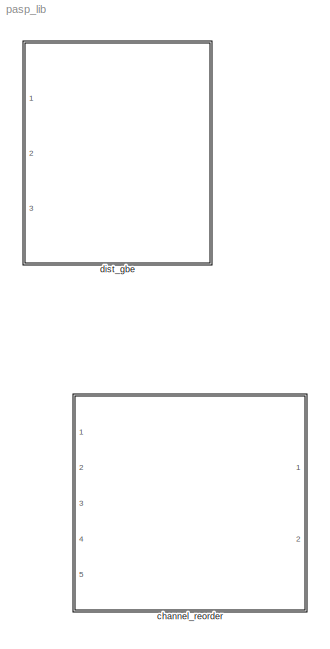
MODEL pasp_lib
KIND library
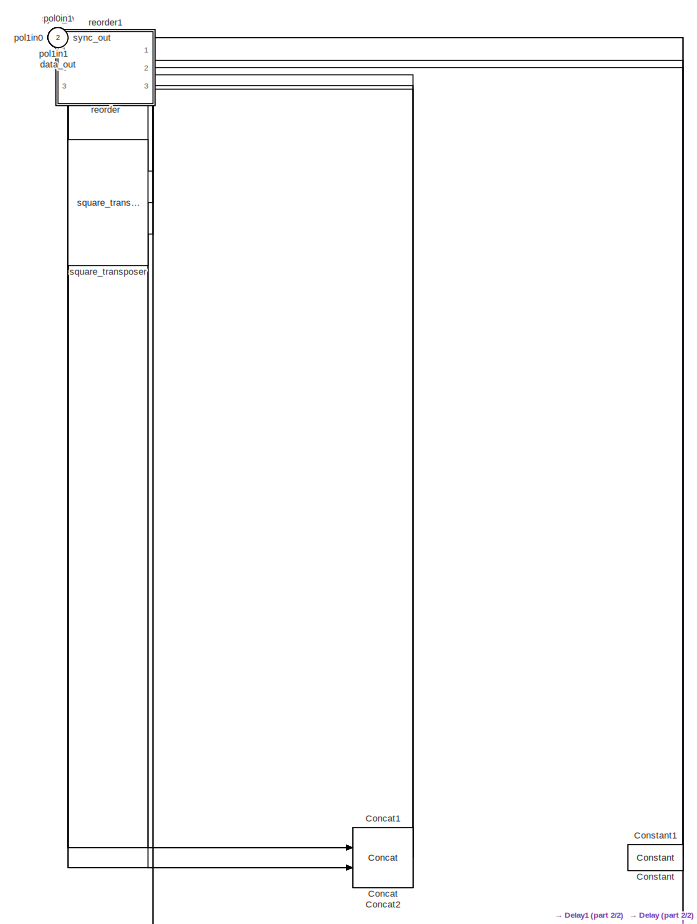
[diagram: channel_reorder - part 1/2, full width, top band]
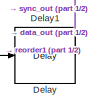
[diagram: channel_reorder - part 2/2, bottom right region]
BLOCK [SubSystem] channel_reorder
  FunctionWithSeparateData = off
  MaskCallbackString = |||
  MaskEnableString = on,on,on,on
  MaskHideContents = off
  MaskIconFrame = on
  MaskIconOpaque = on
  MaskIconRotate = none
  MaskIconUnits = autoscale
  MaskInitialization = cfg.source = str2func('channel_reorder_xblock_init');\ncfg.toplevel = gcb;\ncfg.depend = {'channel_reorder_xblock_init'};\nargs = {numcomputers,numchannels,numsamplesperpacket,qdr_reorder};\nxBlock(cfg, args);
  MaskPortRotate = default
  MaskPromptString = Num IPs (Must be power of 2)|Number of Channels|Samples per packet (Number of samples to put in a packet)|Reorder in QDR
  MaskStyleString = edit,edit,edit,checkbox
  MaskToolTipString = on,on,on,on
  MaskTunableValueString = on,on,on,off
  MaskValueString = 4|16|1024|off
  MaskVariables = numcomputers=@1;numchannels=@2;samplesperpacket=@3;qdr_reorder=&4;
  MaskVisibilityString = on,on,on,on
  MinAlgLoopOccurrences = off
  Opaque = off
  Ports = [5, 2]
  PropExecContextOutsideSubsystem = off
  RTWSystemCode = Auto
  RequestExecContextInheritance = off
  SID = 805
BLOCK [Reference] channel_reorder/Concat  REF=xbsIndex_r4/Concat
  Ports = [2, 1]
  SID = 811
  SourceBlock = xbsIndex_r4/Concat
  SourceType = Xilinx Bus Concatenator Block
  block_type = concat
  block_version = 11.4
  dbl_ovrd = off
  has_advanced_control = 0
  infoedit = Concatenates two or more inputs.  Output will be cast to an unsigned value with the binary point at zero.
  num_inputs = 2
  sg_icon_stat = 60,60,2,1,white,blue,0,97b7e8d2,right,
  sg_mask_display = fprintf('','COMMENT: begin icon graphics');\npatch([0 1 1 0 ],[0 0 1 1 ],[0.77 0.82 0.91]);\npatch([0.233333 0.0666667 0.3 0.0666667 0.233333 0.5 0.566667 0.633333 0.916667 0.7 0.483333 0.333333 0.583333 0.333333 0.483333 0.7 0.916667 0.633333 0.566667 0.5 0.233333 ],[0.1 0.266667 0.5 0.733333 0.9 0.9 0.833333 0.9 0.9 0.683333 0.9 0.75 0.5 0.25 0.1 0.316667 0.1 0.1 0.166667 0.1 0.1 ],[0.98 0.96 0....<+252ch>  <repeated x3 — deduplicated; at blocks: Concat, Concat1, Concat2>
  sggui_pos = -1,-1,-1,-1
BLOCK [Reference] channel_reorder/Concat1  REF=xbsIndex_r4/Concat
  Ports = [2, 1]
  SID = 812
  SourceBlock = xbsIndex_r4/Concat
  SourceType = Xilinx Bus Concatenator Block
  block_type = concat
  block_version = 11.4
  dbl_ovrd = off
  has_advanced_control = 0
  infoedit = Concatenates two or more inputs.  Output will be cast to an unsigned value with the binary point at zero.
  num_inputs = 2
  sg_icon_stat = 60,60,2,1,white,blue,0,97b7e8d2,right,
  sggui_pos = -1,-1,-1,-1
BLOCK [Reference] channel_reorder/Concat2  REF=xbsIndex_r4/Concat
  Ports = [2, 1]
  SID = 813
  SourceBlock = xbsIndex_r4/Concat
  SourceType = Xilinx Bus Concatenator Block
  block_type = concat
  block_version = 11.4
  dbl_ovrd = off
  has_advanced_control = 0
  infoedit = Concatenates two or more inputs.  Output will be cast to an unsigned value with the binary point at zero.
  num_inputs = 2
  sg_icon_stat = 60,60,2,1,white,blue,0,97b7e8d2,right,
  sggui_pos = -1,-1,-1,-1
BLOCK [Reference] channel_reorder/Constant  REF=xbsIndex_r4/Constant
  Ports = [0, 1]
  SID = 814
  SourceBlock = xbsIndex_r4/Constant
  SourceType = Xilinx Constant Block Block
  arith_type = Boolean
  bin_pt = 14
  block_type = constant
  block_version = 11.4
  carry = CIN
  const = 1
  dbl_ovrd = off
  dsp48_infoedit = The use of this block for DSP48 instructions is deprecated.  Please use the Opmode block.
  equ = P=C
  explicit_period = off
  has_advanced_control = 0
  inp1 = P
  inp2 = PCIN>>17
  n_bits = 16
  opr = +
  opselect = C
  period = 1
  sg_icon_stat = 55,26,0,1,white,blue,0,1c72b5be,right,
  sg_mask_display = fprintf('','COMMENT: begin icon graphics');\npatch([0 1 1 0 ],[0 0 1 1 ],[0.77 0.82 0.91]);\npatch([0.363636 0.290909 0.4 0.290909 0.363636 0.490909 0.527273 0.563636 0.690909 0.581818 0.472727 0.4 0.509091 0.4 0.472727 0.581818 0.690909 0.563636 0.527273 0.490909 0.363636 ],[0.115385 0.269231 0.5 0.730769 0.884615 0.884615 0.807692 0.884615 0.884615 0.653846 0.884615 0.730769 0.5 0.269231 0.11538...<+279ch>  <repeated x17 — deduplicated; at blocks: Constant, Constant1, Constant33, Constant36, Constant37, Constant38, Constant39, Constant40, Constant41, Constant42, Constant43, Constant44, Constant45, Constant46, Constant47, Constant48>
  sggui_pos = -1,-1,-1,-1
BLOCK [Reference] channel_reorder/Constant1  REF=xbsIndex_r4/Constant
  Ports = [0, 1]
  SID = 815
  SourceBlock = xbsIndex_r4/Constant
  SourceType = Xilinx Constant Block Block
  arith_type = Boolean
  bin_pt = 14
  block_type = constant
  block_version = 11.4
  carry = CIN
  const = 1
  dbl_ovrd = off
  dsp48_infoedit = The use of this block for DSP48 instructions is deprecated.  Please use the Opmode block.
  equ = P=C
  explicit_period = off
  has_advanced_control = 0
  inp1 = P
  inp2 = PCIN>>17
  n_bits = 16
  opr = +
  opselect = C
  period = 1
  sg_icon_stat = 55,26,0,1,white,blue,0,1c72b5be,right,
  sggui_pos = -1,-1,-1,-1
BLOCK [Reference] channel_reorder/Delay  REF=xbsIndex_r4/Delay
  Ports = [1, 1]
  SID = 816
  SourceBlock = xbsIndex_r4/Delay
  SourceType = Xilinx Delay Block
  block_type = delay
  block_version = 11.4
  dbl_ovrd = off
  en = off
  has_advanced_control = 0
  infoedit = Hardware notes: A delay line is a chain, each link of which is an SRL16 followed by a flip-flop.
  latency = 2
  reg_retiming = on
  sg_icon_stat = 60,56,1,1,white,blue,0,85ce9542,right,
  sg_mask_display = fprintf('','COMMENT: begin icon graphics');\npatch([0 1 1 0 ],[0 0 1 1 ],[0.77 0.82 0.91]);\npatch([0.25 0.1 0.316667 0.1 0.25 0.5 0.566667 0.633333 0.9 0.683333 0.483333 0.333333 0.533333 0.333333 0.483333 0.683333 0.9 0.633333 0.566667 0.5 0.25 ],[0.107143 0.267857 0.5 0.732143 0.892857 0.892857 0.821429 0.892857 0.892857 0.660714 0.875 0.714286 0.5 0.285714 0.125 0.339286 0.107143 0.107143 0.17...<+249ch>  <repeated x16 — deduplicated; at blocks: Delay, Delay1, Delay10, Delay11, Delay12, Delay13, Delay2, Delay3, Delay4, Delay5, Delay6, Delay7, Delay8, Delay9>
  sggui_pos = -1,-1,-1,-1
  xl_area = [0,0,0,0,0,0,0]
  xl_use_area = off
BLOCK [Reference] channel_reorder/Delay1  REF=xbsIndex_r4/Delay
  Ports = [1, 1]
  SID = 817
  SourceBlock = xbsIndex_r4/Delay
  SourceType = Xilinx Delay Block
  block_type = delay
  block_version = 11.4
  dbl_ovrd = off
  en = off
  has_advanced_control = 0
  infoedit = Hardware notes: A delay line is a chain, each link of which is an SRL16 followed by a flip-flop.
  latency = 2
  reg_retiming = on
  sg_icon_stat = 60,56,1,1,white,blue,0,85ce9542,right,
  sggui_pos = -1,-1,-1,-1
  xl_area = [0,0,0,0,0,0,0]
  xl_use_area = off
BLOCK [Outport] channel_reorder/data_out
  IconDisplay = Port number
  Port = 2
  SID = 822
BLOCK [Inport] channel_reorder/pol0in0
  IconDisplay = Port number
  Port = 2
  SID = 807
BLOCK [Inport] channel_reorder/pol0in1
  IconDisplay = Port number
  Port = 3
  SID = 808
BLOCK [Inport] channel_reorder/pol1in0
  IconDisplay = Port number
  Port = 4
  SID = 809
BLOCK [Inport] channel_reorder/pol1in1
  IconDisplay = Port number
  Port = 5
  SID = 810
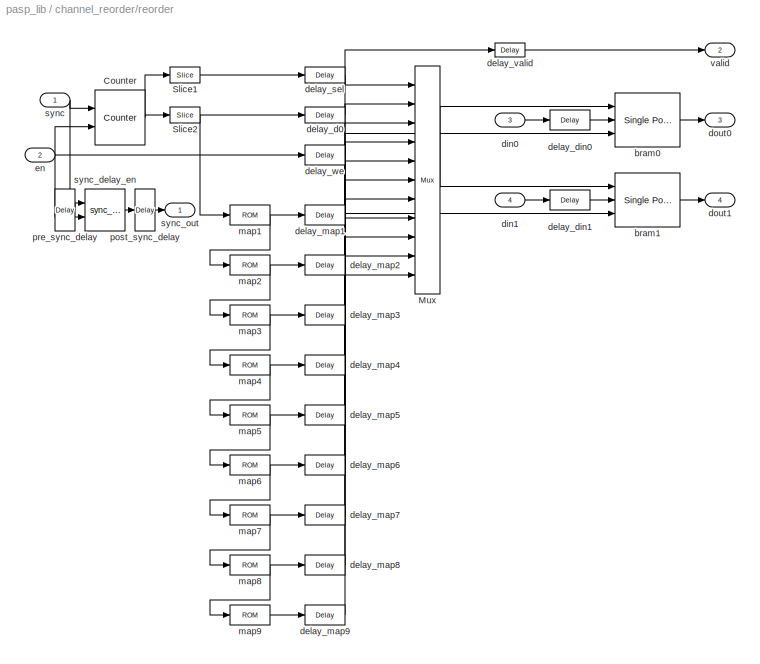
BLOCK [SubSystem] channel_reorder/reorder
  AncestorBlock = casper_library_reorder/reorder
  AttributesFormatString = order=10
  FunctionWithSeparateData = off
  MaskCallbackString = |||||
  MaskEnableString = on,on,on,on,on,on
  MaskHelp = eval('xlWeb(''http://casper.berkeley.edu/wiki/Reorder'')')
  MaskHideContents = off
  MaskIconFrame = on
  MaskIconOpaque = on
  MaskIconRotate = none
  MaskIconUnits = autoscale
  MaskInitialization = reorder_init(gcb, ...\n    'map', map, ...\n    'n_inputs', n_inputs, ...\n    'bram_latency', bram_latency, ...\n    'map_latency', map_latency, ...\n    'double_buffer', double_buffer, ...\n    'bram_map', bram_map);
  MaskPortRotate = default
  MaskPromptString = Output Order:|Number of inputs|BRAM Latency|Map Latency|Double Buffer|Use BlockRAM for Map
  MaskSelfModifiable = on
  MaskStyleString = edit,edit,edit,edit,edit,checkbox
  MaskToolTipString = on,on,on,on,on,on
  MaskTunableValueString = off,off,off,off,off,off
  MaskType = reorder
  MaskValueString = getfield( getfield( get_param( gcb,'UserData' ), 'parameters'),'map')|2|2|3|0|off
  MaskVariables = map=@1;n_inputs=@2;bram_latency=@3;map_latency=@4;double_buffer=@5;bram_map=&6;
  MaskVisibilityString = on,on,on,on,on,on
  MinAlgLoopOccurrences = off
  Opaque = off
  Ports = [4, 4]
  PropExecContextOutsideSubsystem = off
  RTWSystemCode = Auto
  RequestExecContextInheritance = off
  SID = 818
  UserData = DataTag0
  UserDataPersistent = on
BLOCK [Reference] channel_reorder/reorder/Counter  REF=xbsIndex_r4/Counter
  Ports = [2, 1]
  SID = 18
  SourceBlock = xbsIndex_r4/Counter
  SourceType = Xilinx Counter Block
  arith_type = Unsigned
  bin_pt = 0
  block_type = counter
  block_version = 11.4
  cnt_by_val = 1
  cnt_to = 10239
  cnt_type = Count Limited
  dbl_ovrd = off
  en = on
  explicit_period = on
  has_advanced_control = 0
  implementation = Fabric
  infoedit = Hardware notes: Free running counters are the least expensive in hardware.  A count limited counter is implemented by combining a counter with a comparator.
  load_pin = off
  n_bits = 14
  operation = Up
  period = 1
  rst = on
  sg_icon_stat = 50,55,2,1,white,blue,0,d605779c,right,
  sg_mask_display = fprintf('','COMMENT: begin icon graphics');\npatch([0 1 1 0 ],[0 0 1 1 ],[0.77 0.82 0.91]);\npatch([0.22 0.06 0.3 0.06 0.22 0.48 0.56 0.64 0.92 0.7 0.48 0.32 0.56 0.32 0.48 0.7 0.92 0.64 0.56 0.48 0.22 ],[0.145455 0.290909 0.509091 0.727273 0.872727 0.872727 0.8 0.872727 0.872727 0.672727 0.872727 0.727273 0.509091 0.290909 0.145455 0.345455 0.145455 0.145455 0.218182 0.145455 0.145455 ],[0.98 0.9...<+303ch>
  sggui_pos = -1,-1,-1,-1
  start_count = 0
  use_behavioral_HDL = off
  xl_area = [0,0,0,0,0,0,0]
  xl_use_area = off
BLOCK [Reference] channel_reorder/reorder/Mux  REF=xbsIndex_r4/Mux
  Ports = [11, 1]
  SID = 21
  SourceBlock = xbsIndex_r4/Mux
  SourceType = Xilinx Bus Multiplexer Block
  arith_type = Unsigned
  bin_pt = 14
  block_type = mux
  block_version = 11.4
  dbl_ovrd = off
  en = off
  has_advanced_control = 0
  inputs = 10
  latency = 1
  n_bits = 16
  overflow = Wrap
  precision = Full
  quantization = Truncate
  sg_icon_stat = 25,228,11,1,white,blue,3,c1aff825,right,
  sg_mask_display = fprintf('','COMMENT: begin icon graphics');\npatch([0 1 1 0 ],[0 0.142857 0.857143 1 ],[0.77 0.82 0.91]);\npatch([0.24 0.08 0.32 0.08 0.24 0.52 0.6 0.68 0.96 0.72 0.52 0.36 0.56 0.36 0.52 0.72 0.96 0.68 0.6 0.52 0.24 ],[0.45614 0.473684 0.5 0.526316 0.54386 0.54386 0.535088 0.54386 0.54386 0.517544 0.539474 0.52193 0.5 0.47807 0.460526 0.482456 0.45614 0.45614 0.464912 0.45614 0.45614 ],[0.98 0.96...<+723ch>
  sggui_pos = -1,-1,-1,-1
  xl_area = [0,0,0,0,0,0,0]
  xl_use_area = off
BLOCK [Reference] channel_reorder/reorder/Slice1  REF=xbsIndex_r4/Slice
  Ports = [1, 1]
  SID = 19
  SourceBlock = xbsIndex_r4/Slice
  SourceType = Xilinx Bit Slice Extractor Block
  base0 = LSB of Input
  base1 = MSB of Input
  bit0 = 0
  bit1 = 0
  block_type = slice
  block_version = 11.4
  boolean_output = off
  dbl_ovrd = off
  has_advanced_control = 0
  infoedit = Extracts a given range of bits from each input sample and presents it at the output.  The output type is ordinarily unsigned with binary point at zero, but can be Boolean when the slice is one bit wide.<br><br>Hardware notes: In hardware this block costs nothing.  <repeated x4 — deduplicated; at blocks: Slice1, Slice2, Slice>
  mode = Upper Bit Location + Width
  nbits = 4
  sg_icon_stat = 30,16,1,1,white,blue,0,1fd851a7,right,
  sg_mask_display = fprintf('','COMMENT: begin icon graphics');\npatch([0 1 1 0 ],[0 0 1 1 ],[0.77 0.82 0.91]);\npatch([0.366667 0.266667 0.4 0.266667 0.366667 0.5 0.533333 0.566667 0.733333 0.6 0.5 0.433333 0.566667 0.433333 0.5 0.6 0.733333 0.566667 0.533333 0.5 0.366667 ],[0.125 0.3125 0.5625 0.8125 1 1 0.9375 1 1 0.75 0.9375 0.8125 0.5625 0.3125 0.1875 0.375 0.125 0.125 0.1875 0.125 0.125 ],[0.98 0.96 0.92]);\npl...<+203ch>
  sggui_pos = -1,-1,-1,-1
BLOCK [Reference] channel_reorder/reorder/Slice2  REF=xbsIndex_r4/Slice
  Ports = [1, 1]
  SID = 20
  SourceBlock = xbsIndex_r4/Slice
  SourceType = Xilinx Bit Slice Extractor Block
  base0 = LSB of Input
  base1 = MSB of Input
  bit0 = 0
  bit1 = 0
  block_type = slice
  block_version = 11.4
  boolean_output = off
  dbl_ovrd = off
  has_advanced_control = 0
  mode = Lower Bit Location + Width
  nbits = 10
  sg_icon_stat = 30,16,1,1,white,blue,0,1fd851a7,right,
  sg_mask_display = fprintf('','COMMENT: begin icon graphics');\npatch([0 1 1 0 ],[0 0 1 1 ],[0.77 0.82 0.91]);\npatch([0.366667 0.266667 0.4 0.266667 0.366667 0.5 0.533333 0.566667 0.733333 0.6 0.5 0.433333 0.566667 0.433333 0.5 0.6 0.733333 0.566667 0.533333 0.5 0.366667 ],[0.125 0.3125 0.5625 0.8125 1 1 0.9375 1 1 0.75 0.9375 0.8125 0.5625 0.3125 0.1875 0.375 0.125 0.125 0.1875 0.125 0.125 ],[0.98 0.96 0.92]);\npl...<+203ch>
  sggui_pos = -1,-1,-1,-1
BLOCK [Reference] channel_reorder/reorder/bram0  REF=xbsIndex_r4/Single Port RAM
  Ports = [3, 1]
  SID = 24
  SourceBlock = xbsIndex_r4/Single Port RAM
  SourceType = Xilinx Single Port Random Access Memory Block
  block_type = spram
  block_version = 11.4
  dbl_ovrd = off
  depth = 1024
  distributed_mem = Block RAM
  en = off
  has_advanced_control = 0
  initVector = sin(pi*(0:15)/16)
  init_reg = 0
  latency = 2
  optimize = Area
  rst = off
  sg_icon_stat = 65,54,3,1,white,blue,0,f2d5aa4c,right,
  sg_mask_display = fprintf('','COMMENT: begin icon graphics');\npatch([0 1 1 0 ],[0 0 1 1 ],[0.77 0.82 0.91]);\npatch([0.276923 0.138462 0.338462 0.138462 0.276923 0.492308 0.553846 0.615385 0.846154 0.661538 0.476923 0.353846 0.569231 0.353846 0.476923 0.661538 0.846154 0.615385 0.553846 0.492308 0.276923 ],[0.111111 0.277778 0.518519 0.759259 0.925926 0.925926 0.851852 0.925926 0.925926 0.703704 0.925926 0.777778 ...<+443ch>
  sggui_pos = -1,-1,-1,-1
  use_rpm = on
  write_mode = Read Before Write
  xl_area = [0,0,0,0,0,0,0]
  xl_use_area = off
BLOCK [Reference] channel_reorder/reorder/bram1  REF=xbsIndex_r4/Single Port RAM
  Ports = [3, 1]
  SID = 25
  SourceBlock = xbsIndex_r4/Single Port RAM
  SourceType = Xilinx Single Port Random Access Memory Block
  block_type = spram
  block_version = 11.4
  dbl_ovrd = off
  depth = 1024
  distributed_mem = Block RAM
  en = off
  has_advanced_control = 0
  initVector = sin(pi*(0:15)/16)
  init_reg = 0
  latency = 2
  optimize = Area
  rst = off
  sg_icon_stat = 65,54,3,1,white,blue,0,f2d5aa4c,right,
  sg_mask_display = fprintf('','COMMENT: begin icon graphics');\npatch([0 1 1 0 ],[0 0 1 1 ],[0.77 0.82 0.91]);\npatch([0.276923 0.138462 0.338462 0.138462 0.276923 0.492308 0.553846 0.615385 0.846154 0.661538 0.476923 0.353846 0.569231 0.353846 0.476923 0.661538 0.846154 0.615385 0.553846 0.492308 0.276923 ],[0.111111 0.277778 0.518519 0.759259 0.925926 0.925926 0.851852 0.925926 0.925926 0.703704 0.925926 0.777778 ...<+443ch>
  sggui_pos = -1,-1,-1,-1
  use_rpm = on
  write_mode = Read Before Write
  xl_area = [0,0,0,0,0,0,0]
  xl_use_area = off
BLOCK [Reference] channel_reorder/reorder/delay_d0  REF=xbsIndex_r4/Delay
  Ports = [1, 1]
  SID = 23
  SourceBlock = xbsIndex_r4/Delay
  SourceType = Xilinx Delay Block
  block_type = delay
  block_version = 11.4
  dbl_ovrd = off
  en = off
  has_advanced_control = 0
  infoedit = Hardware notes: A delay line is a chain, each link of which is an SRL16 followed by a flip-flop.
  latency = 27
  reg_retiming = off
  sg_icon_stat = 40,16,1,1,white,blue,0,0309fabc,right,
  sg_mask_display = fprintf('','COMMENT: begin icon graphics');\npatch([0 1 1 0 ],[0 0 1 1 ],[0.77 0.82 0.91]);\npatch([0.4 0.325 0.425 0.325 0.4 0.5 0.525 0.55 0.675 0.575 0.5 0.45 0.55 0.45 0.5 0.575 0.675 0.55 0.525 0.5 0.4 ],[0.125 0.3125 0.5625 0.8125 1 1 0.9375 1 1 0.75 0.9375 0.8125 0.5625 0.3125 0.1875 0.375 0.125 0.125 0.1875 0.125 0.125 ],[0.98 0.96 0.92]);\nplot([0 1 1 0 0 ],[0 0 1 1 0 ]);\nfprintf('','COM...<+156ch>
  sggui_pos = -1,-1,-1,-1
  xl_area = [0,0,0,0,0,0,0]
  xl_use_area = off
BLOCK [Reference] channel_reorder/reorder/delay_din0  REF=xbsIndex_r4/Delay
  Ports = [1, 1]
  SID = 5
  SourceBlock = xbsIndex_r4/Delay
  SourceType = Xilinx Delay Block
  block_type = delay
  block_version = 9.1.01
  dbl_ovrd = off
  en = off
  has_advanced_control = 0
  infoedit = Hardware notes: A delay line is a chain, each link of which is an SRL16 followed by a flip-flop.
  latency = 28
  reg_retiming = off
  sg_icon_stat = 40,20,1,1,white,blue,0,34950886,right,
  sg_mask_display = fprintf('','COMMENT: begin icon graphics');\npatch([0 1 1 0 ],[0 0 1 1 ],[0.77 0.82 0.91]);\npatch([0.35 0.275 0.4 0.275 0.35 0.475 0.5 0.525 0.675 0.575 0.475 0.4 0.525 0.4 0.475 0.575 0.675 0.525 0.5 0.475 0.35 ],[0.1 0.25 0.5 0.75 0.9 0.9 0.85 0.9 0.9 0.7 0.9 0.75 0.5 0.25 0.1 0.3 0.1 0.1 0.15 0.1 0.1 ],[0.98 0.96 0.92]);\nplot([0 1 1 0 0 ],[0 0 1 1 0 ]);\nfprintf('','COMMENT: end icon graphics...<+133ch>  <repeated x8 — deduplicated; at blocks: delay_din0, delay_din1, delay_map1, delay_map2, delay_map3, delay_map4, delay_map5, delay_we>
  sggui_pos = -1,-1,-1,-1
  xl_area = [0, 0, 0, 0, 0, 0, 0]
  xl_use_area = off
BLOCK [Reference] channel_reorder/reorder/delay_din1  REF=xbsIndex_r4/Delay
  Ports = [1, 1]
  SID = 6
  SourceBlock = xbsIndex_r4/Delay
  SourceType = Xilinx Delay Block
  block_type = delay
  block_version = 9.1.01
  dbl_ovrd = off
  en = off
  has_advanced_control = 0
  infoedit = Hardware notes: A delay line is a chain, each link of which is an SRL16 followed by a flip-flop.
  latency = 28
  reg_retiming = off
  sg_icon_stat = 40,20,1,1,white,blue,0,34950886,right,
  sggui_pos = -1,-1,-1,-1
  xl_area = [0, 0, 0, 0, 0, 0, 0]
  xl_use_area = off
BLOCK [Reference] channel_reorder/reorder/delay_map1  REF=xbsIndex_r4/Delay
  Ports = [1, 1]
  SID = 27
  SourceBlock = xbsIndex_r4/Delay
  SourceType = Xilinx Delay Block
  block_type = delay
  block_version = 11.4
  dbl_ovrd = off
  en = off
  has_advanced_control = 0
  infoedit = Hardware notes: A delay line is a chain, each link of which is an SRL16 followed by a flip-flop.
  latency = 8*map_latency
  reg_retiming = off
  sg_icon_stat = 40,20,1,1,white,blue,0,18aac261,right,
  sggui_pos = -1,-1,-1,-1
  xl_area = [0,0,0,0,0,0,0]
  xl_use_area = off
BLOCK [Reference] channel_reorder/reorder/delay_map2  REF=xbsIndex_r4/Delay
  Ports = [1, 1]
  SID = 29
  SourceBlock = xbsIndex_r4/Delay
  SourceType = Xilinx Delay Block
  block_type = delay
  block_version = 11.4
  dbl_ovrd = off
  en = off
  has_advanced_control = 0
  infoedit = Hardware notes: A delay line is a chain, each link of which is an SRL16 followed by a flip-flop.
  latency = 7*map_latency
  reg_retiming = off
  sg_icon_stat = 40,20,1,1,white,blue,0,721bfb8f,right,
  sggui_pos = -1,-1,-1,-1
  xl_area = [0,0,0,0,0,0,0]
  xl_use_area = off
BLOCK [Reference] channel_reorder/reorder/delay_map3  REF=xbsIndex_r4/Delay
  Ports = [1, 1]
  SID = 31
  SourceBlock = xbsIndex_r4/Delay
  SourceType = Xilinx Delay Block
  block_type = delay
  block_version = 11.4
  dbl_ovrd = off
  en = off
  has_advanced_control = 0
  infoedit = Hardware notes: A delay line is a chain, each link of which is an SRL16 followed by a flip-flop.
  latency = 6*map_latency
  reg_retiming = off
  sg_icon_stat = 40,20,1,1,white,blue,0,1fb32ecb,right,
  sggui_pos = -1,-1,-1,-1
  xl_area = [0,0,0,0,0,0,0]
  xl_use_area = off
BLOCK [Reference] channel_reorder/reorder/delay_map4  REF=xbsIndex_r4/Delay
  Ports = [1, 1]
  SID = 33
  SourceBlock = xbsIndex_r4/Delay
  SourceType = Xilinx Delay Block
  block_type = delay
  block_version = 11.4
  dbl_ovrd = off
  en = off
  has_advanced_control = 0
  infoedit = Hardware notes: A delay line is a chain, each link of which is an SRL16 followed by a flip-flop.
  latency = 5*map_latency
  reg_retiming = off
  sg_icon_stat = 40,20,1,1,white,blue,0,c21c4c41,right,
  sggui_pos = -1,-1,-1,-1
  xl_area = [0,0,0,0,0,0,0]
  xl_use_area = off
BLOCK [Reference] channel_reorder/reorder/delay_map5  REF=xbsIndex_r4/Delay
  Ports = [1, 1]
  SID = 35
  SourceBlock = xbsIndex_r4/Delay
  SourceType = Xilinx Delay Block
  block_type = delay
  block_version = 11.4
  dbl_ovrd = off
  en = off
  has_advanced_control = 0
  infoedit = Hardware notes: A delay line is a chain, each link of which is an SRL16 followed by a flip-flop.
  latency = 4*map_latency
  reg_retiming = off
  sg_icon_stat = 40,20,1,1,white,blue,0,aa753640,right,
  sggui_pos = -1,-1,-1,-1
  xl_area = [0,0,0,0,0,0,0]
  xl_use_area = off
BLOCK [Reference] channel_reorder/reorder/delay_map6  REF=xbsIndex_r4/Delay
  Ports = [1, 1]
  SID = 37
  SourceBlock = xbsIndex_r4/Delay
  SourceType = Xilinx Delay Block
  block_type = delay
  block_version = 11.4
  dbl_ovrd = off
  en = off
  has_advanced_control = 0
  infoedit = Hardware notes: A delay line is a chain, each link of which is an SRL16 followed by a flip-flop.
  latency = 3*map_latency
  reg_retiming = off
  sg_icon_stat = 40,20,1,1,white,blue,0,c2fef566,right,
  sg_mask_display = fprintf('','COMMENT: begin icon graphics');\npatch([0 1 1 0 ],[0 0 1 1 ],[0.77 0.82 0.91]);\npatch([0.35 0.275 0.4 0.275 0.35 0.475 0.5 0.525 0.675 0.575 0.475 0.4 0.525 0.4 0.475 0.575 0.675 0.525 0.5 0.475 0.35 ],[0.1 0.25 0.5 0.75 0.9 0.9 0.85 0.9 0.9 0.7 0.9 0.75 0.5 0.25 0.1 0.3 0.1 0.1 0.15 0.1 0.1 ],[0.98 0.96 0.92]);\nplot([0 1 1 0 0 ],[0 0 1 1 0 ]);\nfprintf('','COMMENT: end icon graphics...<+132ch>  <repeated x6 — deduplicated; at blocks: delay_map6, delay_map7, delay_map8, delay_map9, delay_din0, delay_we>
  sggui_pos = -1,-1,-1,-1
  xl_area = [0,0,0,0,0,0,0]
  xl_use_area = off
BLOCK [Reference] channel_reorder/reorder/delay_map7  REF=xbsIndex_r4/Delay
  Ports = [1, 1]
  SID = 39
  SourceBlock = xbsIndex_r4/Delay
  SourceType = Xilinx Delay Block
  block_type = delay
  block_version = 11.4
  dbl_ovrd = off
  en = off
  has_advanced_control = 0
  infoedit = Hardware notes: A delay line is a chain, each link of which is an SRL16 followed by a flip-flop.
  latency = 2*map_latency
  reg_retiming = off
  sg_icon_stat = 40,20,1,1,white,blue,0,aa5bc30d,right,
  sggui_pos = -1,-1,-1,-1
  xl_area = [0,0,0,0,0,0,0]
  xl_use_area = off
BLOCK [Reference] channel_reorder/reorder/delay_map8  REF=xbsIndex_r4/Delay
  Ports = [1, 1]
  SID = 41
  SourceBlock = xbsIndex_r4/Delay
  SourceType = Xilinx Delay Block
  block_type = delay
  block_version = 11.4
  dbl_ovrd = off
  en = off
  has_advanced_control = 0
  infoedit = Hardware notes: A delay line is a chain, each link of which is an SRL16 followed by a flip-flop.
  latency = 1*map_latency
  reg_retiming = off
  sg_icon_stat = 40,20,1,1,white,blue,0,83e6bb61,right,
  sggui_pos = -1,-1,-1,-1
  xl_area = [0,0,0,0,0,0,0]
  xl_use_area = off
BLOCK [Reference] channel_reorder/reorder/delay_map9  REF=xbsIndex_r4/Delay
  Ports = [1, 1]
  SID = 43
  SourceBlock = xbsIndex_r4/Delay
  SourceType = Xilinx Delay Block
  block_type = delay
  block_version = 11.4
  dbl_ovrd = off
  en = off
  has_advanced_control = 0
  infoedit = Hardware notes: A delay line is a chain, each link of which is an SRL16 followed by a flip-flop.
  latency = 0*map_latency
  reg_retiming = off
  sg_icon_stat = 40,20,1,1,white,blue,0,24450e6f,right,
  sggui_pos = -1,-1,-1,-1
  xl_area = [0,0,0,0,0,0,0]
  xl_use_area = off
BLOCK [Reference] channel_reorder/reorder/delay_sel  REF=xbsIndex_r4/Delay
  Ports = [1, 1]
  SID = 22
  SourceBlock = xbsIndex_r4/Delay
  SourceType = Xilinx Delay Block
  block_type = delay
  block_version = 11.4
  dbl_ovrd = off
  en = off
  has_advanced_control = 0
  infoedit = Hardware notes: A delay line is a chain, each link of which is an SRL16 followed by a flip-flop.
  latency = 27
  reg_retiming = off
  sg_icon_stat = 40,16,1,1,white,blue,0,0309fabc,right,
  sg_mask_display = fprintf('','COMMENT: begin icon graphics');\npatch([0 1 1 0 ],[0 0 1 1 ],[0.77 0.82 0.91]);\npatch([0.4 0.325 0.425 0.325 0.4 0.5 0.525 0.55 0.675 0.575 0.5 0.45 0.55 0.45 0.5 0.575 0.675 0.55 0.525 0.5 0.4 ],[0.125 0.3125 0.5625 0.8125 1 1 0.9375 1 1 0.75 0.9375 0.8125 0.5625 0.3125 0.1875 0.375 0.125 0.125 0.1875 0.125 0.125 ],[0.98 0.96 0.92]);\nplot([0 1 1 0 0 ],[0 0 1 1 0 ]);\nfprintf('','COM...<+156ch>
  sggui_pos = -1,-1,-1,-1
  xl_area = [0,0,0,0,0,0,0]
  xl_use_area = off
BLOCK [Reference] channel_reorder/reorder/delay_valid  REF=xbsIndex_r4/Delay
  Ports = [1, 1]
  SID = 9
  SourceBlock = xbsIndex_r4/Delay
  SourceType = Xilinx Delay Block
  block_type = delay
  block_version = 9.1.01
  dbl_ovrd = off
  en = off
  has_advanced_control = 0
  infoedit = Hardware notes: A delay line is a chain, each link of which is an SRL16 followed by a flip-flop.
  latency = 3
  reg_retiming = off
  sg_icon_stat = 30,14,1,1,white,blue,0,83e6bb61,right,
  sg_mask_display = fprintf('','COMMENT: begin icon graphics');\npatch([0 1 1 0 ],[0 0 1 1 ],[0.77 0.82 0.91]);\npatch([0.366667 0.3 0.4 0.3 0.366667 0.5 0.533333 0.566667 0.7 0.6 0.5 0.433333 0.533333 0.433333 0.5 0.6 0.7 0.566667 0.533333 0.5 0.366667 ],[0.142857 0.285714 0.5 0.714286 0.857143 0.857143 0.785714 0.857143 0.857143 0.642857 0.857143 0.714286 0.5 0.285714 0.142857 0.357143 0.142857 0.142857 0.214286 0....<+242ch>
  sggui_pos = -1,-1,-1,-1
  xl_area = [0, 0, 0, 0, 0, 0, 0]
  xl_use_area = off
BLOCK [Reference] channel_reorder/reorder/delay_we  REF=xbsIndex_r4/Delay
  Ports = [1, 1]
  SID = 10
  SourceBlock = xbsIndex_r4/Delay
  SourceType = Xilinx Delay Block
  block_type = delay
  block_version = 9.1.01
  dbl_ovrd = off
  en = off
  has_advanced_control = 0
  infoedit = Hardware notes: A delay line is a chain, each link of which is an SRL16 followed by a flip-flop.
  latency = 27
  reg_retiming = off
  sg_icon_stat = 40,20,1,1,white,blue,0,0309fabc,right,
  sggui_pos = -1,-1,-1,-1
  xl_area = [0, 0, 0, 0, 0, 0, 0]
  xl_use_area = off
BLOCK [Inport] channel_reorder/reorder/din0
  IconDisplay = Port number
  OutDataType = sfix(16)
  OutScaling = 2^0
  Port = 3
  SID = 3
BLOCK [Inport] channel_reorder/reorder/din1
  IconDisplay = Port number
  OutDataType = sfix(16)
  OutScaling = 2^0
  Port = 4
  SID = 4
BLOCK [Outport] channel_reorder/reorder/dout0
  IconDisplay = Port number
  OutDataType = sfix(16)
  OutScaling = 2^0
  Port = 3
  SID = 16
BLOCK [Outport] channel_reorder/reorder/dout1
  IconDisplay = Port number
  OutDataType = sfix(16)
  OutScaling = 2^0
  Port = 4
  SID = 17
BLOCK [Inport] channel_reorder/reorder/en
  IconDisplay = Port number
  OutDataType = sfix(16)
  OutScaling = 2^0
  Port = 2
  SID = 2
BLOCK [Reference] channel_reorder/reorder/map1  REF=xbsIndex_r4/ROM
  Ports = [1, 1]
  SID = 26
  SourceBlock = xbsIndex_r4/ROM
  SourceType = Xilinx Single Port Read-Only Memory Block
  arith_type = Unsigned
  bin_pt = 0
  block_type = sprom
  block_version = 11.4
  dbl_ovrd = off
  depth = 1024
  distributed_mem = Distributed memory
  en = off
  has_advanced_control = 0
  initVector = map
  init_reg = 0
  latency = 3
  n_bits = 10
  optimize = Area
  rst = off
  sg_icon_stat = 40,20,1,1,white,blue,0,af4d5ca7,right,
  sg_mask_display = fprintf('','COMMENT: begin icon graphics');\npatch([0 1 1 0 ],[0 0 1 1 ],[0.77 0.82 0.91]);\npatch([0.35 0.275 0.4 0.275 0.35 0.475 0.5 0.525 0.675 0.575 0.475 0.4 0.525 0.4 0.475 0.575 0.675 0.525 0.5 0.475 0.35 ],[0.1 0.25 0.5 0.75 0.9 0.9 0.85 0.9 0.9 0.7 0.9 0.75 0.5 0.25 0.1 0.3 0.1 0.1 0.15 0.1 0.1 ],[0.98 0.96 0.92]);\nplot([0 1 1 0 0 ],[0 0 1 1 0 ]);\nfprintf('','COMMENT: end icon graphics...<+178ch>  <repeated x9 — deduplicated; at blocks: map1, map2, map3, map4, map5, map6, map7, map8, map9>
  sggui_pos = -1,-1,-1,-1
  use_rpm = on
  xl_area = [0,0,0,0,0,0,0]
  xl_use_area = off
BLOCK [Reference] channel_reorder/reorder/map2  REF=xbsIndex_r4/ROM
  Ports = [1, 1]
  SID = 28
  SourceBlock = xbsIndex_r4/ROM
  SourceType = Xilinx Single Port Read-Only Memory Block
  arith_type = Unsigned
  bin_pt = 0
  block_type = sprom
  block_version = 11.4
  dbl_ovrd = off
  depth = 1024
  distributed_mem = Distributed memory
  en = off
  has_advanced_control = 0
  initVector = map
  init_reg = 0
  latency = 3
  n_bits = 10
  optimize = Area
  rst = off
  sg_icon_stat = 40,20,1,1,white,blue,0,af4d5ca7,right,
  sggui_pos = -1,-1,-1,-1
  use_rpm = on
  xl_area = [0,0,0,0,0,0,0]
  xl_use_area = off
BLOCK [Reference] channel_reorder/reorder/map3  REF=xbsIndex_r4/ROM
  Ports = [1, 1]
  SID = 30
  SourceBlock = xbsIndex_r4/ROM
  SourceType = Xilinx Single Port Read-Only Memory Block
  arith_type = Unsigned
  bin_pt = 0
  block_type = sprom
  block_version = 11.4
  dbl_ovrd = off
  depth = 1024
  distributed_mem = Distributed memory
  en = off
  has_advanced_control = 0
  initVector = map
  init_reg = 0
  latency = 3
  n_bits = 10
  optimize = Area
  rst = off
  sg_icon_stat = 40,20,1,1,white,blue,0,af4d5ca7,right,
  sggui_pos = -1,-1,-1,-1
  use_rpm = on
  xl_area = [0,0,0,0,0,0,0]
  xl_use_area = off
BLOCK [Reference] channel_reorder/reorder/map4  REF=xbsIndex_r4/ROM
  Ports = [1, 1]
  SID = 32
  SourceBlock = xbsIndex_r4/ROM
  SourceType = Xilinx Single Port Read-Only Memory Block
  arith_type = Unsigned
  bin_pt = 0
  block_type = sprom
  block_version = 11.4
  dbl_ovrd = off
  depth = 1024
  distributed_mem = Distributed memory
  en = off
  has_advanced_control = 0
  initVector = map
  init_reg = 0
  latency = 3
  n_bits = 10
  optimize = Area
  rst = off
  sg_icon_stat = 40,20,1,1,white,blue,0,af4d5ca7,right,
  sggui_pos = -1,-1,-1,-1
  use_rpm = on
  xl_area = [0,0,0,0,0,0,0]
  xl_use_area = off
BLOCK [Reference] channel_reorder/reorder/map5  REF=xbsIndex_r4/ROM
  Ports = [1, 1]
  SID = 34
  SourceBlock = xbsIndex_r4/ROM
  SourceType = Xilinx Single Port Read-Only Memory Block
  arith_type = Unsigned
  bin_pt = 0
  block_type = sprom
  block_version = 11.4
  dbl_ovrd = off
  depth = 1024
  distributed_mem = Distributed memory
  en = off
  has_advanced_control = 0
  initVector = map
  init_reg = 0
  latency = 3
  n_bits = 10
  optimize = Area
  rst = off
  sg_icon_stat = 40,20,1,1,white,blue,0,af4d5ca7,right,
  sggui_pos = -1,-1,-1,-1
  use_rpm = on
  xl_area = [0,0,0,0,0,0,0]
  xl_use_area = off
BLOCK [Reference] channel_reorder/reorder/map6  REF=xbsIndex_r4/ROM
  Ports = [1, 1]
  SID = 36
  SourceBlock = xbsIndex_r4/ROM
  SourceType = Xilinx Single Port Read-Only Memory Block
  arith_type = Unsigned
  bin_pt = 0
  block_type = sprom
  block_version = 11.4
  dbl_ovrd = off
  depth = 1024
  distributed_mem = Distributed memory
  en = off
  has_advanced_control = 0
  initVector = map
  init_reg = 0
  latency = 3
  n_bits = 10
  optimize = Area
  rst = off
  sg_icon_stat = 40,20,1,1,white,blue,0,af4d5ca7,right,
  sggui_pos = -1,-1,-1,-1
  use_rpm = on
  xl_area = [0,0,0,0,0,0,0]
  xl_use_area = off
BLOCK [Reference] channel_reorder/reorder/map7  REF=xbsIndex_r4/ROM
  Ports = [1, 1]
  SID = 38
  SourceBlock = xbsIndex_r4/ROM
  SourceType = Xilinx Single Port Read-Only Memory Block
  arith_type = Unsigned
  bin_pt = 0
  block_type = sprom
  block_version = 11.4
  dbl_ovrd = off
  depth = 1024
  distributed_mem = Distributed memory
  en = off
  has_advanced_control = 0
  initVector = map
  init_reg = 0
  latency = 3
  n_bits = 10
  optimize = Area
  rst = off
  sg_icon_stat = 40,20,1,1,white,blue,0,af4d5ca7,right,
  sggui_pos = -1,-1,-1,-1
  use_rpm = on
  xl_area = [0,0,0,0,0,0,0]
  xl_use_area = off
BLOCK [Reference] channel_reorder/reorder/map8  REF=xbsIndex_r4/ROM
  Ports = [1, 1]
  SID = 40
  SourceBlock = xbsIndex_r4/ROM
  SourceType = Xilinx Single Port Read-Only Memory Block
  arith_type = Unsigned
  bin_pt = 0
  block_type = sprom
  block_version = 11.4
  dbl_ovrd = off
  depth = 1024
  distributed_mem = Distributed memory
  en = off
  has_advanced_control = 0
  initVector = map
  init_reg = 0
  latency = 3
  n_bits = 10
  optimize = Area
  rst = off
  sg_icon_stat = 40,20,1,1,white,blue,0,af4d5ca7,right,
  sggui_pos = -1,-1,-1,-1
  use_rpm = on
  xl_area = [0,0,0,0,0,0,0]
  xl_use_area = off
BLOCK [Reference] channel_reorder/reorder/map9  REF=xbsIndex_r4/ROM
  Ports = [1, 1]
  SID = 42
  SourceBlock = xbsIndex_r4/ROM
  SourceType = Xilinx Single Port Read-Only Memory Block
  arith_type = Unsigned
  bin_pt = 0
  block_type = sprom
  block_version = 11.4
  dbl_ovrd = off
  depth = 1024
  distributed_mem = Distributed memory
  en = off
  has_advanced_control = 0
  initVector = map
  init_reg = 0
  latency = 3
  n_bits = 10
  optimize = Area
  rst = off
  sg_icon_stat = 40,20,1,1,white,blue,0,af4d5ca7,right,
  sggui_pos = -1,-1,-1,-1
  use_rpm = on
  xl_area = [0,0,0,0,0,0,0]
  xl_use_area = off
BLOCK [Reference] channel_reorder/reorder/post_sync_delay  REF=xbsIndex_r4/Delay
  Ports = [1, 1]
  SID = 11
  SourceBlock = xbsIndex_r4/Delay
  SourceType = Xilinx Delay Block
  block_type = delay
  block_version = 9.1.01
  dbl_ovrd = off
  en = off
  has_advanced_control = 0
  infoedit = Hardware notes: A delay line is a chain, each link of which is an SRL16 followed by a flip-flop.
  latency = 3
  reg_retiming = off
  sg_icon_stat = 20,42,1,1,white,blue,0,83e6bb61,right,
  sg_mask_display = fprintf('','COMMENT: begin icon graphics');\npatch([0 1 1 0 ],[0 0 1 1 ],[0.77 0.82 0.91]);\npatch([0.2 0.05 0.3 0.05 0.2 0.45 0.5 0.55 0.85 0.65 0.45 0.3 0.55 0.3 0.45 0.65 0.85 0.55 0.5 0.45 0.2 ],[0.309524 0.380952 0.5 0.619048 0.690476 0.690476 0.666667 0.690476 0.690476 0.595238 0.690476 0.619048 0.5 0.380952 0.309524 0.404762 0.309524 0.309524 0.333333 0.309524 0.309524 ],[0.98 0.96 0.92]);\...<+205ch>  <repeated x3 — deduplicated; at blocks: post_sync_delay, pre_sync_delay>
  sggui_pos = -1,-1,-1,-1
  xl_area = [0, 0, 0, 0, 0, 0, 0]
  xl_use_area = off
BLOCK [Reference] channel_reorder/reorder/pre_sync_delay  REF=xbsIndex_r4/Delay
  Ports = [1, 1]
  SID = 12
  SourceBlock = xbsIndex_r4/Delay
  SourceType = Xilinx Delay Block
  block_type = delay
  block_version = 9.1.01
  dbl_ovrd = off
  en = off
  has_advanced_control = 0
  infoedit = Hardware notes: A delay line is a chain, each link of which is an SRL16 followed by a flip-flop.
  latency = 27
  reg_retiming = off
  sg_icon_stat = 20,42,1,1,white,blue,0,0309fabc,right,
  sg_mask_display = fprintf('','COMMENT: begin icon graphics');\npatch([0 1 1 0 ],[0 0 1 1 ],[0.77 0.82 0.91]);\npatch([0.2 0.05 0.3 0.05 0.2 0.45 0.5 0.55 0.85 0.65 0.45 0.3 0.55 0.3 0.45 0.65 0.85 0.55 0.5 0.45 0.2 ],[0.309524 0.380952 0.5 0.619048 0.690476 0.690476 0.666667 0.690476 0.690476 0.595238 0.690476 0.619048 0.5 0.380952 0.309524 0.404762 0.309524 0.309524 0.333333 0.309524 0.309524 ],[0.98 0.96 0.92]);\...<+206ch>
  sggui_pos = -1,-1,-1,-1
  xl_area = [0, 0, 0, 0, 0, 0, 0]
  xl_use_area = off
BLOCK [Inport] channel_reorder/reorder/sync
  IconDisplay = Port number
  OutDataType = sfix(16)
  OutScaling = 2^0
  SID = 1
BLOCK [Reference] channel_reorder/reorder/sync_delay_en  REF=casper_library_delays/sync_delay_en  (lib defined in mdl_259a08a3fac5, mdl_65009615caaa, +5 more)
  DelayLen = 1024
  FunctionWithSeparateData = off
  Ports = [2, 1]
  RTWMemSecDataConstants = Inherit from model
  RTWMemSecDataInternal = Inherit from model
  RTWMemSecDataParameters = Inherit from model
  RTWMemSecFuncExecute = Inherit from model
  RTWMemSecFuncInitTerm = Inherit from model
  SID = 13
  ShowPortLabels = FromPortIcon
  SourceBlock = casper_library_delays/sync_delay_en
  SourceType = sync_delay_en
  SystemSampleTime = -1
BLOCK [Outport] channel_reorder/reorder/sync_out
  IconDisplay = Port number
  OutDataType = sfix(16)
  OutScaling = 2^0
  SID = 14
BLOCK [Outport] channel_reorder/reorder/valid
  IconDisplay = Port number
  OutDataType = sfix(16)
  OutScaling = 2^0
  Port = 2
  SID = 15
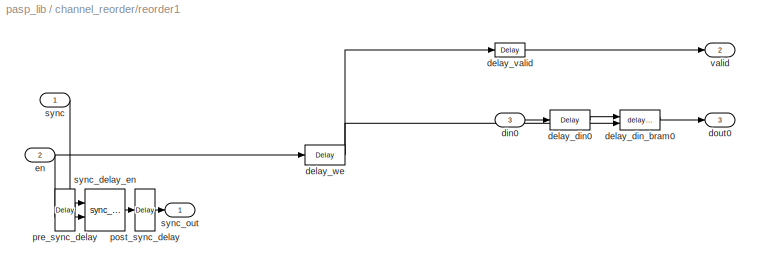
BLOCK [SubSystem] channel_reorder/reorder1
  AncestorBlock = casper_library_reorder/reorder
  AttributesFormatString = order=1
  FunctionWithSeparateData = off
  MaskCallbackString = |||||
  MaskEnableString = on,on,on,on,on,on
  MaskHelp = eval('xlWeb(''http://casper.berkeley.edu/wiki/Reorder'')')
  MaskHideContents = off
  MaskIconFrame = on
  MaskIconOpaque = on
  MaskIconRotate = none
  MaskIconUnits = autoscale
  MaskInitialization = reorder_init(gcb, ...\n    'map', map, ...\n    'n_inputs', n_inputs, ...\n    'bram_latency', bram_latency, ...\n    'map_latency', map_latency, ...\n    'double_buffer', double_buffer, ...\n    'bram_map', bram_map);
  MaskPortRotate = default
  MaskPromptString = Output Order:|Number of inputs|BRAM Latency|Map Latency|Double Buffer|Use BlockRAM for Map
  MaskSelfModifiable = on
  MaskStyleString = edit,edit,edit,edit,edit,checkbox
  MaskToolTipString = on,on,on,on,on,on
  MaskTunableValueString = off,off,off,off,off,off
  MaskType = reorder
  MaskValueString = |1|2|3|0|off
  MaskVariables = map=@1;n_inputs=@2;bram_latency=@3;map_latency=@4;double_buffer=@5;bram_map=&6;
  MaskVisibilityString = on,on,on,on,on,on
  MinAlgLoopOccurrences = off
  Opaque = off
  Ports = [3, 3]
  PropExecContextOutsideSubsystem = off
  RTWSystemCode = Auto
  RequestExecContextInheritance = off
  SID = 819
  UserData = DataTag1
  UserDataPersistent = on
BLOCK [Reference] channel_reorder/reorder1/delay_din0  REF=xbsIndex_r4/Delay
  Ports = [1, 1]
  SID = 5
  SourceBlock = xbsIndex_r4/Delay
  SourceType = Xilinx Delay Block
  block_type = delay
  block_version = 9.1.01
  dbl_ovrd = off
  en = off
  has_advanced_control = 0
  infoedit = Hardware notes: A delay line is a chain, each link of which is an SRL16 followed by a flip-flop.
  latency = 1
  reg_retiming = off
  sg_icon_stat = 40,20,1,1,white,blue,0,07b98262,right,
  sggui_pos = -1,-1,-1,-1
  xl_area = [0, 0, 0, 0, 0, 0, 0]
  xl_use_area = off
BLOCK [Reference] channel_reorder/reorder1/delay_din_bram0  REF=casper_library_delays/delay_bram_en_plus  (lib defined in mdl_259a08a3fac5, mdl_65009615caaa, +5 more)
  DelayLen = length(map)
  FunctionWithSeparateData = off
  Ports = [2, 2]
  RTWMemSecDataConstants = Inherit from model
  RTWMemSecDataInternal = Inherit from model
  RTWMemSecDataParameters = Inherit from model
  RTWMemSecFuncExecute = Inherit from model
  RTWMemSecFuncInitTerm = Inherit from model
  SID = 7
  ShowPortLabels = FromPortIcon
  SourceBlock = casper_library_delays/delay_bram_en_plus
  SourceType = delay_bram_en_plus
  SystemSampleTime = -1
  bram_latency = bram_latency
BLOCK [Reference] channel_reorder/reorder1/delay_valid  REF=xbsIndex_r4/Delay
  Ports = [1, 1]
  SID = 9
  SourceBlock = xbsIndex_r4/Delay
  SourceType = Xilinx Delay Block
  block_type = delay
  block_version = 9.1.01
  dbl_ovrd = off
  en = off
  has_advanced_control = 0
  infoedit = Hardware notes: A delay line is a chain, each link of which is an SRL16 followed by a flip-flop.
  latency = 3
  reg_retiming = off
  sg_icon_stat = 30,14,1,1,white,blue,0,83e6bb61,right,
  sg_mask_display = fprintf('','COMMENT: begin icon graphics');\npatch([0 1 1 0 ],[0 0 1 1 ],[0.77 0.82 0.91]);\npatch([0.366667 0.3 0.4 0.3 0.366667 0.5 0.533333 0.566667 0.7 0.6 0.5 0.433333 0.533333 0.433333 0.5 0.6 0.7 0.566667 0.533333 0.5 0.366667 ],[0.142857 0.285714 0.5 0.714286 0.857143 0.857143 0.785714 0.857143 0.857143 0.642857 0.857143 0.714286 0.5 0.285714 0.142857 0.357143 0.142857 0.142857 0.214286 0....<+242ch>
  sggui_pos = -1,-1,-1,-1
  xl_area = [0, 0, 0, 0, 0, 0, 0]
  xl_use_area = off
BLOCK [Reference] channel_reorder/reorder1/delay_we  REF=xbsIndex_r4/Delay
  Ports = [1, 1]
  SID = 10
  SourceBlock = xbsIndex_r4/Delay
  SourceType = Xilinx Delay Block
  block_type = delay
  block_version = 9.1.01
  dbl_ovrd = off
  en = off
  has_advanced_control = 0
  infoedit = Hardware notes: A delay line is a chain, each link of which is an SRL16 followed by a flip-flop.
  latency = 0
  reg_retiming = off
  sg_icon_stat = 40,20,1,1,white,blue,0,24450e6f,right,
  sggui_pos = -1,-1,-1,-1
  xl_area = [0, 0, 0, 0, 0, 0, 0]
  xl_use_area = off
BLOCK [Inport] channel_reorder/reorder1/din0
  IconDisplay = Port number
  OutDataType = sfix(16)
  OutScaling = 2^0
  Port = 3
  SID = 3
BLOCK [Outport] channel_reorder/reorder1/dout0
  IconDisplay = Port number
  OutDataType = sfix(16)
  OutScaling = 2^0
  Port = 3
  SID = 16
BLOCK [Inport] channel_reorder/reorder1/en
  IconDisplay = Port number
  OutDataType = sfix(16)
  OutScaling = 2^0
  Port = 2
  SID = 2
BLOCK [Reference] channel_reorder/reorder1/post_sync_delay  REF=xbsIndex_r4/Delay
  Ports = [1, 1]
  SID = 11
  SourceBlock = xbsIndex_r4/Delay
  SourceType = Xilinx Delay Block
  block_type = delay
  block_version = 9.1.01
  dbl_ovrd = off
  en = off
  has_advanced_control = 0
  infoedit = Hardware notes: A delay line is a chain, each link of which is an SRL16 followed by a flip-flop.
  latency = 3
  reg_retiming = off
  sg_icon_stat = 20,42,1,1,white,blue,0,83e6bb61,right,
  sggui_pos = -1,-1,-1,-1
  xl_area = [0, 0, 0, 0, 0, 0, 0]
  xl_use_area = off
BLOCK [Reference] channel_reorder/reorder1/pre_sync_delay  REF=xbsIndex_r4/Delay
  Ports = [1, 1]
  SID = 12
  SourceBlock = xbsIndex_r4/Delay
  SourceType = Xilinx Delay Block
  block_type = delay
  block_version = 9.1.01
  dbl_ovrd = off
  en = off
  has_advanced_control = 0
  infoedit = Hardware notes: A delay line is a chain, each link of which is an SRL16 followed by a flip-flop.
  latency = 0
  reg_retiming = off
  sg_icon_stat = 20,42,1,1,white,blue,0,24450e6f,right,
  sggui_pos = -1,-1,-1,-1
  xl_area = [0, 0, 0, 0, 0, 0, 0]
  xl_use_area = off
BLOCK [Inport] channel_reorder/reorder1/sync
  IconDisplay = Port number
  OutDataType = sfix(16)
  OutScaling = 2^0
  SID = 1
BLOCK [Reference] channel_reorder/reorder1/sync_delay_en  REF=casper_library_delays/sync_delay_en  (lib defined in mdl_259a08a3fac5, mdl_65009615caaa, +5 more)
  DelayLen = 0
  FunctionWithSeparateData = off
  Ports = [2, 1]
  RTWMemSecDataConstants = Inherit from model
  RTWMemSecDataInternal = Inherit from model
  RTWMemSecDataParameters = Inherit from model
  RTWMemSecFuncExecute = Inherit from model
  RTWMemSecFuncInitTerm = Inherit from model
  SID = 13
  ShowPortLabels = FromPortIcon
  SourceBlock = casper_library_delays/sync_delay_en
  SourceType = sync_delay_en
  SystemSampleTime = -1
BLOCK [Outport] channel_reorder/reorder1/sync_out
  IconDisplay = Port number
  OutDataType = sfix(16)
  OutScaling = 2^0
  SID = 14
BLOCK [Outport] channel_reorder/reorder1/valid
  IconDisplay = Port number
  OutDataType = sfix(16)
  OutScaling = 2^0
  Port = 2
  SID = 15
BLOCK [Reference] channel_reorder/square_transposer  REF=casper_library_reorder/square_transposer  (lib defined in mdl_5689982e332f, mdl_a083f2517144, +1 more)
  AttributesFormatString = n_inputs=1
  FunctionWithSeparateData = off
  Ports = [3, 3]
  RTWMemSecDataConstants = Inherit from model
  RTWMemSecDataInternal = Inherit from model
  RTWMemSecDataParameters = Inherit from model
  RTWMemSecFuncExecute = Inherit from model
  RTWMemSecFuncInitTerm = Inherit from model
  SID = 820
  ShowPortLabels = FromPortIcon
  SourceBlock = casper_library_reorder/square_transposer
  SourceType = square_transposer
  SystemSampleTime = -1
  UserData = DataTag2
  UserDataPersistent = on
  n_inputs = 1
BLOCK [Inport] channel_reorder/sync_in
  IconDisplay = Port number
  SID = 806
BLOCK [Outport] channel_reorder/sync_out
  IconDisplay = Port number
  SID = 821
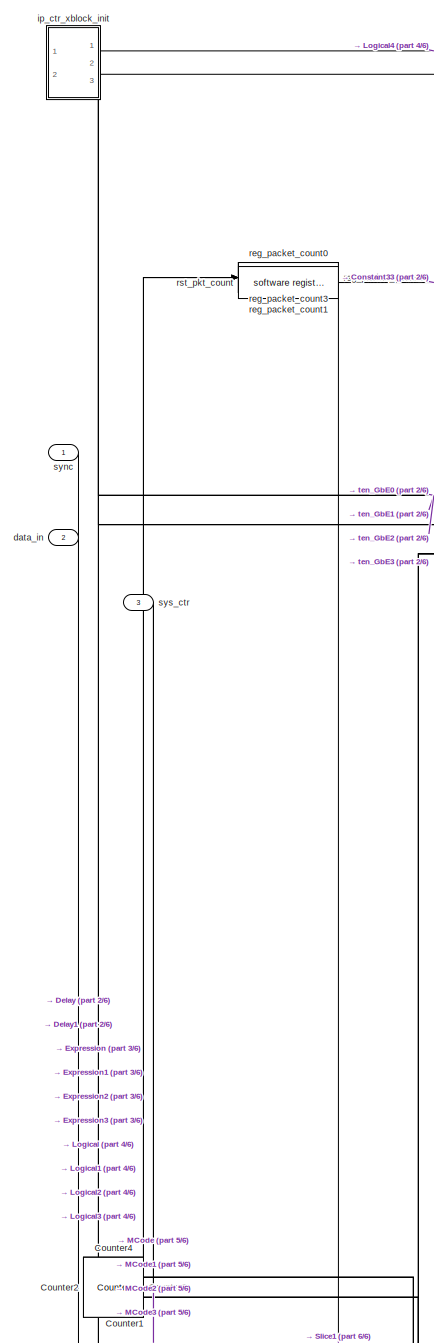
[diagram: dist_gbe - part 1/6, top left region]
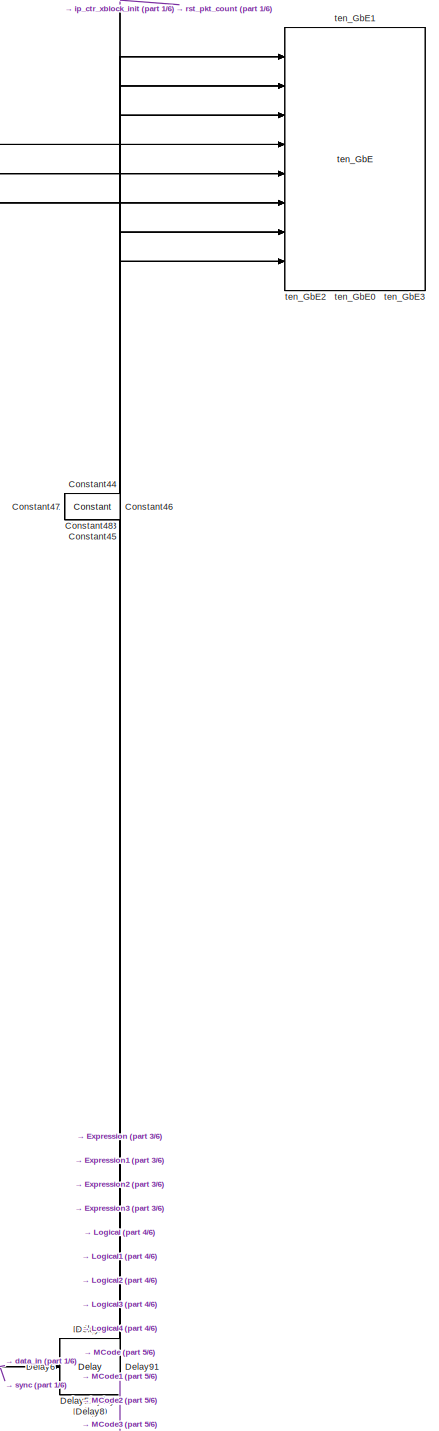
[diagram: dist_gbe - part 2/6, top right region]
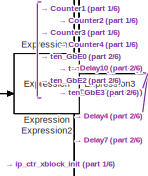
[diagram: dist_gbe - part 3/6, central region]
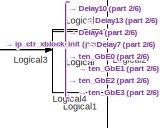
[diagram: dist_gbe - part 4/6, central region]
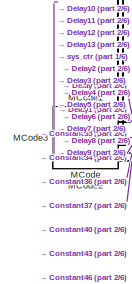
[diagram: dist_gbe - part 5/6, bottom left region]
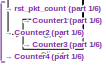
[diagram: dist_gbe - part 6/6, bottom center region]
BLOCK [SubSystem] dist_gbe
  FunctionWithSeparateData = off
  MaskCallbackString = ||
  MaskEnableString = on,on,on
  MaskHideContents = off
  MaskIconFrame = on
  MaskIconOpaque = on
  MaskIconRotate = none
  MaskIconUnits = autoscale
  MaskInitialization = cfg.source = str2func('dist_gbe_xblock_init');\ncfg.toplevel = gcb;\ncfg.depend = {'dist_gbe_xblock_init'};\nargs = {numcomputers,samplesperpacket,numtengbe};\nxBlock(cfg, args);
  MaskPortRotate = default
  MaskPromptString = Num IPs (Must be power of 2)|Samples per packet (Number of samples to put in a packet)|Number of tengbe ports
  MaskSelfModifiable = on
  MaskStyleString = edit,edit,edit
  MaskToolTipString = on,on,on
  MaskTunableValueString = on,on,on
  MaskType = dist_gbe
  MaskValueString = 16|1024|4
  MaskVariables = numcomputers=@1;samplesperpacket=@2;numtengbe=@3;
  MaskVisibilityString = on,on,on
  MinAlgLoopOccurrences = off
  Opaque = off
  Ports = [3]
  PropExecContextOutsideSubsystem = off
  RTWSystemCode = Auto
  RequestExecContextInheritance = off
  SID = 1
  UserData = DataTag3
  UserDataPersistent = on
BLOCK [Reference] dist_gbe/Constant33  REF=xbsIndex_r4/Constant
  Ports = [0, 1]
  SID = 992
  SourceBlock = xbsIndex_r4/Constant
  SourceType = Xilinx Constant Block Block
  arith_type = Signed (2's comp)
  bin_pt = 14
  block_type = constant
  block_version = 11.4
  carry = CIN
  const = 0
  dbl_ovrd = off
  dsp48_infoedit = The use of this block for DSP48 instructions is deprecated.  Please use the Opmode block.
  equ = P=C
  explicit_period = on
  has_advanced_control = 0
  inp1 = P
  inp2 = PCIN>>17
  n_bits = 16
  opr = +
  opselect = C
  period = 1
  sg_icon_stat = 55,26,0,1,white,blue,0,bf4ddd8b,right,
  sggui_pos = -1,-1,-1,-1
BLOCK [Reference] dist_gbe/Constant34  REF=xbsIndex_r4/Constant
  Ports = [0, 1]
  SID = 995
  SourceBlock = xbsIndex_r4/Constant
  SourceType = Xilinx Constant Block Block
  arith_type = Signed (2's comp)
  bin_pt = 0
  block_type = constant
  block_version = 11.4
  carry = CIN
  const = 16
  dbl_ovrd = off
  dsp48_infoedit = The use of this block for DSP48 instructions is deprecated.  Please use the Opmode block.
  equ = P=C
  explicit_period = on
  has_advanced_control = 0
  inp1 = P
  inp2 = PCIN>>17
  n_bits = 32
  opr = +
  opselect = C
  period = 1
  sg_icon_stat = 55,26,0,1,white,blue,0,eafdfd08,right,
  sg_mask_display = fprintf('','COMMENT: begin icon graphics');\npatch([0 1 1 0 ],[0 0 1 1 ],[0.77 0.82 0.91]);\npatch([0.363636 0.290909 0.4 0.290909 0.363636 0.490909 0.527273 0.563636 0.690909 0.581818 0.472727 0.4 0.509091 0.4 0.472727 0.581818 0.690909 0.563636 0.527273 0.490909 0.363636 ],[0.115385 0.269231 0.5 0.730769 0.884615 0.884615 0.807692 0.884615 0.884615 0.653846 0.884615 0.730769 0.5 0.269231 0.11538...<+280ch>
  sggui_pos = -1,-1,-1,-1
BLOCK [Reference] dist_gbe/Constant35  REF=xbsIndex_r4/Constant
  Ports = [0, 1]
  SID = 996
  SourceBlock = xbsIndex_r4/Constant
  SourceType = Xilinx Constant Block Block
  arith_type = Signed (2's comp)
  bin_pt = 0
  block_type = constant
  block_version = 11.4
  carry = CIN
  const = 1024
  dbl_ovrd = off
  dsp48_infoedit = The use of this block for DSP48 instructions is deprecated.  Please use the Opmode block.
  equ = P=C
  explicit_period = on
  has_advanced_control = 0
  inp1 = P
  inp2 = PCIN>>17
  n_bits = 32
  opr = +
  opselect = C
  period = 1
  sg_icon_stat = 55,26,0,1,white,blue,0,7448ee09,right,
  sg_mask_display = fprintf('','COMMENT: begin icon graphics');\npatch([0 1 1 0 ],[0 0 1 1 ],[0.77 0.82 0.91]);\npatch([0.363636 0.290909 0.4 0.290909 0.363636 0.490909 0.527273 0.563636 0.690909 0.581818 0.472727 0.4 0.509091 0.4 0.472727 0.581818 0.690909 0.563636 0.527273 0.490909 0.363636 ],[0.115385 0.269231 0.5 0.730769 0.884615 0.884615 0.807692 0.884615 0.884615 0.653846 0.884615 0.730769 0.5 0.269231 0.11538...<+282ch>  <repeated x33 — deduplicated; at blocks: Constant35, Constant1, Constant10, Constant11, Constant12, Constant13, Constant14, Constant15, Constant16, Constant17, Constant18, Constant19, Constant2, Constant20, Constant21, Constant22, +17 more>
  sggui_pos = -1,-1,-1,-1
BLOCK [Reference] dist_gbe/Constant36  REF=xbsIndex_r4/Constant
  Ports = [0, 1]
  SID = 997
  SourceBlock = xbsIndex_r4/Constant
  SourceType = Xilinx Constant Block Block
  arith_type = Signed (2's comp)
  bin_pt = 0
  block_type = constant
  block_version = 11.4
  carry = CIN
  const = 4
  dbl_ovrd = off
  dsp48_infoedit = The use of this block for DSP48 instructions is deprecated.  Please use the Opmode block.
  equ = P=C
  explicit_period = on
  has_advanced_control = 0
  inp1 = P
  inp2 = PCIN>>17
  n_bits = 32
  opr = +
  opselect = C
  period = 1
  sg_icon_stat = 55,26,0,1,white,blue,0,85f36853,right,
  sggui_pos = -1,-1,-1,-1
BLOCK [Reference] dist_gbe/Constant37  REF=xbsIndex_r4/Constant
  Ports = [0, 1]
  SID = 998
  SourceBlock = xbsIndex_r4/Constant
  SourceType = Xilinx Constant Block Block
  arith_type = Signed (2's comp)
  bin_pt = 0
  block_type = constant
  block_version = 11.4
  carry = CIN
  const = 0
  dbl_ovrd = off
  dsp48_infoedit = The use of this block for DSP48 instructions is deprecated.  Please use the Opmode block.
  equ = P=C
  explicit_period = on
  has_advanced_control = 0
  inp1 = P
  inp2 = PCIN>>17
  n_bits = 32
  opr = +
  opselect = C
  period = 1
  sg_icon_stat = 55,26,0,1,white,blue,0,bf4ddd8b,right,
  sggui_pos = -1,-1,-1,-1
BLOCK [Reference] dist_gbe/Constant38  REF=xbsIndex_r4/Constant
  Ports = [0, 1]
  SID = 1003
  SourceBlock = xbsIndex_r4/Constant
  SourceType = Xilinx Constant Block Block
  arith_type = Boolean
  bin_pt = 14
  block_type = constant
  block_version = 11.4
  carry = CIN
  const = 0
  dbl_ovrd = off
  dsp48_infoedit = The use of this block for DSP48 instructions is deprecated.  Please use the Opmode block.
  equ = P=C
  explicit_period = on
  has_advanced_control = 0
  inp1 = P
  inp2 = PCIN>>17
  n_bits = 16
  opr = +
  opselect = C
  period = 1
  sg_icon_stat = 55,26,0,1,white,blue,0,bf4ddd8b,right,
  sggui_pos = -1,-1,-1,-1
BLOCK [Reference] dist_gbe/Constant39  REF=xbsIndex_r4/Constant
  Ports = [0, 1]
  SID = 1006
  SourceBlock = xbsIndex_r4/Constant
  SourceType = Xilinx Constant Block Block
  arith_type = Boolean
  bin_pt = 14
  block_type = constant
  block_version = 11.4
  carry = CIN
  const = 0
  dbl_ovrd = off
  dsp48_infoedit = The use of this block for DSP48 instructions is deprecated.  Please use the Opmode block.
  equ = P=C
  explicit_period = on
  has_advanced_control = 0
  inp1 = P
  inp2 = PCIN>>17
  n_bits = 16
  opr = +
  opselect = C
  period = 1
  sg_icon_stat = 55,26,0,1,white,blue,0,bf4ddd8b,right,
  sggui_pos = -1,-1,-1,-1
BLOCK [Reference] dist_gbe/Constant40  REF=xbsIndex_r4/Constant
  Ports = [0, 1]
  SID = 1010
  SourceBlock = xbsIndex_r4/Constant
  SourceType = Xilinx Constant Block Block
  arith_type = Signed (2's comp)
  bin_pt = 0
  block_type = constant
  block_version = 11.4
  carry = CIN
  const = 1
  dbl_ovrd = off
  dsp48_infoedit = The use of this block for DSP48 instructions is deprecated.  Please use the Opmode block.
  equ = P=C
  explicit_period = on
  has_advanced_control = 0
  inp1 = P
  inp2 = PCIN>>17
  n_bits = 32
  opr = +
  opselect = C
  period = 1
  sg_icon_stat = 55,26,0,1,white,blue,0,1c72b5be,right,
  sggui_pos = -1,-1,-1,-1
BLOCK [Reference] dist_gbe/Constant41  REF=xbsIndex_r4/Constant
  Ports = [0, 1]
  SID = 1015
  SourceBlock = xbsIndex_r4/Constant
  SourceType = Xilinx Constant Block Block
  arith_type = Boolean
  bin_pt = 14
  block_type = constant
  block_version = 11.4
  carry = CIN
  const = 0
  dbl_ovrd = off
  dsp48_infoedit = The use of this block for DSP48 instructions is deprecated.  Please use the Opmode block.
  equ = P=C
  explicit_period = on
  has_advanced_control = 0
  inp1 = P
  inp2 = PCIN>>17
  n_bits = 16
  opr = +
  opselect = C
  period = 1
  sg_icon_stat = 55,26,0,1,white,blue,0,bf4ddd8b,right,
  sggui_pos = -1,-1,-1,-1
BLOCK [Reference] dist_gbe/Constant42  REF=xbsIndex_r4/Constant
  Ports = [0, 1]
  SID = 1018
  SourceBlock = xbsIndex_r4/Constant
  SourceType = Xilinx Constant Block Block
  arith_type = Boolean
  bin_pt = 14
  block_type = constant
  block_version = 11.4
  carry = CIN
  const = 0
  dbl_ovrd = off
  dsp48_infoedit = The use of this block for DSP48 instructions is deprecated.  Please use the Opmode block.
  equ = P=C
  explicit_period = on
  has_advanced_control = 0
  inp1 = P
  inp2 = PCIN>>17
  n_bits = 16
  opr = +
  opselect = C
  period = 1
  sg_icon_stat = 55,26,0,1,white,blue,0,bf4ddd8b,right,
  sggui_pos = -1,-1,-1,-1
BLOCK [Reference] dist_gbe/Constant43  REF=xbsIndex_r4/Constant
  Ports = [0, 1]
  SID = 1022
  SourceBlock = xbsIndex_r4/Constant
  SourceType = Xilinx Constant Block Block
  arith_type = Signed (2's comp)
  bin_pt = 0
  block_type = constant
  block_version = 11.4
  carry = CIN
  const = 2
  dbl_ovrd = off
  dsp48_infoedit = The use of this block for DSP48 instructions is deprecated.  Please use the Opmode block.
  equ = P=C
  explicit_period = on
  has_advanced_control = 0
  inp1 = P
  inp2 = PCIN>>17
  n_bits = 32
  opr = +
  opselect = C
  period = 1
  sg_icon_stat = 55,26,0,1,white,blue,0,fca86624,right,
  sggui_pos = -1,-1,-1,-1
BLOCK [Reference] dist_gbe/Constant44  REF=xbsIndex_r4/Constant
  Ports = [0, 1]
  SID = 1027
  SourceBlock = xbsIndex_r4/Constant
  SourceType = Xilinx Constant Block Block
  arith_type = Boolean
  bin_pt = 14
  block_type = constant
  block_version = 11.4
  carry = CIN
  const = 0
  dbl_ovrd = off
  dsp48_infoedit = The use of this block for DSP48 instructions is deprecated.  Please use the Opmode block.
  equ = P=C
  explicit_period = on
  has_advanced_control = 0
  inp1 = P
  inp2 = PCIN>>17
  n_bits = 16
  opr = +
  opselect = C
  period = 1
  sg_icon_stat = 55,26,0,1,white,blue,0,bf4ddd8b,right,
  sggui_pos = -1,-1,-1,-1
BLOCK [Reference] dist_gbe/Constant45  REF=xbsIndex_r4/Constant
  Ports = [0, 1]
  SID = 1030
  SourceBlock = xbsIndex_r4/Constant
  SourceType = Xilinx Constant Block Block
  arith_type = Boolean
  bin_pt = 14
  block_type = constant
  block_version = 11.4
  carry = CIN
  const = 0
  dbl_ovrd = off
  dsp48_infoedit = The use of this block for DSP48 instructions is deprecated.  Please use the Opmode block.
  equ = P=C
  explicit_period = on
  has_advanced_control = 0
  inp1 = P
  inp2 = PCIN>>17
  n_bits = 16
  opr = +
  opselect = C
  period = 1
  sg_icon_stat = 55,26,0,1,white,blue,0,bf4ddd8b,right,
  sggui_pos = -1,-1,-1,-1
BLOCK [Reference] dist_gbe/Constant46  REF=xbsIndex_r4/Constant
  Ports = [0, 1]
  SID = 1034
  SourceBlock = xbsIndex_r4/Constant
  SourceType = Xilinx Constant Block Block
  arith_type = Signed (2's comp)
  bin_pt = 0
  block_type = constant
  block_version = 11.4
  carry = CIN
  const = 3
  dbl_ovrd = off
  dsp48_infoedit = The use of this block for DSP48 instructions is deprecated.  Please use the Opmode block.
  equ = P=C
  explicit_period = on
  has_advanced_control = 0
  inp1 = P
  inp2 = PCIN>>17
  n_bits = 32
  opr = +
  opselect = C
  period = 1
  sg_icon_stat = 55,26,0,1,white,blue,0,279a71c8,right,
  sggui_pos = -1,-1,-1,-1
BLOCK [Reference] dist_gbe/Constant47  REF=xbsIndex_r4/Constant
  Ports = [0, 1]
  SID = 1039
  SourceBlock = xbsIndex_r4/Constant
  SourceType = Xilinx Constant Block Block
  arith_type = Boolean
  bin_pt = 14
  block_type = constant
  block_version = 11.4
  carry = CIN
  const = 0
  dbl_ovrd = off
  dsp48_infoedit = The use of this block for DSP48 instructions is deprecated.  Please use the Opmode block.
  equ = P=C
  explicit_period = on
  has_advanced_control = 0
  inp1 = P
  inp2 = PCIN>>17
  n_bits = 16
  opr = +
  opselect = C
  period = 1
  sg_icon_stat = 55,26,0,1,white,blue,0,bf4ddd8b,right,
  sggui_pos = -1,-1,-1,-1
BLOCK [Reference] dist_gbe/Constant48  REF=xbsIndex_r4/Constant
  Ports = [0, 1]
  SID = 1042
  SourceBlock = xbsIndex_r4/Constant
  SourceType = Xilinx Constant Block Block
  arith_type = Boolean
  bin_pt = 14
  block_type = constant
  block_version = 11.4
  carry = CIN
  const = 0
  dbl_ovrd = off
  dsp48_infoedit = The use of this block for DSP48 instructions is deprecated.  Please use the Opmode block.
  equ = P=C
  explicit_period = on
  has_advanced_control = 0
  inp1 = P
  inp2 = PCIN>>17
  n_bits = 16
  opr = +
  opselect = C
  period = 1
  sg_icon_stat = 55,26,0,1,white,blue,0,bf4ddd8b,right,
  sggui_pos = -1,-1,-1,-1
BLOCK [Reference] dist_gbe/Counter1  REF=xbsIndex_r4/Counter
  Ports = [2, 1]
  SID = 1008
  SourceBlock = xbsIndex_r4/Counter
  SourceType = Xilinx Counter Block
  arith_type = Unsigned
  bin_pt = 0
  block_type = counter
  block_version = 11.4
  cnt_by_val = 1
  cnt_to = Inf
  cnt_type = Free Running
  dbl_ovrd = off
  en = on
  explicit_period = on
  has_advanced_control = 0
  implementation = Fabric
  infoedit = Hardware notes: Free running counters are the least expensive in hardware.  A count limited counter is implemented by combining a counter with a comparator.
  load_pin = off
  n_bits = 32
  operation = Up
  period = 1
  rst = on
  sg_icon_stat = 60,60,2,1,white,blue,0,d605779c,right,
  sg_mask_display = fprintf('','COMMENT: begin icon graphics');\npatch([0 1 1 0 ],[0 0 1 1 ],[0.77 0.82 0.91]);\npatch([0.233333 0.0666667 0.3 0.0666667 0.233333 0.5 0.566667 0.633333 0.916667 0.7 0.483333 0.333333 0.583333 0.333333 0.483333 0.7 0.916667 0.633333 0.566667 0.5 0.233333 ],[0.1 0.266667 0.5 0.733333 0.9 0.9 0.833333 0.9 0.9 0.683333 0.9 0.75 0.5 0.25 0.1 0.316667 0.1 0.1 0.166667 0.1 0.1 ],[0.98 0.96 0....<+299ch>  <repeated x5 — deduplicated; at blocks: Counter1, Counter2, Counter3, Counter4, Counter>
  sggui_pos = -1,-1,-1,-1
  start_count = 0
  use_behavioral_HDL = off
  xl_area = [0,0,0,0,0,0,0]
  xl_use_area = off
BLOCK [Reference] dist_gbe/Counter2  REF=xbsIndex_r4/Counter
  Ports = [2, 1]
  SID = 1020
  SourceBlock = xbsIndex_r4/Counter
  SourceType = Xilinx Counter Block
  arith_type = Unsigned
  bin_pt = 0
  block_type = counter
  block_version = 11.4
  cnt_by_val = 1
  cnt_to = Inf
  cnt_type = Free Running
  dbl_ovrd = off
  en = on
  explicit_period = on
  has_advanced_control = 0
  implementation = Fabric
  infoedit = Hardware notes: Free running counters are the least expensive in hardware.  A count limited counter is implemented by combining a counter with a comparator.
  load_pin = off
  n_bits = 32
  operation = Up
  period = 1
  rst = on
  sg_icon_stat = 60,60,2,1,white,blue,0,d605779c,right,
  sggui_pos = -1,-1,-1,-1
  start_count = 0
  use_behavioral_HDL = off
  xl_area = [0,0,0,0,0,0,0]
  xl_use_area = off
BLOCK [Reference] dist_gbe/Counter3  REF=xbsIndex_r4/Counter
  Ports = [2, 1]
  SID = 1032
  SourceBlock = xbsIndex_r4/Counter
  SourceType = Xilinx Counter Block
  arith_type = Unsigned
  bin_pt = 0
  block_type = counter
  block_version = 11.4
  cnt_by_val = 1
  cnt_to = Inf
  cnt_type = Free Running
  dbl_ovrd = off
  en = on
  explicit_period = on
  has_advanced_control = 0
  implementation = Fabric
  infoedit = Hardware notes: Free running counters are the least expensive in hardware.  A count limited counter is implemented by combining a counter with a comparator.
  load_pin = off
  n_bits = 32
  operation = Up
  period = 1
  rst = on
  sg_icon_stat = 60,60,2,1,white,blue,0,d605779c,right,
  sggui_pos = -1,-1,-1,-1
  start_count = 0
  use_behavioral_HDL = off
  xl_area = [0,0,0,0,0,0,0]
  xl_use_area = off
BLOCK [Reference] dist_gbe/Counter4  REF=xbsIndex_r4/Counter
  Ports = [2, 1]
  SID = 1044
  SourceBlock = xbsIndex_r4/Counter
  SourceType = Xilinx Counter Block
  arith_type = Unsigned
  bin_pt = 0
  block_type = counter
  block_version = 11.4
  cnt_by_val = 1
  cnt_to = Inf
  cnt_type = Free Running
  dbl_ovrd = off
  en = on
  explicit_period = on
  has_advanced_control = 0
  implementation = Fabric
  infoedit = Hardware notes: Free running counters are the least expensive in hardware.  A count limited counter is implemented by combining a counter with a comparator.
  load_pin = off
  n_bits = 32
  operation = Up
  period = 1
  rst = on
  sg_icon_stat = 60,60,2,1,white,blue,0,d605779c,right,
  sggui_pos = -1,-1,-1,-1
  start_count = 0
  use_behavioral_HDL = off
  xl_area = [0,0,0,0,0,0,0]
  xl_use_area = off
BLOCK [Reference] dist_gbe/Delay  REF=xbsIndex_r4/Delay
  Ports = [1, 1]
  SID = 914
  SourceBlock = xbsIndex_r4/Delay
  SourceType = Xilinx Delay Block
  block_type = delay
  block_version = 11.4
  dbl_ovrd = off
  en = off
  has_advanced_control = 0
  infoedit = Hardware notes: A delay line is a chain, each link of which is an SRL16 followed by a flip-flop.
  latency = 2
  reg_retiming = on
  sg_icon_stat = 60,56,1,1,white,blue,0,85ce9542,right,
  sggui_pos = -1,-1,-1,-1
  xl_area = [0,0,0,0,0,0,0]
  xl_use_area = off
BLOCK [Reference] dist_gbe/Delay1  REF=xbsIndex_r4/Delay
  Ports = [1, 1]
  SID = 915
  SourceBlock = xbsIndex_r4/Delay
  SourceType = Xilinx Delay Block
  block_type = delay
  block_version = 11.4
  dbl_ovrd = off
  en = off
  has_advanced_control = 0
  infoedit = Hardware notes: A delay line is a chain, each link of which is an SRL16 followed by a flip-flop.
  latency = 2
  reg_retiming = on
  sg_icon_stat = 60,56,1,1,white,blue,0,85ce9542,right,
  sggui_pos = -1,-1,-1,-1
  xl_area = [0,0,0,0,0,0,0]
  xl_use_area = off
BLOCK [Reference] dist_gbe/Delay10  REF=xbsIndex_r4/Delay
  Ports = [1, 1]
  SID = 1026
  SourceBlock = xbsIndex_r4/Delay
  SourceType = Xilinx Delay Block
  block_type = delay
  block_version = 11.4
  dbl_ovrd = off
  en = off
  has_advanced_control = 0
  infoedit = Hardware notes: A delay line is a chain, each link of which is an SRL16 followed by a flip-flop.
  latency = 2
  reg_retiming = on
  sg_icon_stat = 60,56,1,1,white,blue,0,85ce9542,right,
  sggui_pos = -1,-1,-1,-1
  xl_area = [0,0,0,0,0,0,0]
  xl_use_area = off
BLOCK [Reference] dist_gbe/Delay11  REF=xbsIndex_r4/Delay
  Ports = [1, 1]
  SID = 1036
  SourceBlock = xbsIndex_r4/Delay
  SourceType = Xilinx Delay Block
  block_type = delay
  block_version = 11.4
  dbl_ovrd = off
  en = off
  has_advanced_control = 0
  infoedit = Hardware notes: A delay line is a chain, each link of which is an SRL16 followed by a flip-flop.
  latency = 2
  reg_retiming = on
  sg_icon_stat = 60,56,1,1,white,blue,0,85ce9542,right,
  sggui_pos = -1,-1,-1,-1
  xl_area = [0,0,0,0,0,0,0]
  xl_use_area = off
BLOCK [Reference] dist_gbe/Delay12  REF=xbsIndex_r4/Delay
  Ports = [1, 1]
  SID = 1037
  SourceBlock = xbsIndex_r4/Delay
  SourceType = Xilinx Delay Block
  block_type = delay
  block_version = 11.4
  dbl_ovrd = off
  en = off
  has_advanced_control = 0
  infoedit = Hardware notes: A delay line is a chain, each link of which is an SRL16 followed by a flip-flop.
  latency = 2
  reg_retiming = on
  sg_icon_stat = 60,56,1,1,white,blue,0,85ce9542,right,
  sggui_pos = -1,-1,-1,-1
  xl_area = [0,0,0,0,0,0,0]
  xl_use_area = off
BLOCK [Reference] dist_gbe/Delay13  REF=xbsIndex_r4/Delay
  Ports = [1, 1]
  SID = 1038
  SourceBlock = xbsIndex_r4/Delay
  SourceType = Xilinx Delay Block
  block_type = delay
  block_version = 11.4
  dbl_ovrd = off
  en = off
  has_advanced_control = 0
  infoedit = Hardware notes: A delay line is a chain, each link of which is an SRL16 followed by a flip-flop.
  latency = 2
  reg_retiming = on
  sg_icon_stat = 60,56,1,1,white,blue,0,85ce9542,right,
  sggui_pos = -1,-1,-1,-1
  xl_area = [0,0,0,0,0,0,0]
  xl_use_area = off
BLOCK [Reference] dist_gbe/Delay2  REF=xbsIndex_r4/Delay
  Ports = [1, 1]
  SID = 1000
  SourceBlock = xbsIndex_r4/Delay
  SourceType = Xilinx Delay Block
  block_type = delay
  block_version = 11.4
  dbl_ovrd = off
  en = off
  has_advanced_control = 0
  infoedit = Hardware notes: A delay line is a chain, each link of which is an SRL16 followed by a flip-flop.
  latency = 2
  reg_retiming = on
  sg_icon_stat = 60,56,1,1,white,blue,0,85ce9542,right,
  sggui_pos = -1,-1,-1,-1
  xl_area = [0,0,0,0,0,0,0]
  xl_use_area = off
BLOCK [Reference] dist_gbe/Delay3  REF=xbsIndex_r4/Delay
  Ports = [1, 1]
  SID = 1001
  SourceBlock = xbsIndex_r4/Delay
  SourceType = Xilinx Delay Block
  block_type = delay
  block_version = 11.4
  dbl_ovrd = off
  en = off
  has_advanced_control = 0
  infoedit = Hardware notes: A delay line is a chain, each link of which is an SRL16 followed by a flip-flop.
  latency = 2
  reg_retiming = on
  sg_icon_stat = 60,56,1,1,white,blue,0,85ce9542,right,
  sggui_pos = -1,-1,-1,-1
  xl_area = [0,0,0,0,0,0,0]
  xl_use_area = off
BLOCK [Reference] dist_gbe/Delay4  REF=xbsIndex_r4/Delay
  Ports = [1, 1]
  SID = 1002
  SourceBlock = xbsIndex_r4/Delay
  SourceType = Xilinx Delay Block
  block_type = delay
  block_version = 11.4
  dbl_ovrd = off
  en = off
  has_advanced_control = 0
  infoedit = Hardware notes: A delay line is a chain, each link of which is an SRL16 followed by a flip-flop.
  latency = 2
  reg_retiming = on
  sg_icon_stat = 60,56,1,1,white,blue,0,85ce9542,right,
  sggui_pos = -1,-1,-1,-1
  xl_area = [0,0,0,0,0,0,0]
  xl_use_area = off
BLOCK [Reference] dist_gbe/Delay5  REF=xbsIndex_r4/Delay
  Ports = [1, 1]
  SID = 1012
  SourceBlock = xbsIndex_r4/Delay
  SourceType = Xilinx Delay Block
  block_type = delay
  block_version = 11.4
  dbl_ovrd = off
  en = off
  has_advanced_control = 0
  infoedit = Hardware notes: A delay line is a chain, each link of which is an SRL16 followed by a flip-flop.
  latency = 2
  reg_retiming = on
  sg_icon_stat = 60,56,1,1,white,blue,0,85ce9542,right,
  sggui_pos = -1,-1,-1,-1
  xl_area = [0,0,0,0,0,0,0]
  xl_use_area = off
BLOCK [Reference] dist_gbe/Delay6  REF=xbsIndex_r4/Delay
  Ports = [1, 1]
  SID = 1013
  SourceBlock = xbsIndex_r4/Delay
  SourceType = Xilinx Delay Block
  block_type = delay
  block_version = 11.4
  dbl_ovrd = off
  en = off
  has_advanced_control = 0
  infoedit = Hardware notes: A delay line is a chain, each link of which is an SRL16 followed by a flip-flop.
  latency = 2
  reg_retiming = on
  sg_icon_stat = 60,56,1,1,white,blue,0,85ce9542,right,
  sggui_pos = -1,-1,-1,-1
  xl_area = [0,0,0,0,0,0,0]
  xl_use_area = off
BLOCK [Reference] dist_gbe/Delay7  REF=xbsIndex_r4/Delay
  Ports = [1, 1]
  SID = 1014
  SourceBlock = xbsIndex_r4/Delay
  SourceType = Xilinx Delay Block
  block_type = delay
  block_version = 11.4
  dbl_ovrd = off
  en = off
  has_advanced_control = 0
  infoedit = Hardware notes: A delay line is a chain, each link of which is an SRL16 followed by a flip-flop.
  latency = 2
  reg_retiming = on
  sg_icon_stat = 60,56,1,1,white,blue,0,85ce9542,right,
  sggui_pos = -1,-1,-1,-1
  xl_area = [0,0,0,0,0,0,0]
  xl_use_area = off
BLOCK [Reference] dist_gbe/Delay8  REF=xbsIndex_r4/Delay
  Ports = [1, 1]
  SID = 1024
  SourceBlock = xbsIndex_r4/Delay
  SourceType = Xilinx Delay Block
  block_type = delay
  block_version = 11.4
  dbl_ovrd = off
  en = off
  has_advanced_control = 0
  infoedit = Hardware notes: A delay line is a chain, each link of which is an SRL16 followed by a flip-flop.
  latency = 2
  reg_retiming = on
  sg_icon_stat = 60,56,1,1,white,blue,0,85ce9542,right,
  sggui_pos = -1,-1,-1,-1
  xl_area = [0,0,0,0,0,0,0]
  xl_use_area = off
BLOCK [Reference] dist_gbe/Delay9  REF=xbsIndex_r4/Delay
  Ports = [1, 1]
  SID = 1025
  SourceBlock = xbsIndex_r4/Delay
  SourceType = Xilinx Delay Block
  block_type = delay
  block_version = 11.4
  dbl_ovrd = off
  en = off
  has_advanced_control = 0
  infoedit = Hardware notes: A delay line is a chain, each link of which is an SRL16 followed by a flip-flop.
  latency = 2
  reg_retiming = on
  sg_icon_stat = 60,56,1,1,white,blue,0,85ce9542,right,
  sggui_pos = -1,-1,-1,-1
  xl_area = [0,0,0,0,0,0,0]
  xl_use_area = off
BLOCK [Reference] dist_gbe/Expression  REF=xbsIndex_r4/Expression
  Ports = [2, 1]
  SID = 1004
  SourceBlock = xbsIndex_r4/Expression
  SourceType = Xilinx Bitwise Expression Evaluator Block
  align_bp = on
  arith_type = Unsigned
  bin_pt = 0
  block_type = expr
  block_version = 11.4
  dbl_ovrd = off
  en = off
  expression = a&~b
  has_advanced_control = 0
  latency = 0
  n_bits = 16
  precision = Full
  sg_icon_stat = 65,60,2,1,white,blue,0,0326c4ec,right,
  sg_mask_display = fprintf('','COMMENT: begin icon graphics');\npatch([0 1 1 0 ],[0 0 1 1 ],[0.77 0.82 0.91]);\npatch([0.261538 0.107692 0.323077 0.107692 0.261538 0.507692 0.569231 0.630769 0.892308 0.692308 0.492308 0.353846 0.584615 0.353846 0.492308 0.692308 0.892308 0.630769 0.569231 0.507692 0.261538 ],[0.1 0.266667 0.5 0.733333 0.9 0.9 0.833333 0.9 0.9 0.683333 0.9 0.75 0.5 0.25 0.1 0.316667 0.1 0.1 0.166667 ...<+303ch>  <repeated x4 — deduplicated; at blocks: Expression, Expression1, Expression2, Expression3>
  sggui_pos = -1,-1,-1,-1
  xl_area = [0,0,0,0,0,0,0]
  xl_use_area = off
BLOCK [Reference] dist_gbe/Expression1  REF=xbsIndex_r4/Expression
  Ports = [2, 1]
  SID = 1016
  SourceBlock = xbsIndex_r4/Expression
  SourceType = Xilinx Bitwise Expression Evaluator Block
  align_bp = on
  arith_type = Unsigned
  bin_pt = 0
  block_type = expr
  block_version = 11.4
  dbl_ovrd = off
  en = off
  expression = a&~b
  has_advanced_control = 0
  latency = 0
  n_bits = 16
  precision = Full
  sg_icon_stat = 65,60,2,1,white,blue,0,0326c4ec,right,
  sggui_pos = -1,-1,-1,-1
  xl_area = [0,0,0,0,0,0,0]
  xl_use_area = off
BLOCK [Reference] dist_gbe/Expression2  REF=xbsIndex_r4/Expression
  Ports = [2, 1]
  SID = 1028
  SourceBlock = xbsIndex_r4/Expression
  SourceType = Xilinx Bitwise Expression Evaluator Block
  align_bp = on
  arith_type = Unsigned
  bin_pt = 0
  block_type = expr
  block_version = 11.4
  dbl_ovrd = off
  en = off
  expression = a&~b
  has_advanced_control = 0
  latency = 0
  n_bits = 16
  precision = Full
  sg_icon_stat = 65,60,2,1,white,blue,0,0326c4ec,right,
  sggui_pos = -1,-1,-1,-1
  xl_area = [0,0,0,0,0,0,0]
  xl_use_area = off
BLOCK [Reference] dist_gbe/Expression3  REF=xbsIndex_r4/Expression
  Ports = [2, 1]
  SID = 1040
  SourceBlock = xbsIndex_r4/Expression
  SourceType = Xilinx Bitwise Expression Evaluator Block
  align_bp = on
  arith_type = Unsigned
  bin_pt = 0
  block_type = expr
  block_version = 11.4
  dbl_ovrd = off
  en = off
  expression = a&~b
  has_advanced_control = 0
  latency = 0
  n_bits = 16
  precision = Full
  sg_icon_stat = 65,60,2,1,white,blue,0,0326c4ec,right,
  sggui_pos = -1,-1,-1,-1
  xl_area = [0,0,0,0,0,0,0]
  xl_use_area = off
BLOCK [Reference] dist_gbe/Logical  REF=xbsIndex_r4/Logical
  Ports = [2, 1]
  SID = 1005
  SourceBlock = xbsIndex_r4/Logical
  SourceType = Xilinx Logical Block Block
  align_bp = on
  arith_type = Unsigned
  bin_pt = 0
  block_type = logical
  block_version = 11.4
  dbl_ovrd = off
  en = off
  has_advanced_control = 0
  inputs = 2
  latency = 0
  logical_function = AND
  n_bits = 16
  precision = Full
  sg_icon_stat = 55,60,2,1,white,blue,0,0a851f85,right,
  sg_mask_display = fprintf('','COMMENT: begin icon graphics');\npatch([0 1 1 0 ],[0 0 1 1 ],[0.77 0.82 0.91]);\npatch([0.236364 0.0727273 0.309091 0.0727273 0.236364 0.509091 0.581818 0.654545 0.945455 0.727273 0.509091 0.345455 0.581818 0.345455 0.509091 0.727273 0.945455 0.654545 0.581818 0.509091 0.236364 ],[0.133333 0.283333 0.5 0.716667 0.866667 0.866667 0.8 0.866667 0.866667 0.666667 0.866667 0.716667 0.5 0.28...<+310ch>  <repeated x4 — deduplicated; at blocks: Logical, Logical1, Logical2, Logical3>
  sggui_pos = -1,-1,-1,-1
  xl_area = [0,0,0,0,0,0,0]
  xl_use_area = off
BLOCK [Reference] dist_gbe/Logical1  REF=xbsIndex_r4/Logical
  Ports = [2, 1]
  SID = 1017
  SourceBlock = xbsIndex_r4/Logical
  SourceType = Xilinx Logical Block Block
  align_bp = on
  arith_type = Unsigned
  bin_pt = 0
  block_type = logical
  block_version = 11.4
  dbl_ovrd = off
  en = off
  has_advanced_control = 0
  inputs = 2
  latency = 0
  logical_function = AND
  n_bits = 16
  precision = Full
  sg_icon_stat = 55,60,2,1,white,blue,0,0a851f85,right,
  sggui_pos = -1,-1,-1,-1
  xl_area = [0,0,0,0,0,0,0]
  xl_use_area = off
BLOCK [Reference] dist_gbe/Logical2  REF=xbsIndex_r4/Logical
  Ports = [2, 1]
  SID = 1029
  SourceBlock = xbsIndex_r4/Logical
  SourceType = Xilinx Logical Block Block
  align_bp = on
  arith_type = Unsigned
  bin_pt = 0
  block_type = logical
  block_version = 11.4
  dbl_ovrd = off
  en = off
  has_advanced_control = 0
  inputs = 2
  latency = 0
  logical_function = AND
  n_bits = 16
  precision = Full
  sg_icon_stat = 55,60,2,1,white,blue,0,0a851f85,right,
  sggui_pos = -1,-1,-1,-1
  xl_area = [0,0,0,0,0,0,0]
  xl_use_area = off
BLOCK [Reference] dist_gbe/Logical3  REF=xbsIndex_r4/Logical
  Ports = [2, 1]
  SID = 1041
  SourceBlock = xbsIndex_r4/Logical
  SourceType = Xilinx Logical Block Block
  align_bp = on
  arith_type = Unsigned
  bin_pt = 0
  block_type = logical
  block_version = 11.4
  dbl_ovrd = off
  en = off
  has_advanced_control = 0
  inputs = 2
  latency = 0
  logical_function = AND
  n_bits = 16
  precision = Full
  sg_icon_stat = 55,60,2,1,white,blue,0,0a851f85,right,
  sggui_pos = -1,-1,-1,-1
  xl_area = [0,0,0,0,0,0,0]
  xl_use_area = off
BLOCK [Reference] dist_gbe/Logical4  REF=xbsIndex_r4/Logical
  Ports = [4, 1]
  SID = 1046
  SourceBlock = xbsIndex_r4/Logical
  SourceType = Xilinx Logical Block Block
  align_bp = on
  arith_type = Unsigned
  bin_pt = 0
  block_type = logical
  block_version = 11.4
  dbl_ovrd = off
  en = off
  has_advanced_control = 0
  inputs = 4
  latency = 0
  logical_function = OR
  n_bits = 16
  precision = Full
  sg_icon_stat = 55,61,4,1,white,blue,0,96d3e8c1,right,
  sg_mask_display = fprintf('','COMMENT: begin icon graphics');\npatch([0 1 1 0 ],[0 0 1 1 ],[0.77 0.82 0.91]);\npatch([0.236364 0.0727273 0.309091 0.0727273 0.236364 0.509091 0.581818 0.654545 0.945455 0.727273 0.509091 0.345455 0.581818 0.345455 0.509091 0.727273 0.945455 0.654545 0.581818 0.509091 0.236364 ],[0.147541 0.295082 0.508197 0.721311 0.868852 0.868852 0.803279 0.868852 0.868852 0.672131 0.868852 0.72131...<+329ch>
  sggui_pos = -1,-1,-1,-1
  xl_area = [0,0,0,0,0,0,0]
  xl_use_area = off
BLOCK [Reference] dist_gbe/MCode  REF=xbsIndex_r4/MCode
  Ports = [7, 5]
  SID = 999
  SourceBlock = xbsIndex_r4/MCode
  SourceType = Xilinx MCode Block Block
  block_type = mcode
  block_version = 11.4
  dbl_ovrd = off
  defparams = {}
  enable_debug = off
  enable_stdout = off
  explicit_period = off
  has_advanced_control = 0
  hide_port_list = {}
  infoedit = Pass input values to a MATLAB function for evaluation in Xilinx fixed-point type. The input ports of the block are input arguments of the function. The output ports of the block are output arguments of the function.  <repeated x4 — deduplicated; at blocks: MCode, MCode1, MCode2, MCode3>
  mfname = packetizer.m
  period = 1
  sg_icon_stat = 65,62,7,5,white,blue,0,4e6a184f,right,
  sg_mask_display = fprintf('','COMMENT: begin icon graphics');\npatch([0 1 1 0 ],[0 0 1 1 ],[0.77 0.82 0.91]);\npatch([0.246154 0.0923077 0.323077 0.0923077 0.246154 0.492308 0.553846 0.615385 0.892308 0.676923 0.476923 0.323077 0.538462 0.323077 0.476923 0.676923 0.892308 0.615385 0.553846 0.492308 0.246154 ],[0.112903 0.274194 0.516129 0.758065 0.919355 0.919355 0.854839 0.919355 0.919355 0.693548 0.903226 0.74193...<+917ch>  <repeated x4 — deduplicated; at blocks: MCode, MCode1, MCode2, MCode3>
  sggui_pos = -1,-1,-1,-1
  suppress_output = on
  xl_area = [0,0,0,0,0,0,0]
  xl_use_area = off
BLOCK [Reference] dist_gbe/MCode1  REF=xbsIndex_r4/MCode
  Ports = [7, 5]
  SID = 1011
  SourceBlock = xbsIndex_r4/MCode
  SourceType = Xilinx MCode Block Block
  block_type = mcode
  block_version = 11.4
  dbl_ovrd = off
  defparams = {}
  enable_debug = off
  enable_stdout = off
  explicit_period = off
  has_advanced_control = 0
  hide_port_list = {}
  mfname = packetizer.m
  period = 1
  sg_icon_stat = 65,62,7,5,white,blue,0,4e6a184f,right,
  sggui_pos = -1,-1,-1,-1
  suppress_output = on
  xl_area = [0,0,0,0,0,0,0]
  xl_use_area = off
BLOCK [Reference] dist_gbe/MCode2  REF=xbsIndex_r4/MCode
  Ports = [7, 5]
  SID = 1023
  SourceBlock = xbsIndex_r4/MCode
  SourceType = Xilinx MCode Block Block
  block_type = mcode
  block_version = 11.4
  dbl_ovrd = off
  defparams = {}
  enable_debug = off
  enable_stdout = off
  explicit_period = off
  has_advanced_control = 0
  hide_port_list = {}
  mfname = packetizer.m
  period = 1
  sg_icon_stat = 65,62,7,5,white,blue,0,4e6a184f,right,
  sggui_pos = -1,-1,-1,-1
  suppress_output = on
  xl_area = [0,0,0,0,0,0,0]
  xl_use_area = off
BLOCK [Reference] dist_gbe/MCode3  REF=xbsIndex_r4/MCode
  Ports = [7, 5]
  SID = 1035
  SourceBlock = xbsIndex_r4/MCode
  SourceType = Xilinx MCode Block Block
  block_type = mcode
  block_version = 11.4
  dbl_ovrd = off
  defparams = {}
  enable_debug = off
  enable_stdout = off
  explicit_period = off
  has_advanced_control = 0
  hide_port_list = {}
  mfname = packetizer.m
  period = 1
  sg_icon_stat = 65,62,7,5,white,blue,0,4e6a184f,right,
  sggui_pos = -1,-1,-1,-1
  suppress_output = on
  xl_area = [0,0,0,0,0,0,0]
  xl_use_area = off
BLOCK [Reference] dist_gbe/Slice1  REF=xbsIndex_r4/Slice
  Ports = [1, 1]
  SID = 994
  SourceBlock = xbsIndex_r4/Slice
  SourceType = Xilinx Bit Slice Extractor Block
  base0 = LSB of Input
  base1 = MSB of Input
  bit0 = 0
  bit1 = 0
  block_type = slice
  block_version = 11.4
  boolean_output = on
  dbl_ovrd = off
  has_advanced_control = 0
  mode = Upper Bit Location + Width
  nbits = 1
  sg_icon_stat = 60,30,1,1,white,blue,0,1fd851a7,right,
  sg_mask_display = fprintf('','COMMENT: begin icon graphics');\npatch([0 1 1 0 ],[0 0 1 1 ],[0.77 0.82 0.91]);\npatch([0.366667 0.283333 0.4 0.283333 0.366667 0.5 0.533333 0.566667 0.7 0.583333 0.483333 0.4 0.5 0.4 0.483333 0.583333 0.7 0.566667 0.533333 0.5 0.366667 ],[0.1 0.266667 0.5 0.733333 0.9 0.9 0.833333 0.9 0.9 0.666667 0.866667 0.7 0.5 0.3 0.133333 0.333333 0.1 0.1 0.166667 0.1 0.1 ],[0.98 0.96 0.92]);\npl...<+203ch>
  sggui_pos = -1,-1,-1,-1
BLOCK [Inport] dist_gbe/data_in
  IconDisplay = Port number
  Port = 2
  SID = 2
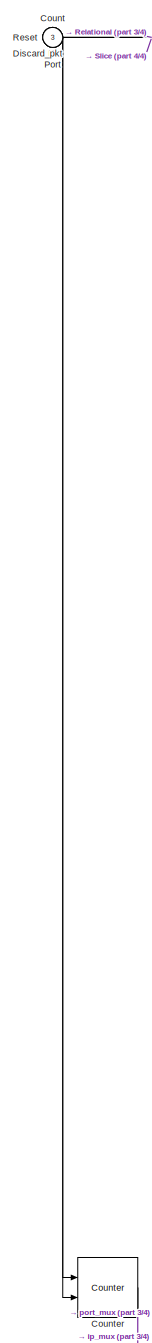
[diagram: dist_gbe/ip_ctr_xblock_init - part 1/4, top left region]
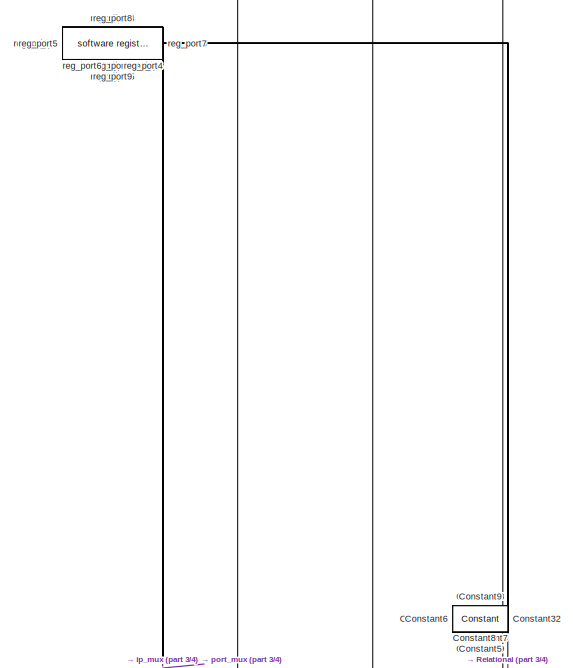
[diagram: dist_gbe/ip_ctr_xblock_init - part 2/4, full width, top band]
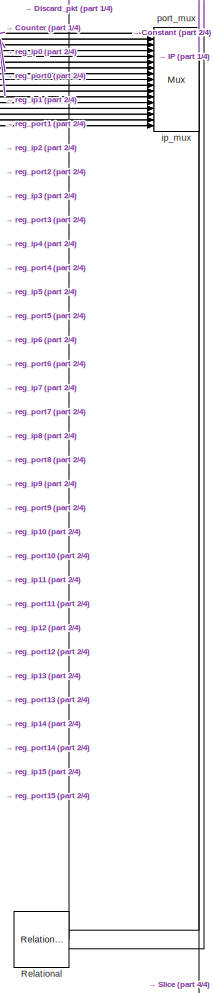
[diagram: dist_gbe/ip_ctr_xblock_init - part 3/4, bottom right region]
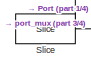
[diagram: dist_gbe/ip_ctr_xblock_init - part 4/4, bottom center region]
BLOCK [SubSystem] dist_gbe/ip_ctr_xblock_init
  FunctionWithSeparateData = off
  MaskHideContents = off
  MinAlgLoopOccurrences = off
  Opaque = off
  Ports = [2, 3]
  PropExecContextOutsideSubsystem = off
  RTWSystemCode = Auto
  RequestExecContextInheritance = off
  SID = 916
BLOCK [Reference] dist_gbe/ip_ctr_xblock_init/Constant  REF=xbsIndex_r4/Constant
  Ports = [0, 1]
  SID = 924
  SourceBlock = xbsIndex_r4/Constant
  SourceType = Xilinx Constant Block Block
  arith_type = Unsigned
  bin_pt = 0
  block_type = constant
  block_version = 11.4
  carry = CIN
  const = 0
  dbl_ovrd = off
  dsp48_infoedit = The use of this block for DSP48 instructions is deprecated.  Please use the Opmode block.
  equ = P=C
  explicit_period = on
  has_advanced_control = 0
  inp1 = P
  inp2 = PCIN>>17
  n_bits = 32
  opr = +
  opselect = C
  period = 1
  sg_icon_stat = 55,26,0,1,white,blue,0,bf4ddd8b,right,
  sggui_pos = -1,-1,-1,-1
BLOCK [Reference] dist_gbe/ip_ctr_xblock_init/Constant1  REF=xbsIndex_r4/Constant
  Ports = [0, 1]
  SID = 927
  SourceBlock = xbsIndex_r4/Constant
  SourceType = Xilinx Constant Block Block
  arith_type = Signed (2's comp)
  bin_pt = 0
  block_type = constant
  block_version = 11.4
  carry = CIN
  const = 4001
  dbl_ovrd = off
  dsp48_infoedit = The use of this block for DSP48 instructions is deprecated.  Please use the Opmode block.
  equ = P=C
  explicit_period = on
  has_advanced_control = 0
  inp1 = P
  inp2 = PCIN>>17
  n_bits = 16
  opr = +
  opselect = C
  period = 1
  sg_icon_stat = 55,26,0,1,white,blue,0,d5bd095d,right,
  sggui_pos = -1,-1,-1,-1
BLOCK [Reference] dist_gbe/ip_ctr_xblock_init/Constant10  REF=xbsIndex_r4/Constant
  Ports = [0, 1]
  SID = 945
  SourceBlock = xbsIndex_r4/Constant
  SourceType = Xilinx Constant Block Block
  arith_type = Signed (2's comp)
  bin_pt = 0
  block_type = constant
  block_version = 11.4
  carry = CIN
  const = 4005
  dbl_ovrd = off
  dsp48_infoedit = The use of this block for DSP48 instructions is deprecated.  Please use the Opmode block.
  equ = P=C
  explicit_period = on
  has_advanced_control = 0
  inp1 = P
  inp2 = PCIN>>17
  n_bits = 16
  opr = +
  opselect = C
  period = 1
  sg_icon_stat = 55,26,0,1,white,blue,0,09363874,right,
  sggui_pos = -1,-1,-1,-1
BLOCK [Reference] dist_gbe/ip_ctr_xblock_init/Constant11  REF=xbsIndex_r4/Constant
  Ports = [0, 1]
  SID = 947
  SourceBlock = xbsIndex_r4/Constant
  SourceType = Xilinx Constant Block Block
  arith_type = Signed (2's comp)
  bin_pt = 0
  block_type = constant
  block_version = 11.4
  carry = CIN
  const = 4006
  dbl_ovrd = off
  dsp48_infoedit = The use of this block for DSP48 instructions is deprecated.  Please use the Opmode block.
  equ = P=C
  explicit_period = on
  has_advanced_control = 0
  inp1 = P
  inp2 = PCIN>>17
  n_bits = 16
  opr = +
  opselect = C
  period = 1
  sg_icon_stat = 55,26,0,1,white,blue,0,e39e3738,right,
  sggui_pos = -1,-1,-1,-1
BLOCK [Reference] dist_gbe/ip_ctr_xblock_init/Constant12  REF=xbsIndex_r4/Constant
  Ports = [0, 1]
  SID = 949
  SourceBlock = xbsIndex_r4/Constant
  SourceType = Xilinx Constant Block Block
  arith_type = Signed (2's comp)
  bin_pt = 0
  block_type = constant
  block_version = 11.4
  carry = CIN
  const = 4006
  dbl_ovrd = off
  dsp48_infoedit = The use of this block for DSP48 instructions is deprecated.  Please use the Opmode block.
  equ = P=C
  explicit_period = on
  has_advanced_control = 0
  inp1 = P
  inp2 = PCIN>>17
  n_bits = 16
  opr = +
  opselect = C
  period = 1
  sg_icon_stat = 55,26,0,1,white,blue,0,e39e3738,right,
  sggui_pos = -1,-1,-1,-1
BLOCK [Reference] dist_gbe/ip_ctr_xblock_init/Constant13  REF=xbsIndex_r4/Constant
  Ports = [0, 1]
  SID = 951
  SourceBlock = xbsIndex_r4/Constant
  SourceType = Xilinx Constant Block Block
  arith_type = Signed (2's comp)
  bin_pt = 0
  block_type = constant
  block_version = 11.4
  carry = CIN
  const = 4007
  dbl_ovrd = off
  dsp48_infoedit = The use of this block for DSP48 instructions is deprecated.  Please use the Opmode block.
  equ = P=C
  explicit_period = on
  has_advanced_control = 0
  inp1 = P
  inp2 = PCIN>>17
  n_bits = 16
  opr = +
  opselect = C
  period = 1
  sg_icon_stat = 55,26,0,1,white,blue,0,bd6267ca,right,
  sggui_pos = -1,-1,-1,-1
BLOCK [Reference] dist_gbe/ip_ctr_xblock_init/Constant14  REF=xbsIndex_r4/Constant
  Ports = [0, 1]
  SID = 953
  SourceBlock = xbsIndex_r4/Constant
  SourceType = Xilinx Constant Block Block
  arith_type = Signed (2's comp)
  bin_pt = 0
  block_type = constant
  block_version = 11.4
  carry = CIN
  const = 4007
  dbl_ovrd = off
  dsp48_infoedit = The use of this block for DSP48 instructions is deprecated.  Please use the Opmode block.
  equ = P=C
  explicit_period = on
  has_advanced_control = 0
  inp1 = P
  inp2 = PCIN>>17
  n_bits = 16
  opr = +
  opselect = C
  period = 1
  sg_icon_stat = 55,26,0,1,white,blue,0,bd6267ca,right,
  sggui_pos = -1,-1,-1,-1
BLOCK [Reference] dist_gbe/ip_ctr_xblock_init/Constant15  REF=xbsIndex_r4/Constant
  Ports = [0, 1]
  SID = 955
  SourceBlock = xbsIndex_r4/Constant
  SourceType = Xilinx Constant Block Block
  arith_type = Signed (2's comp)
  bin_pt = 0
  block_type = constant
  block_version = 11.4
  carry = CIN
  const = 4008
  dbl_ovrd = off
  dsp48_infoedit = The use of this block for DSP48 instructions is deprecated.  Please use the Opmode block.
  equ = P=C
  explicit_period = on
  has_advanced_control = 0
  inp1 = P
  inp2 = PCIN>>17
  n_bits = 16
  opr = +
  opselect = C
  period = 1
  sg_icon_stat = 55,26,0,1,white,blue,0,76b839f0,right,
  sggui_pos = -1,-1,-1,-1
BLOCK [Reference] dist_gbe/ip_ctr_xblock_init/Constant16  REF=xbsIndex_r4/Constant
  Ports = [0, 1]
  SID = 957
  SourceBlock = xbsIndex_r4/Constant
  SourceType = Xilinx Constant Block Block
  arith_type = Signed (2's comp)
  bin_pt = 0
  block_type = constant
  block_version = 11.4
  carry = CIN
  const = 4008
  dbl_ovrd = off
  dsp48_infoedit = The use of this block for DSP48 instructions is deprecated.  Please use the Opmode block.
  equ = P=C
  explicit_period = on
  has_advanced_control = 0
  inp1 = P
  inp2 = PCIN>>17
  n_bits = 16
  opr = +
  opselect = C
  period = 1
  sg_icon_stat = 55,26,0,1,white,blue,0,76b839f0,right,
  sggui_pos = -1,-1,-1,-1
BLOCK [Reference] dist_gbe/ip_ctr_xblock_init/Constant17  REF=xbsIndex_r4/Constant
  Ports = [0, 1]
  SID = 959
  SourceBlock = xbsIndex_r4/Constant
  SourceType = Xilinx Constant Block Block
  arith_type = Signed (2's comp)
  bin_pt = 0
  block_type = constant
  block_version = 11.4
  carry = CIN
  const = 4009
  dbl_ovrd = off
  dsp48_infoedit = The use of this block for DSP48 instructions is deprecated.  Please use the Opmode block.
  equ = P=C
  explicit_period = on
  has_advanced_control = 0
  inp1 = P
  inp2 = PCIN>>17
  n_bits = 16
  opr = +
  opselect = C
  period = 1
  sg_icon_stat = 55,26,0,1,white,blue,0,61dc1374,right,
  sggui_pos = -1,-1,-1,-1
BLOCK [Reference] dist_gbe/ip_ctr_xblock_init/Constant18  REF=xbsIndex_r4/Constant
  Ports = [0, 1]
  SID = 961
  SourceBlock = xbsIndex_r4/Constant
  SourceType = Xilinx Constant Block Block
  arith_type = Signed (2's comp)
  bin_pt = 0
  block_type = constant
  block_version = 11.4
  carry = CIN
  const = 4009
  dbl_ovrd = off
  dsp48_infoedit = The use of this block for DSP48 instructions is deprecated.  Please use the Opmode block.
  equ = P=C
  explicit_period = on
  has_advanced_control = 0
  inp1 = P
  inp2 = PCIN>>17
  n_bits = 16
  opr = +
  opselect = C
  period = 1
  sg_icon_stat = 55,26,0,1,white,blue,0,61dc1374,right,
  sggui_pos = -1,-1,-1,-1
BLOCK [Reference] dist_gbe/ip_ctr_xblock_init/Constant19  REF=xbsIndex_r4/Constant
  Ports = [0, 1]
  SID = 963
  SourceBlock = xbsIndex_r4/Constant
  SourceType = Xilinx Constant Block Block
  arith_type = Signed (2's comp)
  bin_pt = 0
  block_type = constant
  block_version = 11.4
  carry = CIN
  const = 4010
  dbl_ovrd = off
  dsp48_infoedit = The use of this block for DSP48 instructions is deprecated.  Please use the Opmode block.
  equ = P=C
  explicit_period = on
  has_advanced_control = 0
  inp1 = P
  inp2 = PCIN>>17
  n_bits = 16
  opr = +
  opselect = C
  period = 1
  sg_icon_stat = 55,26,0,1,white,blue,0,5d44301c,right,
  sggui_pos = -1,-1,-1,-1
BLOCK [Reference] dist_gbe/ip_ctr_xblock_init/Constant2  REF=xbsIndex_r4/Constant
  Ports = [0, 1]
  SID = 929
  SourceBlock = xbsIndex_r4/Constant
  SourceType = Xilinx Constant Block Block
  arith_type = Signed (2's comp)
  bin_pt = 0
  block_type = constant
  block_version = 11.4
  carry = CIN
  const = 4001
  dbl_ovrd = off
  dsp48_infoedit = The use of this block for DSP48 instructions is deprecated.  Please use the Opmode block.
  equ = P=C
  explicit_period = on
  has_advanced_control = 0
  inp1 = P
  inp2 = PCIN>>17
  n_bits = 16
  opr = +
  opselect = C
  period = 1
  sg_icon_stat = 55,26,0,1,white,blue,0,d5bd095d,right,
  sggui_pos = -1,-1,-1,-1
BLOCK [Reference] dist_gbe/ip_ctr_xblock_init/Constant20  REF=xbsIndex_r4/Constant
  Ports = [0, 1]
  SID = 965
  SourceBlock = xbsIndex_r4/Constant
  SourceType = Xilinx Constant Block Block
  arith_type = Signed (2's comp)
  bin_pt = 0
  block_type = constant
  block_version = 11.4
  carry = CIN
  const = 4010
  dbl_ovrd = off
  dsp48_infoedit = The use of this block for DSP48 instructions is deprecated.  Please use the Opmode block.
  equ = P=C
  explicit_period = on
  has_advanced_control = 0
  inp1 = P
  inp2 = PCIN>>17
  n_bits = 16
  opr = +
  opselect = C
  period = 1
  sg_icon_stat = 55,26,0,1,white,blue,0,5d44301c,right,
  sggui_pos = -1,-1,-1,-1
BLOCK [Reference] dist_gbe/ip_ctr_xblock_init/Constant21  REF=xbsIndex_r4/Constant
  Ports = [0, 1]
  SID = 967
  SourceBlock = xbsIndex_r4/Constant
  SourceType = Xilinx Constant Block Block
  arith_type = Signed (2's comp)
  bin_pt = 0
  block_type = constant
  block_version = 11.4
  carry = CIN
  const = 4011
  dbl_ovrd = off
  dsp48_infoedit = The use of this block for DSP48 instructions is deprecated.  Please use the Opmode block.
  equ = P=C
  explicit_period = on
  has_advanced_control = 0
  inp1 = P
  inp2 = PCIN>>17
  n_bits = 16
  opr = +
  opselect = C
  period = 1
  sg_icon_stat = 55,26,0,1,white,blue,0,9b0df4a8,right,
  sggui_pos = -1,-1,-1,-1
BLOCK [Reference] dist_gbe/ip_ctr_xblock_init/Constant22  REF=xbsIndex_r4/Constant
  Ports = [0, 1]
  SID = 969
  SourceBlock = xbsIndex_r4/Constant
  SourceType = Xilinx Constant Block Block
  arith_type = Signed (2's comp)
  bin_pt = 0
  block_type = constant
  block_version = 11.4
  carry = CIN
  const = 4011
  dbl_ovrd = off
  dsp48_infoedit = The use of this block for DSP48 instructions is deprecated.  Please use the Opmode block.
  equ = P=C
  explicit_period = on
  has_advanced_control = 0
  inp1 = P
  inp2 = PCIN>>17
  n_bits = 16
  opr = +
  opselect = C
  period = 1
  sg_icon_stat = 55,26,0,1,white,blue,0,9b0df4a8,right,
  sggui_pos = -1,-1,-1,-1
BLOCK [Reference] dist_gbe/ip_ctr_xblock_init/Constant23  REF=xbsIndex_r4/Constant
  Ports = [0, 1]
  SID = 971
  SourceBlock = xbsIndex_r4/Constant
  SourceType = Xilinx Constant Block Block
  arith_type = Signed (2's comp)
  bin_pt = 0
  block_type = constant
  block_version = 11.4
  carry = CIN
  const = 4012
  dbl_ovrd = off
  dsp48_infoedit = The use of this block for DSP48 instructions is deprecated.  Please use the Opmode block.
  equ = P=C
  explicit_period = on
  has_advanced_control = 0
  inp1 = P
  inp2 = PCIN>>17
  n_bits = 16
  opr = +
  opselect = C
  period = 1
  sg_icon_stat = 55,26,0,1,white,blue,0,d5ac23db,right,
  sggui_pos = -1,-1,-1,-1
BLOCK [Reference] dist_gbe/ip_ctr_xblock_init/Constant24  REF=xbsIndex_r4/Constant
  Ports = [0, 1]
  SID = 973
  SourceBlock = xbsIndex_r4/Constant
  SourceType = Xilinx Constant Block Block
  arith_type = Signed (2's comp)
  bin_pt = 0
  block_type = constant
  block_version = 11.4
  carry = CIN
  const = 4012
  dbl_ovrd = off
  dsp48_infoedit = The use of this block for DSP48 instructions is deprecated.  Please use the Opmode block.
  equ = P=C
  explicit_period = on
  has_advanced_control = 0
  inp1 = P
  inp2 = PCIN>>17
  n_bits = 16
  opr = +
  opselect = C
  period = 1
  sg_icon_stat = 55,26,0,1,white,blue,0,d5ac23db,right,
  sggui_pos = -1,-1,-1,-1
BLOCK [Reference] dist_gbe/ip_ctr_xblock_init/Constant25  REF=xbsIndex_r4/Constant
  Ports = [0, 1]
  SID = 975
  SourceBlock = xbsIndex_r4/Constant
  SourceType = Xilinx Constant Block Block
  arith_type = Signed (2's comp)
  bin_pt = 0
  block_type = constant
  block_version = 11.4
  carry = CIN
  const = 4013
  dbl_ovrd = off
  dsp48_infoedit = The use of this block for DSP48 instructions is deprecated.  Please use the Opmode block.
  equ = P=C
  explicit_period = on
  has_advanced_control = 0
  inp1 = P
  inp2 = PCIN>>17
  n_bits = 16
  opr = +
  opselect = C
  period = 1
  sg_icon_stat = 55,26,0,1,white,blue,0,d456aa4b,right,
  sggui_pos = -1,-1,-1,-1
BLOCK [Reference] dist_gbe/ip_ctr_xblock_init/Constant26  REF=xbsIndex_r4/Constant
  Ports = [0, 1]
  SID = 977
  SourceBlock = xbsIndex_r4/Constant
  SourceType = Xilinx Constant Block Block
  arith_type = Signed (2's comp)
  bin_pt = 0
  block_type = constant
  block_version = 11.4
  carry = CIN
  const = 4013
  dbl_ovrd = off
  dsp48_infoedit = The use of this block for DSP48 instructions is deprecated.  Please use the Opmode block.
  equ = P=C
  explicit_period = on
  has_advanced_control = 0
  inp1 = P
  inp2 = PCIN>>17
  n_bits = 16
  opr = +
  opselect = C
  period = 1
  sg_icon_stat = 55,26,0,1,white,blue,0,d456aa4b,right,
  sggui_pos = -1,-1,-1,-1
BLOCK [Reference] dist_gbe/ip_ctr_xblock_init/Constant27  REF=xbsIndex_r4/Constant
  Ports = [0, 1]
  SID = 979
  SourceBlock = xbsIndex_r4/Constant
  SourceType = Xilinx Constant Block Block
  arith_type = Signed (2's comp)
  bin_pt = 0
  block_type = constant
  block_version = 11.4
  carry = CIN
  const = 4014
  dbl_ovrd = off
  dsp48_infoedit = The use of this block for DSP48 instructions is deprecated.  Please use the Opmode block.
  equ = P=C
  explicit_period = on
  has_advanced_control = 0
  inp1 = P
  inp2 = PCIN>>17
  n_bits = 16
  opr = +
  opselect = C
  period = 1
  sg_icon_stat = 55,26,0,1,white,blue,0,e35fe49d,right,
  sggui_pos = -1,-1,-1,-1
BLOCK [Reference] dist_gbe/ip_ctr_xblock_init/Constant28  REF=xbsIndex_r4/Constant
  Ports = [0, 1]
  SID = 981
  SourceBlock = xbsIndex_r4/Constant
  SourceType = Xilinx Constant Block Block
  arith_type = Signed (2's comp)
  bin_pt = 0
  block_type = constant
  block_version = 11.4
  carry = CIN
  const = 4014
  dbl_ovrd = off
  dsp48_infoedit = The use of this block for DSP48 instructions is deprecated.  Please use the Opmode block.
  equ = P=C
  explicit_period = on
  has_advanced_control = 0
  inp1 = P
  inp2 = PCIN>>17
  n_bits = 16
  opr = +
  opselect = C
  period = 1
  sg_icon_stat = 55,26,0,1,white,blue,0,e35fe49d,right,
  sggui_pos = -1,-1,-1,-1
BLOCK [Reference] dist_gbe/ip_ctr_xblock_init/Constant29  REF=xbsIndex_r4/Constant
  Ports = [0, 1]
  SID = 983
  SourceBlock = xbsIndex_r4/Constant
  SourceType = Xilinx Constant Block Block
  arith_type = Signed (2's comp)
  bin_pt = 0
  block_type = constant
  block_version = 11.4
  carry = CIN
  const = 4015
  dbl_ovrd = off
  dsp48_infoedit = The use of this block for DSP48 instructions is deprecated.  Please use the Opmode block.
  equ = P=C
  explicit_period = on
  has_advanced_control = 0
  inp1 = P
  inp2 = PCIN>>17
  n_bits = 16
  opr = +
  opselect = C
  period = 1
  sg_icon_stat = 55,26,0,1,white,blue,0,9115ed95,right,
  sggui_pos = -1,-1,-1,-1
BLOCK [Reference] dist_gbe/ip_ctr_xblock_init/Constant3  REF=xbsIndex_r4/Constant
  Ports = [0, 1]
  SID = 931
  SourceBlock = xbsIndex_r4/Constant
  SourceType = Xilinx Constant Block Block
  arith_type = Signed (2's comp)
  bin_pt = 0
  block_type = constant
  block_version = 11.4
  carry = CIN
  const = 4002
  dbl_ovrd = off
  dsp48_infoedit = The use of this block for DSP48 instructions is deprecated.  Please use the Opmode block.
  equ = P=C
  explicit_period = on
  has_advanced_control = 0
  inp1 = P
  inp2 = PCIN>>17
  n_bits = 16
  opr = +
  opselect = C
  period = 1
  sg_icon_stat = 55,26,0,1,white,blue,0,13806bfb,right,
  sggui_pos = -1,-1,-1,-1
BLOCK [Reference] dist_gbe/ip_ctr_xblock_init/Constant30  REF=xbsIndex_r4/Constant
  Ports = [0, 1]
  SID = 985
  SourceBlock = xbsIndex_r4/Constant
  SourceType = Xilinx Constant Block Block
  arith_type = Signed (2's comp)
  bin_pt = 0
  block_type = constant
  block_version = 11.4
  carry = CIN
  const = 4015
  dbl_ovrd = off
  dsp48_infoedit = The use of this block for DSP48 instructions is deprecated.  Please use the Opmode block.
  equ = P=C
  explicit_period = on
  has_advanced_control = 0
  inp1 = P
  inp2 = PCIN>>17
  n_bits = 16
  opr = +
  opselect = C
  period = 1
  sg_icon_stat = 55,26,0,1,white,blue,0,9115ed95,right,
  sggui_pos = -1,-1,-1,-1
BLOCK [Reference] dist_gbe/ip_ctr_xblock_init/Constant31  REF=xbsIndex_r4/Constant
  Ports = [0, 1]
  SID = 987
  SourceBlock = xbsIndex_r4/Constant
  SourceType = Xilinx Constant Block Block
  arith_type = Signed (2's comp)
  bin_pt = 0
  block_type = constant
  block_version = 11.4
  carry = CIN
  const = 4016
  dbl_ovrd = off
  dsp48_infoedit = The use of this block for DSP48 instructions is deprecated.  Please use the Opmode block.
  equ = P=C
  explicit_period = on
  has_advanced_control = 0
  inp1 = P
  inp2 = PCIN>>17
  n_bits = 16
  opr = +
  opselect = C
  period = 1
  sg_icon_stat = 55,26,0,1,white,blue,0,fad35ea6,right,
  sggui_pos = -1,-1,-1,-1
BLOCK [Reference] dist_gbe/ip_ctr_xblock_init/Constant32  REF=xbsIndex_r4/Constant
  Ports = [0, 1]
  SID = 989
  SourceBlock = xbsIndex_r4/Constant
  SourceType = Xilinx Constant Block Block
  arith_type = Signed (2's comp)
  bin_pt = 0
  block_type = constant
  block_version = 11.4
  carry = CIN
  const = 4016
  dbl_ovrd = off
  dsp48_infoedit = The use of this block for DSP48 instructions is deprecated.  Please use the Opmode block.
  equ = P=C
  explicit_period = on
  has_advanced_control = 0
  inp1 = P
  inp2 = PCIN>>17
  n_bits = 16
  opr = +
  opselect = C
  period = 1
  sg_icon_stat = 55,26,0,1,white,blue,0,fad35ea6,right,
  sggui_pos = -1,-1,-1,-1
BLOCK [Reference] dist_gbe/ip_ctr_xblock_init/Constant4  REF=xbsIndex_r4/Constant
  Ports = [0, 1]
  SID = 933
  SourceBlock = xbsIndex_r4/Constant
  SourceType = Xilinx Constant Block Block
  arith_type = Signed (2's comp)
  bin_pt = 0
  block_type = constant
  block_version = 11.4
  carry = CIN
  const = 4002
  dbl_ovrd = off
  dsp48_infoedit = The use of this block for DSP48 instructions is deprecated.  Please use the Opmode block.
  equ = P=C
  explicit_period = on
  has_advanced_control = 0
  inp1 = P
  inp2 = PCIN>>17
  n_bits = 16
  opr = +
  opselect = C
  period = 1
  sg_icon_stat = 55,26,0,1,white,blue,0,13806bfb,right,
  sggui_pos = -1,-1,-1,-1
BLOCK [Reference] dist_gbe/ip_ctr_xblock_init/Constant5  REF=xbsIndex_r4/Constant
  Ports = [0, 1]
  SID = 935
  SourceBlock = xbsIndex_r4/Constant
  SourceType = Xilinx Constant Block Block
  arith_type = Signed (2's comp)
  bin_pt = 0
  block_type = constant
  block_version = 11.4
  carry = CIN
  const = 4003
  dbl_ovrd = off
  dsp48_infoedit = The use of this block for DSP48 instructions is deprecated.  Please use the Opmode block.
  equ = P=C
  explicit_period = on
  has_advanced_control = 0
  inp1 = P
  inp2 = PCIN>>17
  n_bits = 16
  opr = +
  opselect = C
  period = 1
  sg_icon_stat = 55,26,0,1,white,blue,0,9fa8dcce,right,
  sggui_pos = -1,-1,-1,-1
BLOCK [Reference] dist_gbe/ip_ctr_xblock_init/Constant6  REF=xbsIndex_r4/Constant
  Ports = [0, 1]
  SID = 937
  SourceBlock = xbsIndex_r4/Constant
  SourceType = Xilinx Constant Block Block
  arith_type = Signed (2's comp)
  bin_pt = 0
  block_type = constant
  block_version = 11.4
  carry = CIN
  const = 4003
  dbl_ovrd = off
  dsp48_infoedit = The use of this block for DSP48 instructions is deprecated.  Please use the Opmode block.
  equ = P=C
  explicit_period = on
  has_advanced_control = 0
  inp1 = P
  inp2 = PCIN>>17
  n_bits = 16
  opr = +
  opselect = C
  period = 1
  sg_icon_stat = 55,26,0,1,white,blue,0,9fa8dcce,right,
  sggui_pos = -1,-1,-1,-1
BLOCK [Reference] dist_gbe/ip_ctr_xblock_init/Constant7  REF=xbsIndex_r4/Constant
  Ports = [0, 1]
  SID = 939
  SourceBlock = xbsIndex_r4/Constant
  SourceType = Xilinx Constant Block Block
  arith_type = Signed (2's comp)
  bin_pt = 0
  block_type = constant
  block_version = 11.4
  carry = CIN
  const = 4004
  dbl_ovrd = off
  dsp48_infoedit = The use of this block for DSP48 instructions is deprecated.  Please use the Opmode block.
  equ = P=C
  explicit_period = on
  has_advanced_control = 0
  inp1 = P
  inp2 = PCIN>>17
  n_bits = 16
  opr = +
  opselect = C
  period = 1
  sg_icon_stat = 55,26,0,1,white,blue,0,906f55ca,right,
  sggui_pos = -1,-1,-1,-1
BLOCK [Reference] dist_gbe/ip_ctr_xblock_init/Constant8  REF=xbsIndex_r4/Constant
  Ports = [0, 1]
  SID = 941
  SourceBlock = xbsIndex_r4/Constant
  SourceType = Xilinx Constant Block Block
  arith_type = Signed (2's comp)
  bin_pt = 0
  block_type = constant
  block_version = 11.4
  carry = CIN
  const = 4004
  dbl_ovrd = off
  dsp48_infoedit = The use of this block for DSP48 instructions is deprecated.  Please use the Opmode block.
  equ = P=C
  explicit_period = on
  has_advanced_control = 0
  inp1 = P
  inp2 = PCIN>>17
  n_bits = 16
  opr = +
  opselect = C
  period = 1
  sg_icon_stat = 55,26,0,1,white,blue,0,906f55ca,right,
  sggui_pos = -1,-1,-1,-1
BLOCK [Reference] dist_gbe/ip_ctr_xblock_init/Constant9  REF=xbsIndex_r4/Constant
  Ports = [0, 1]
  SID = 943
  SourceBlock = xbsIndex_r4/Constant
  SourceType = Xilinx Constant Block Block
  arith_type = Signed (2's comp)
  bin_pt = 0
  block_type = constant
  block_version = 11.4
  carry = CIN
  const = 4005
  dbl_ovrd = off
  dsp48_infoedit = The use of this block for DSP48 instructions is deprecated.  Please use the Opmode block.
  equ = P=C
  explicit_period = on
  has_advanced_control = 0
  inp1 = P
  inp2 = PCIN>>17
  n_bits = 16
  opr = +
  opselect = C
  period = 1
  sg_icon_stat = 55,26,0,1,white,blue,0,09363874,right,
  sggui_pos = -1,-1,-1,-1
BLOCK [Inport] dist_gbe/ip_ctr_xblock_init/Count
  IconDisplay = Port number
  SID = 917
BLOCK [Reference] dist_gbe/ip_ctr_xblock_init/Counter  REF=xbsIndex_r4/Counter
  Ports = [2, 1]
  SID = 923
  SourceBlock = xbsIndex_r4/Counter
  SourceType = Xilinx Counter Block
  arith_type = Unsigned
  bin_pt = 0
  block_type = counter
  block_version = 11.4
  cnt_by_val = 1
  cnt_to = Inf
  cnt_type = Free Running
  dbl_ovrd = off
  en = on
  explicit_period = on
  has_advanced_control = 0
  implementation = Fabric
  infoedit = Hardware notes: Free running counters are the least expensive in hardware.  A count limited counter is implemented by combining a counter with a comparator.
  load_pin = off
  n_bits = 4
  operation = Up
  period = 1
  rst = on
  sg_icon_stat = 60,60,2,1,white,blue,0,d605779c,right,
  sggui_pos = -1,-1,-1,-1
  start_count = 0
  use_behavioral_HDL = off
  xl_area = [0,0,0,0,0,0,0]
  xl_use_area = off
BLOCK [Outport] dist_gbe/ip_ctr_xblock_init/Discard_pkt
  IconDisplay = Port number
  Port = 3
  SID = 922
BLOCK [Outport] dist_gbe/ip_ctr_xblock_init/IP
  IconDisplay = Port number
  SID = 919
BLOCK [Outport] dist_gbe/ip_ctr_xblock_init/Port
  IconDisplay = Port number
  Port = 2
  SID = 920
BLOCK [Reference] dist_gbe/ip_ctr_xblock_init/Relational  REF=xbsIndex_r4/Relational
  Ports = [2, 1]
  SID = 925
  SourceBlock = xbsIndex_r4/Relational
  SourceType = Xilinx Arithmetic Relational Operator Block
  block_type = relational
  block_version = 11.4
  dbl_ovrd = off
  en = off
  has_advanced_control = 0
  latency = 1
  mode = a=b
  sg_icon_stat = 55,56,2,1,white,blue,0,2d4703fd,right,
  sg_mask_display = fprintf('','COMMENT: begin icon graphics');\npatch([0 1 1 0 ],[0 0 1 1 ],[0.77 0.82 0.91]);\npatch([0.236364 0.0727273 0.309091 0.0727273 0.236364 0.509091 0.581818 0.654545 0.945455 0.727273 0.509091 0.345455 0.581818 0.345455 0.509091 0.727273 0.945455 0.654545 0.581818 0.509091 0.236364 ],[0.107143 0.267857 0.5 0.732143 0.892857 0.892857 0.821429 0.892857 0.892857 0.678571 0.892857 0.732143 0.5...<+412ch>
  sggui_pos = -1,-1,-1,-1
  xl_area = [0,0,0,0,0,0,0]
  xl_use_area = off
BLOCK [Inport] dist_gbe/ip_ctr_xblock_init/Reset
  IconDisplay = Port number
  Port = 2
  SID = 918
BLOCK [Reference] dist_gbe/ip_ctr_xblock_init/Slice  REF=xbsIndex_r4/Slice
  Ports = [1, 1]
  SID = 921
  SourceBlock = xbsIndex_r4/Slice
  SourceType = Xilinx Bit Slice Extractor Block
  base0 = LSB of Input
  base1 = MSB of Input
  bit0 = 0
  bit1 = 0
  block_type = slice
  block_version = 11.4
  boolean_output = off
  dbl_ovrd = off
  has_advanced_control = 0
  mode = Lower Bit Location + Width
  nbits = 16
  sg_icon_stat = 60,30,1,1,white,blue,0,1fd851a7,right,
  sg_mask_display = fprintf('','COMMENT: begin icon graphics');\npatch([0 1 1 0 ],[0 0 1 1 ],[0.77 0.82 0.91]);\npatch([0.366667 0.283333 0.4 0.283333 0.366667 0.5 0.533333 0.566667 0.7 0.583333 0.483333 0.4 0.5 0.4 0.483333 0.583333 0.7 0.566667 0.533333 0.5 0.366667 ],[0.1 0.266667 0.5 0.733333 0.9 0.9 0.833333 0.9 0.9 0.666667 0.866667 0.7 0.5 0.3 0.133333 0.333333 0.1 0.1 0.166667 0.1 0.1 ],[0.98 0.96 0.92]);\npl...<+203ch>
  sggui_pos = -1,-1,-1,-1
BLOCK [Reference] dist_gbe/ip_ctr_xblock_init/ip_mux  REF=xbsIndex_r4/Mux
  Ports = [17, 1]
  SID = 990
  SourceBlock = xbsIndex_r4/Mux
  SourceType = Xilinx Bus Multiplexer Block
  arith_type = Unsigned
  bin_pt = 14
  block_type = mux
  block_version = 11.4
  dbl_ovrd = off
  en = off
  has_advanced_control = 0
  inputs = 16
  latency = 3
  n_bits = 16
  overflow = Wrap
  precision = Full
  quantization = Truncate
  sg_icon_stat = 45,104,17,1,white,blue,3,17e9d8cb,right,
  sg_mask_display = fprintf('','COMMENT: begin icon graphics');\npatch([0 1 1 0 ],[0 0.142857 0.857143 1 ],[0.77 0.82 0.91]);\npatch([0.222222 0.0666667 0.311111 0.0666667 0.222222 0.488889 0.555556 0.622222 0.911111 0.688889 0.466667 0.311111 0.555556 0.311111 0.466667 0.688889 0.911111 0.622222 0.555556 0.488889 0.222222 ],[0.326923 0.394231 0.5 0.605769 0.673077 0.673077 0.644231 0.673077 0.673077 0.576923 0.67307...<+1098ch>
  sggui_pos = -1,-1,-1,-1
  xl_area = [0,0,0,0,0,0,0]
  xl_use_area = off
BLOCK [Reference] dist_gbe/ip_ctr_xblock_init/port_mux  REF=xbsIndex_r4/Mux
  Ports = [17, 1]
  SID = 991
  SourceBlock = xbsIndex_r4/Mux
  SourceType = Xilinx Bus Multiplexer Block
  arith_type = Unsigned
  bin_pt = 14
  block_type = mux
  block_version = 11.4
  dbl_ovrd = off
  en = off
  has_advanced_control = 0
  inputs = 16
  latency = 3
  n_bits = 16
  overflow = Wrap
  precision = Full
  quantization = Truncate
  sg_icon_stat = 45,104,17,1,white,blue,3,17e9d8cb,right,
  sg_mask_display = fprintf('','COMMENT: begin icon graphics');\npatch([0 1 1 0 ],[0 0.142857 0.857143 1 ],[0.77 0.82 0.91]);\npatch([0.222222 0.0666667 0.311111 0.0666667 0.222222 0.488889 0.555556 0.622222 0.911111 0.688889 0.466667 0.311111 0.555556 0.311111 0.466667 0.688889 0.911111 0.622222 0.555556 0.488889 0.222222 ],[0.326923 0.394231 0.5 0.605769 0.673077 0.673077 0.644231 0.673077 0.673077 0.576923 0.67307...<+1098ch>
  sggui_pos = -1,-1,-1,-1
  xl_area = [0,0,0,0,0,0,0]
  xl_use_area = off
BLOCK [Reference] dist_gbe/ip_ctr_xblock_init/reg_ip0  REF=xps_library/software register  (lib defined in mdl_00b5cec29cd0, mdl_02ab6ecaa3d1, +5 more)
  FunctionWithSeparateData = off
  Ports = [1, 1]
  RTWMemSecDataConstants = Inherit from model
  RTWMemSecDataInternal = Inherit from model
  RTWMemSecDataParameters = Inherit from model
  RTWMemSecFuncExecute = Inherit from model
  RTWMemSecFuncInitTerm = Inherit from model
  SID = 926
  ShowPortLabels = FromPortIcon
  SourceBlock = xps_library/software register
  SystemSampleTime = -1
  Tag = xps:sw_reg
  arith_type = Unsigned
  bin_pt = 0
  bitwidth = 32
  gw_name = pasp_lib_dist_gbe_ip_ctr_xblock_init_reg_ip0_user_data_out
  io_dir = From Processor
  sample_period = 1
BLOCK [Reference] dist_gbe/ip_ctr_xblock_init/reg_ip1  REF=xps_library/software register  (lib defined in mdl_00b5cec29cd0, mdl_02ab6ecaa3d1, +5 more)
  FunctionWithSeparateData = off
  Ports = [1, 1]
  RTWMemSecDataConstants = Inherit from model
  RTWMemSecDataInternal = Inherit from model
  RTWMemSecDataParameters = Inherit from model
  RTWMemSecFuncExecute = Inherit from model
  RTWMemSecFuncInitTerm = Inherit from model
  SID = 930
  ShowPortLabels = FromPortIcon
  SourceBlock = xps_library/software register
  SystemSampleTime = -1
  Tag = xps:sw_reg
  arith_type = Unsigned
  bin_pt = 0
  bitwidth = 32
  gw_name = pasp_lib_dist_gbe_ip_ctr_xblock_init_reg_ip1_user_data_out
  io_dir = From Processor
  sample_period = 1
BLOCK [Reference] dist_gbe/ip_ctr_xblock_init/reg_ip10  REF=xps_library/software register  (lib defined in mdl_00b5cec29cd0, mdl_02ab6ecaa3d1, +5 more)
  FunctionWithSeparateData = off
  Ports = [1, 1]
  RTWMemSecDataConstants = Inherit from model
  RTWMemSecDataInternal = Inherit from model
  RTWMemSecDataParameters = Inherit from model
  RTWMemSecFuncExecute = Inherit from model
  RTWMemSecFuncInitTerm = Inherit from model
  SID = 966
  ShowPortLabels = FromPortIcon
  SourceBlock = xps_library/software register
  SystemSampleTime = -1
  Tag = xps:sw_reg
  arith_type = Unsigned
  bin_pt = 0
  bitwidth = 32
  gw_name = pasp_lib_dist_gbe_ip_ctr_xblock_init_reg_ip10_user_data_out
  io_dir = From Processor
  sample_period = 1
BLOCK [Reference] dist_gbe/ip_ctr_xblock_init/reg_ip11  REF=xps_library/software register  (lib defined in mdl_00b5cec29cd0, mdl_02ab6ecaa3d1, +5 more)
  FunctionWithSeparateData = off
  Ports = [1, 1]
  RTWMemSecDataConstants = Inherit from model
  RTWMemSecDataInternal = Inherit from model
  RTWMemSecDataParameters = Inherit from model
  RTWMemSecFuncExecute = Inherit from model
  RTWMemSecFuncInitTerm = Inherit from model
  SID = 970
  ShowPortLabels = FromPortIcon
  SourceBlock = xps_library/software register
  SystemSampleTime = -1
  Tag = xps:sw_reg
  arith_type = Unsigned
  bin_pt = 0
  bitwidth = 32
  gw_name = pasp_lib_dist_gbe_ip_ctr_xblock_init_reg_ip11_user_data_out
  io_dir = From Processor
  sample_period = 1
BLOCK [Reference] dist_gbe/ip_ctr_xblock_init/reg_ip12  REF=xps_library/software register  (lib defined in mdl_00b5cec29cd0, mdl_02ab6ecaa3d1, +5 more)
  FunctionWithSeparateData = off
  Ports = [1, 1]
  RTWMemSecDataConstants = Inherit from model
  RTWMemSecDataInternal = Inherit from model
  RTWMemSecDataParameters = Inherit from model
  RTWMemSecFuncExecute = Inherit from model
  RTWMemSecFuncInitTerm = Inherit from model
  SID = 974
  ShowPortLabels = FromPortIcon
  SourceBlock = xps_library/software register
  SystemSampleTime = -1
  Tag = xps:sw_reg
  arith_type = Unsigned
  bin_pt = 0
  bitwidth = 32
  gw_name = pasp_lib_dist_gbe_ip_ctr_xblock_init_reg_ip12_user_data_out
  io_dir = From Processor
  sample_period = 1
BLOCK [Reference] dist_gbe/ip_ctr_xblock_init/reg_ip13  REF=xps_library/software register  (lib defined in mdl_00b5cec29cd0, mdl_02ab6ecaa3d1, +5 more)
  FunctionWithSeparateData = off
  Ports = [1, 1]
  RTWMemSecDataConstants = Inherit from model
  RTWMemSecDataInternal = Inherit from model
  RTWMemSecDataParameters = Inherit from model
  RTWMemSecFuncExecute = Inherit from model
  RTWMemSecFuncInitTerm = Inherit from model
  SID = 978
  ShowPortLabels = FromPortIcon
  SourceBlock = xps_library/software register
  SystemSampleTime = -1
  Tag = xps:sw_reg
  arith_type = Unsigned
  bin_pt = 0
  bitwidth = 32
  gw_name = pasp_lib_dist_gbe_ip_ctr_xblock_init_reg_ip13_user_data_out
  io_dir = From Processor
  sample_period = 1
BLOCK [Reference] dist_gbe/ip_ctr_xblock_init/reg_ip14  REF=xps_library/software register  (lib defined in mdl_00b5cec29cd0, mdl_02ab6ecaa3d1, +5 more)
  FunctionWithSeparateData = off
  Ports = [1, 1]
  RTWMemSecDataConstants = Inherit from model
  RTWMemSecDataInternal = Inherit from model
  RTWMemSecDataParameters = Inherit from model
  RTWMemSecFuncExecute = Inherit from model
  RTWMemSecFuncInitTerm = Inherit from model
  SID = 982
  ShowPortLabels = FromPortIcon
  SourceBlock = xps_library/software register
  SystemSampleTime = -1
  Tag = xps:sw_reg
  arith_type = Unsigned
  bin_pt = 0
  bitwidth = 32
  gw_name = pasp_lib_dist_gbe_ip_ctr_xblock_init_reg_ip14_user_data_out
  io_dir = From Processor
  sample_period = 1
BLOCK [Reference] dist_gbe/ip_ctr_xblock_init/reg_ip15  REF=xps_library/software register  (lib defined in mdl_00b5cec29cd0, mdl_02ab6ecaa3d1, +5 more)
  FunctionWithSeparateData = off
  Ports = [1, 1]
  RTWMemSecDataConstants = Inherit from model
  RTWMemSecDataInternal = Inherit from model
  RTWMemSecDataParameters = Inherit from model
  RTWMemSecFuncExecute = Inherit from model
  RTWMemSecFuncInitTerm = Inherit from model
  SID = 986
  ShowPortLabels = FromPortIcon
  SourceBlock = xps_library/software register
  SystemSampleTime = -1
  Tag = xps:sw_reg
  arith_type = Unsigned
  bin_pt = 0
  bitwidth = 32
  gw_name = pasp_lib_dist_gbe_ip_ctr_xblock_init_reg_ip15_user_data_out
  io_dir = From Processor
  sample_period = 1
BLOCK [Reference] dist_gbe/ip_ctr_xblock_init/reg_ip2  REF=xps_library/software register  (lib defined in mdl_00b5cec29cd0, mdl_02ab6ecaa3d1, +5 more)
  FunctionWithSeparateData = off
  Ports = [1, 1]
  RTWMemSecDataConstants = Inherit from model
  RTWMemSecDataInternal = Inherit from model
  RTWMemSecDataParameters = Inherit from model
  RTWMemSecFuncExecute = Inherit from model
  RTWMemSecFuncInitTerm = Inherit from model
  SID = 934
  ShowPortLabels = FromPortIcon
  SourceBlock = xps_library/software register
  SystemSampleTime = -1
  Tag = xps:sw_reg
  arith_type = Unsigned
  bin_pt = 0
  bitwidth = 32
  gw_name = pasp_lib_dist_gbe_ip_ctr_xblock_init_reg_ip2_user_data_out
  io_dir = From Processor
  sample_period = 1
BLOCK [Reference] dist_gbe/ip_ctr_xblock_init/reg_ip3  REF=xps_library/software register  (lib defined in mdl_00b5cec29cd0, mdl_02ab6ecaa3d1, +5 more)
  FunctionWithSeparateData = off
  Ports = [1, 1]
  RTWMemSecDataConstants = Inherit from model
  RTWMemSecDataInternal = Inherit from model
  RTWMemSecDataParameters = Inherit from model
  RTWMemSecFuncExecute = Inherit from model
  RTWMemSecFuncInitTerm = Inherit from model
  SID = 938
  ShowPortLabels = FromPortIcon
  SourceBlock = xps_library/software register
  SystemSampleTime = -1
  Tag = xps:sw_reg
  arith_type = Unsigned
  bin_pt = 0
  bitwidth = 32
  gw_name = pasp_lib_dist_gbe_ip_ctr_xblock_init_reg_ip3_user_data_out
  io_dir = From Processor
  sample_period = 1
BLOCK [Reference] dist_gbe/ip_ctr_xblock_init/reg_ip4  REF=xps_library/software register  (lib defined in mdl_00b5cec29cd0, mdl_02ab6ecaa3d1, +5 more)
  FunctionWithSeparateData = off
  Ports = [1, 1]
  RTWMemSecDataConstants = Inherit from model
  RTWMemSecDataInternal = Inherit from model
  RTWMemSecDataParameters = Inherit from model
  RTWMemSecFuncExecute = Inherit from model
  RTWMemSecFuncInitTerm = Inherit from model
  SID = 942
  ShowPortLabels = FromPortIcon
  SourceBlock = xps_library/software register
  SystemSampleTime = -1
  Tag = xps:sw_reg
  arith_type = Unsigned
  bin_pt = 0
  bitwidth = 32
  gw_name = pasp_lib_dist_gbe_ip_ctr_xblock_init_reg_ip4_user_data_out
  io_dir = From Processor
  sample_period = 1
BLOCK [Reference] dist_gbe/ip_ctr_xblock_init/reg_ip5  REF=xps_library/software register  (lib defined in mdl_00b5cec29cd0, mdl_02ab6ecaa3d1, +5 more)
  FunctionWithSeparateData = off
  Ports = [1, 1]
  RTWMemSecDataConstants = Inherit from model
  RTWMemSecDataInternal = Inherit from model
  RTWMemSecDataParameters = Inherit from model
  RTWMemSecFuncExecute = Inherit from model
  RTWMemSecFuncInitTerm = Inherit from model
  SID = 946
  ShowPortLabels = FromPortIcon
  SourceBlock = xps_library/software register
  SystemSampleTime = -1
  Tag = xps:sw_reg
  arith_type = Unsigned
  bin_pt = 0
  bitwidth = 32
  gw_name = pasp_lib_dist_gbe_ip_ctr_xblock_init_reg_ip5_user_data_out
  io_dir = From Processor
  sample_period = 1
BLOCK [Reference] dist_gbe/ip_ctr_xblock_init/reg_ip6  REF=xps_library/software register  (lib defined in mdl_00b5cec29cd0, mdl_02ab6ecaa3d1, +5 more)
  FunctionWithSeparateData = off
  Ports = [1, 1]
  RTWMemSecDataConstants = Inherit from model
  RTWMemSecDataInternal = Inherit from model
  RTWMemSecDataParameters = Inherit from model
  RTWMemSecFuncExecute = Inherit from model
  RTWMemSecFuncInitTerm = Inherit from model
  SID = 950
  ShowPortLabels = FromPortIcon
  SourceBlock = xps_library/software register
  SystemSampleTime = -1
  Tag = xps:sw_reg
  arith_type = Unsigned
  bin_pt = 0
  bitwidth = 32
  gw_name = pasp_lib_dist_gbe_ip_ctr_xblock_init_reg_ip6_user_data_out
  io_dir = From Processor
  sample_period = 1
BLOCK [Reference] dist_gbe/ip_ctr_xblock_init/reg_ip7  REF=xps_library/software register  (lib defined in mdl_00b5cec29cd0, mdl_02ab6ecaa3d1, +5 more)
  FunctionWithSeparateData = off
  Ports = [1, 1]
  RTWMemSecDataConstants = Inherit from model
  RTWMemSecDataInternal = Inherit from model
  RTWMemSecDataParameters = Inherit from model
  RTWMemSecFuncExecute = Inherit from model
  RTWMemSecFuncInitTerm = Inherit from model
  SID = 954
  ShowPortLabels = FromPortIcon
  SourceBlock = xps_library/software register
  SystemSampleTime = -1
  Tag = xps:sw_reg
  arith_type = Unsigned
  bin_pt = 0
  bitwidth = 32
  gw_name = pasp_lib_dist_gbe_ip_ctr_xblock_init_reg_ip7_user_data_out
  io_dir = From Processor
  sample_period = 1
BLOCK [Reference] dist_gbe/ip_ctr_xblock_init/reg_ip8  REF=xps_library/software register  (lib defined in mdl_00b5cec29cd0, mdl_02ab6ecaa3d1, +5 more)
  FunctionWithSeparateData = off
  Ports = [1, 1]
  RTWMemSecDataConstants = Inherit from model
  RTWMemSecDataInternal = Inherit from model
  RTWMemSecDataParameters = Inherit from model
  RTWMemSecFuncExecute = Inherit from model
  RTWMemSecFuncInitTerm = Inherit from model
  SID = 958
  ShowPortLabels = FromPortIcon
  SourceBlock = xps_library/software register
  SystemSampleTime = -1
  Tag = xps:sw_reg
  arith_type = Unsigned
  bin_pt = 0
  bitwidth = 32
  gw_name = pasp_lib_dist_gbe_ip_ctr_xblock_init_reg_ip8_user_data_out
  io_dir = From Processor
  sample_period = 1
BLOCK [Reference] dist_gbe/ip_ctr_xblock_init/reg_ip9  REF=xps_library/software register  (lib defined in mdl_00b5cec29cd0, mdl_02ab6ecaa3d1, +5 more)
  FunctionWithSeparateData = off
  Ports = [1, 1]
  RTWMemSecDataConstants = Inherit from model
  RTWMemSecDataInternal = Inherit from model
  RTWMemSecDataParameters = Inherit from model
  RTWMemSecFuncExecute = Inherit from model
  RTWMemSecFuncInitTerm = Inherit from model
  SID = 962
  ShowPortLabels = FromPortIcon
  SourceBlock = xps_library/software register
  SystemSampleTime = -1
  Tag = xps:sw_reg
  arith_type = Unsigned
  bin_pt = 0
  bitwidth = 32
  gw_name = pasp_lib_dist_gbe_ip_ctr_xblock_init_reg_ip9_user_data_out
  io_dir = From Processor
  sample_period = 1
BLOCK [Reference] dist_gbe/ip_ctr_xblock_init/reg_port0  REF=xps_library/software register  (lib defined in mdl_00b5cec29cd0, mdl_02ab6ecaa3d1, +5 more)
  FunctionWithSeparateData = off
  Ports = [1, 1]
  RTWMemSecDataConstants = Inherit from model
  RTWMemSecDataInternal = Inherit from model
  RTWMemSecDataParameters = Inherit from model
  RTWMemSecFuncExecute = Inherit from model
  RTWMemSecFuncInitTerm = Inherit from model
  SID = 928
  ShowPortLabels = FromPortIcon
  SourceBlock = xps_library/software register
  SystemSampleTime = -1
  Tag = xps:sw_reg
  arith_type = Unsigned
  bin_pt = 0
  bitwidth = 32
  gw_name = pasp_lib_dist_gbe_ip_ctr_xblock_init_reg_port0_user_data_out
  io_dir = From Processor
  sample_period = 1
BLOCK [Reference] dist_gbe/ip_ctr_xblock_init/reg_port1  REF=xps_library/software register  (lib defined in mdl_00b5cec29cd0, mdl_02ab6ecaa3d1, +5 more)
  FunctionWithSeparateData = off
  Ports = [1, 1]
  RTWMemSecDataConstants = Inherit from model
  RTWMemSecDataInternal = Inherit from model
  RTWMemSecDataParameters = Inherit from model
  RTWMemSecFuncExecute = Inherit from model
  RTWMemSecFuncInitTerm = Inherit from model
  SID = 932
  ShowPortLabels = FromPortIcon
  SourceBlock = xps_library/software register
  SystemSampleTime = -1
  Tag = xps:sw_reg
  arith_type = Unsigned
  bin_pt = 0
  bitwidth = 32
  gw_name = pasp_lib_dist_gbe_ip_ctr_xblock_init_reg_port1_user_data_out
  io_dir = From Processor
  sample_period = 1
BLOCK [Reference] dist_gbe/ip_ctr_xblock_init/reg_port10  REF=xps_library/software register  (lib defined in mdl_00b5cec29cd0, mdl_02ab6ecaa3d1, +5 more)
  FunctionWithSeparateData = off
  Ports = [1, 1]
  RTWMemSecDataConstants = Inherit from model
  RTWMemSecDataInternal = Inherit from model
  RTWMemSecDataParameters = Inherit from model
  RTWMemSecFuncExecute = Inherit from model
  RTWMemSecFuncInitTerm = Inherit from model
  SID = 968
  ShowPortLabels = FromPortIcon
  SourceBlock = xps_library/software register
  SystemSampleTime = -1
  Tag = xps:sw_reg
  arith_type = Unsigned
  bin_pt = 0
  bitwidth = 32
  gw_name = pasp_lib_dist_gbe_ip_ctr_xblock_init_reg_port10_user_data_out
  io_dir = From Processor
  sample_period = 1
BLOCK [Reference] dist_gbe/ip_ctr_xblock_init/reg_port11  REF=xps_library/software register  (lib defined in mdl_00b5cec29cd0, mdl_02ab6ecaa3d1, +5 more)
  FunctionWithSeparateData = off
  Ports = [1, 1]
  RTWMemSecDataConstants = Inherit from model
  RTWMemSecDataInternal = Inherit from model
  RTWMemSecDataParameters = Inherit from model
  RTWMemSecFuncExecute = Inherit from model
  RTWMemSecFuncInitTerm = Inherit from model
  SID = 972
  ShowPortLabels = FromPortIcon
  SourceBlock = xps_library/software register
  SystemSampleTime = -1
  Tag = xps:sw_reg
  arith_type = Unsigned
  bin_pt = 0
  bitwidth = 32
  gw_name = pasp_lib_dist_gbe_ip_ctr_xblock_init_reg_port11_user_data_out
  io_dir = From Processor
  sample_period = 1
BLOCK [Reference] dist_gbe/ip_ctr_xblock_init/reg_port12  REF=xps_library/software register  (lib defined in mdl_00b5cec29cd0, mdl_02ab6ecaa3d1, +5 more)
  FunctionWithSeparateData = off
  Ports = [1, 1]
  RTWMemSecDataConstants = Inherit from model
  RTWMemSecDataInternal = Inherit from model
  RTWMemSecDataParameters = Inherit from model
  RTWMemSecFuncExecute = Inherit from model
  RTWMemSecFuncInitTerm = Inherit from model
  SID = 976
  ShowPortLabels = FromPortIcon
  SourceBlock = xps_library/software register
  SystemSampleTime = -1
  Tag = xps:sw_reg
  arith_type = Unsigned
  bin_pt = 0
  bitwidth = 32
  gw_name = pasp_lib_dist_gbe_ip_ctr_xblock_init_reg_port12_user_data_out
  io_dir = From Processor
  sample_period = 1
BLOCK [Reference] dist_gbe/ip_ctr_xblock_init/reg_port13  REF=xps_library/software register  (lib defined in mdl_00b5cec29cd0, mdl_02ab6ecaa3d1, +5 more)
  FunctionWithSeparateData = off
  Ports = [1, 1]
  RTWMemSecDataConstants = Inherit from model
  RTWMemSecDataInternal = Inherit from model
  RTWMemSecDataParameters = Inherit from model
  RTWMemSecFuncExecute = Inherit from model
  RTWMemSecFuncInitTerm = Inherit from model
  SID = 980
  ShowPortLabels = FromPortIcon
  SourceBlock = xps_library/software register
  SystemSampleTime = -1
  Tag = xps:sw_reg
  arith_type = Unsigned
  bin_pt = 0
  bitwidth = 32
  gw_name = pasp_lib_dist_gbe_ip_ctr_xblock_init_reg_port13_user_data_out
  io_dir = From Processor
  sample_period = 1
BLOCK [Reference] dist_gbe/ip_ctr_xblock_init/reg_port14  REF=xps_library/software register  (lib defined in mdl_00b5cec29cd0, mdl_02ab6ecaa3d1, +5 more)
  FunctionWithSeparateData = off
  Ports = [1, 1]
  RTWMemSecDataConstants = Inherit from model
  RTWMemSecDataInternal = Inherit from model
  RTWMemSecDataParameters = Inherit from model
  RTWMemSecFuncExecute = Inherit from model
  RTWMemSecFuncInitTerm = Inherit from model
  SID = 984
  ShowPortLabels = FromPortIcon
  SourceBlock = xps_library/software register
  SystemSampleTime = -1
  Tag = xps:sw_reg
  arith_type = Unsigned
  bin_pt = 0
  bitwidth = 32
  gw_name = pasp_lib_dist_gbe_ip_ctr_xblock_init_reg_port14_user_data_out
  io_dir = From Processor
  sample_period = 1
BLOCK [Reference] dist_gbe/ip_ctr_xblock_init/reg_port15  REF=xps_library/software register  (lib defined in mdl_00b5cec29cd0, mdl_02ab6ecaa3d1, +5 more)
  FunctionWithSeparateData = off
  Ports = [1, 1]
  RTWMemSecDataConstants = Inherit from model
  RTWMemSecDataInternal = Inherit from model
  RTWMemSecDataParameters = Inherit from model
  RTWMemSecFuncExecute = Inherit from model
  RTWMemSecFuncInitTerm = Inherit from model
  SID = 988
  ShowPortLabels = FromPortIcon
  SourceBlock = xps_library/software register
  SystemSampleTime = -1
  Tag = xps:sw_reg
  arith_type = Unsigned
  bin_pt = 0
  bitwidth = 32
  gw_name = pasp_lib_dist_gbe_ip_ctr_xblock_init_reg_port15_user_data_out
  io_dir = From Processor
  sample_period = 1
BLOCK [Reference] dist_gbe/ip_ctr_xblock_init/reg_port2  REF=xps_library/software register  (lib defined in mdl_00b5cec29cd0, mdl_02ab6ecaa3d1, +5 more)
  FunctionWithSeparateData = off
  Ports = [1, 1]
  RTWMemSecDataConstants = Inherit from model
  RTWMemSecDataInternal = Inherit from model
  RTWMemSecDataParameters = Inherit from model
  RTWMemSecFuncExecute = Inherit from model
  RTWMemSecFuncInitTerm = Inherit from model
  SID = 936
  ShowPortLabels = FromPortIcon
  SourceBlock = xps_library/software register
  SystemSampleTime = -1
  Tag = xps:sw_reg
  arith_type = Unsigned
  bin_pt = 0
  bitwidth = 32
  gw_name = pasp_lib_dist_gbe_ip_ctr_xblock_init_reg_port2_user_data_out
  io_dir = From Processor
  sample_period = 1
BLOCK [Reference] dist_gbe/ip_ctr_xblock_init/reg_port3  REF=xps_library/software register  (lib defined in mdl_00b5cec29cd0, mdl_02ab6ecaa3d1, +5 more)
  FunctionWithSeparateData = off
  Ports = [1, 1]
  RTWMemSecDataConstants = Inherit from model
  RTWMemSecDataInternal = Inherit from model
  RTWMemSecDataParameters = Inherit from model
  RTWMemSecFuncExecute = Inherit from model
  RTWMemSecFuncInitTerm = Inherit from model
  SID = 940
  ShowPortLabels = FromPortIcon
  SourceBlock = xps_library/software register
  SystemSampleTime = -1
  Tag = xps:sw_reg
  arith_type = Unsigned
  bin_pt = 0
  bitwidth = 32
  gw_name = pasp_lib_dist_gbe_ip_ctr_xblock_init_reg_port3_user_data_out
  io_dir = From Processor
  sample_period = 1
BLOCK [Reference] dist_gbe/ip_ctr_xblock_init/reg_port4  REF=xps_library/software register  (lib defined in mdl_00b5cec29cd0, mdl_02ab6ecaa3d1, +5 more)
  FunctionWithSeparateData = off
  Ports = [1, 1]
  RTWMemSecDataConstants = Inherit from model
  RTWMemSecDataInternal = Inherit from model
  RTWMemSecDataParameters = Inherit from model
  RTWMemSecFuncExecute = Inherit from model
  RTWMemSecFuncInitTerm = Inherit from model
  SID = 944
  ShowPortLabels = FromPortIcon
  SourceBlock = xps_library/software register
  SystemSampleTime = -1
  Tag = xps:sw_reg
  arith_type = Unsigned
  bin_pt = 0
  bitwidth = 32
  gw_name = pasp_lib_dist_gbe_ip_ctr_xblock_init_reg_port4_user_data_out
  io_dir = From Processor
  sample_period = 1
BLOCK [Reference] dist_gbe/ip_ctr_xblock_init/reg_port5  REF=xps_library/software register  (lib defined in mdl_00b5cec29cd0, mdl_02ab6ecaa3d1, +5 more)
  FunctionWithSeparateData = off
  Ports = [1, 1]
  RTWMemSecDataConstants = Inherit from model
  RTWMemSecDataInternal = Inherit from model
  RTWMemSecDataParameters = Inherit from model
  RTWMemSecFuncExecute = Inherit from model
  RTWMemSecFuncInitTerm = Inherit from model
  SID = 948
  ShowPortLabels = FromPortIcon
  SourceBlock = xps_library/software register
  SystemSampleTime = -1
  Tag = xps:sw_reg
  arith_type = Unsigned
  bin_pt = 0
  bitwidth = 32
  gw_name = pasp_lib_dist_gbe_ip_ctr_xblock_init_reg_port5_user_data_out
  io_dir = From Processor
  sample_period = 1
BLOCK [Reference] dist_gbe/ip_ctr_xblock_init/reg_port6  REF=xps_library/software register  (lib defined in mdl_00b5cec29cd0, mdl_02ab6ecaa3d1, +5 more)
  FunctionWithSeparateData = off
  Ports = [1, 1]
  RTWMemSecDataConstants = Inherit from model
  RTWMemSecDataInternal = Inherit from model
  RTWMemSecDataParameters = Inherit from model
  RTWMemSecFuncExecute = Inherit from model
  RTWMemSecFuncInitTerm = Inherit from model
  SID = 952
  ShowPortLabels = FromPortIcon
  SourceBlock = xps_library/software register
  SystemSampleTime = -1
  Tag = xps:sw_reg
  arith_type = Unsigned
  bin_pt = 0
  bitwidth = 32
  gw_name = pasp_lib_dist_gbe_ip_ctr_xblock_init_reg_port6_user_data_out
  io_dir = From Processor
  sample_period = 1
BLOCK [Reference] dist_gbe/ip_ctr_xblock_init/reg_port7  REF=xps_library/software register  (lib defined in mdl_00b5cec29cd0, mdl_02ab6ecaa3d1, +5 more)
  FunctionWithSeparateData = off
  Ports = [1, 1]
  RTWMemSecDataConstants = Inherit from model
  RTWMemSecDataInternal = Inherit from model
  RTWMemSecDataParameters = Inherit from model
  RTWMemSecFuncExecute = Inherit from model
  RTWMemSecFuncInitTerm = Inherit from model
  SID = 956
  ShowPortLabels = FromPortIcon
  SourceBlock = xps_library/software register
  SystemSampleTime = -1
  Tag = xps:sw_reg
  arith_type = Unsigned
  bin_pt = 0
  bitwidth = 32
  gw_name = pasp_lib_dist_gbe_ip_ctr_xblock_init_reg_port7_user_data_out
  io_dir = From Processor
  sample_period = 1
BLOCK [Reference] dist_gbe/ip_ctr_xblock_init/reg_port8  REF=xps_library/software register  (lib defined in mdl_00b5cec29cd0, mdl_02ab6ecaa3d1, +5 more)
  FunctionWithSeparateData = off
  Ports = [1, 1]
  RTWMemSecDataConstants = Inherit from model
  RTWMemSecDataInternal = Inherit from model
  RTWMemSecDataParameters = Inherit from model
  RTWMemSecFuncExecute = Inherit from model
  RTWMemSecFuncInitTerm = Inherit from model
  SID = 960
  ShowPortLabels = FromPortIcon
  SourceBlock = xps_library/software register
  SystemSampleTime = -1
  Tag = xps:sw_reg
  arith_type = Unsigned
  bin_pt = 0
  bitwidth = 32
  gw_name = pasp_lib_dist_gbe_ip_ctr_xblock_init_reg_port8_user_data_out
  io_dir = From Processor
  sample_period = 1
BLOCK [Reference] dist_gbe/ip_ctr_xblock_init/reg_port9  REF=xps_library/software register  (lib defined in mdl_00b5cec29cd0, mdl_02ab6ecaa3d1, +5 more)
  FunctionWithSeparateData = off
  Ports = [1, 1]
  RTWMemSecDataConstants = Inherit from model
  RTWMemSecDataInternal = Inherit from model
  RTWMemSecDataParameters = Inherit from model
  RTWMemSecFuncExecute = Inherit from model
  RTWMemSecFuncInitTerm = Inherit from model
  SID = 964
  ShowPortLabels = FromPortIcon
  SourceBlock = xps_library/software register
  SystemSampleTime = -1
  Tag = xps:sw_reg
  arith_type = Unsigned
  bin_pt = 0
  bitwidth = 32
  gw_name = pasp_lib_dist_gbe_ip_ctr_xblock_init_reg_port9_user_data_out
  io_dir = From Processor
  sample_period = 1
BLOCK [Reference] dist_gbe/reg_packet_count0  REF=xps_library/software register  (lib defined in mdl_00b5cec29cd0, mdl_02ab6ecaa3d1, +5 more)
  FunctionWithSeparateData = off
  Ports = [1, 1]
  RTWMemSecDataConstants = Inherit from model
  RTWMemSecDataInternal = Inherit from model
  RTWMemSecDataParameters = Inherit from model
  RTWMemSecFuncExecute = Inherit from model
  RTWMemSecFuncInitTerm = Inherit from model
  SID = 1009
  ShowPortLabels = FromPortIcon
  SourceBlock = xps_library/software register
  SystemSampleTime = -1
  Tag = xps:sw_reg
  arith_type = Unsigned
  bin_pt = 0
  bitwidth = 32
  gw_name = pasp_lib_dist_gbe_reg_packet_count0_user_data_in
  io_dir = To Processor
  sample_period = 1
BLOCK [Reference] dist_gbe/reg_packet_count1  REF=xps_library/software register  (lib defined in mdl_00b5cec29cd0, mdl_02ab6ecaa3d1, +5 more)
  FunctionWithSeparateData = off
  Ports = [1, 1]
  RTWMemSecDataConstants = Inherit from model
  RTWMemSecDataInternal = Inherit from model
  RTWMemSecDataParameters = Inherit from model
  RTWMemSecFuncExecute = Inherit from model
  RTWMemSecFuncInitTerm = Inherit from model
  SID = 1021
  ShowPortLabels = FromPortIcon
  SourceBlock = xps_library/software register
  SystemSampleTime = -1
  Tag = xps:sw_reg
  arith_type = Unsigned
  bin_pt = 0
  bitwidth = 32
  gw_name = pasp_lib_dist_gbe_reg_packet_count1_user_data_in
  io_dir = To Processor
  sample_period = 1
BLOCK [Reference] dist_gbe/reg_packet_count2  REF=xps_library/software register  (lib defined in mdl_00b5cec29cd0, mdl_02ab6ecaa3d1, +5 more)
  FunctionWithSeparateData = off
  Ports = [1, 1]
  RTWMemSecDataConstants = Inherit from model
  RTWMemSecDataInternal = Inherit from model
  RTWMemSecDataParameters = Inherit from model
  RTWMemSecFuncExecute = Inherit from model
  RTWMemSecFuncInitTerm = Inherit from model
  SID = 1033
  ShowPortLabels = FromPortIcon
  SourceBlock = xps_library/software register
  SystemSampleTime = -1
  Tag = xps:sw_reg
  arith_type = Unsigned
  bin_pt = 0
  bitwidth = 32
  gw_name = pasp_lib_dist_gbe_reg_packet_count2_user_data_in
  io_dir = To Processor
  sample_period = 1
BLOCK [Reference] dist_gbe/reg_packet_count3  REF=xps_library/software register  (lib defined in mdl_00b5cec29cd0, mdl_02ab6ecaa3d1, +5 more)
  FunctionWithSeparateData = off
  Ports = [1, 1]
  RTWMemSecDataConstants = Inherit from model
  RTWMemSecDataInternal = Inherit from model
  RTWMemSecDataParameters = Inherit from model
  RTWMemSecFuncExecute = Inherit from model
  RTWMemSecFuncInitTerm = Inherit from model
  SID = 1045
  ShowPortLabels = FromPortIcon
  SourceBlock = xps_library/software register
  SystemSampleTime = -1
  Tag = xps:sw_reg
  arith_type = Unsigned
  bin_pt = 0
  bitwidth = 32
  gw_name = pasp_lib_dist_gbe_reg_packet_count3_user_data_in
  io_dir = To Processor
  sample_period = 1
BLOCK [Reference] dist_gbe/rst_pkt_count  REF=xps_library/software register  (lib defined in mdl_00b5cec29cd0, mdl_02ab6ecaa3d1, +5 more)
  FunctionWithSeparateData = off
  Ports = [1, 1]
  RTWMemSecDataConstants = Inherit from model
  RTWMemSecDataInternal = Inherit from model
  RTWMemSecDataParameters = Inherit from model
  RTWMemSecFuncExecute = Inherit from model
  RTWMemSecFuncInitTerm = Inherit from model
  SID = 993
  ShowPortLabels = FromPortIcon
  SourceBlock = xps_library/software register
  SystemSampleTime = -1
  Tag = xps:sw_reg
  arith_type = Unsigned
  bin_pt = 0
  bitwidth = 32
  gw_name = pasp_lib_dist_gbe_rst_pkt_count_user_data_out
  io_dir = From Processor
  sample_period = 1
BLOCK [Inport] dist_gbe/sync
  IconDisplay = Port number
  SID = 1
BLOCK [Inport] dist_gbe/sys_ctr
  IconDisplay = Port number
  Port = 3
  SID = 3
BLOCK [Reference] dist_gbe/ten_GbE0  REF=xps_library/ten_GbE  (lib defined in mdl_00b5cec29cd0, mdl_02ab6ecaa3d1, +5 more)
  FunctionWithSeparateData = off
  Ports = [8, 10]
  RTWMemSecDataConstants = Inherit from model
  RTWMemSecDataInternal = Inherit from model
  RTWMemSecDataParameters = Inherit from model
  RTWMemSecFuncExecute = Inherit from model
  RTWMemSecFuncInitTerm = Inherit from model
  SID = 1007
  ShowPortLabels = FromPortIcon
  SourceBlock = xps_library/ten_GbE
  SourceType = ten_GbE
  SystemSampleTime = -1
  Tag = xps:tengbe
  fab_en = off
  fab_gate = 0
  fab_ip = 0
  fab_mac = 0
  fab_udp = 0
  mac_lite = off
  open_phy = off
  port = ROACH:0
  pre_emph = 3
  show_param = off
  swing = 800
BLOCK [Reference] dist_gbe/ten_GbE1  REF=xps_library/ten_GbE  (lib defined in mdl_00b5cec29cd0, mdl_02ab6ecaa3d1, +5 more)
  FunctionWithSeparateData = off
  Ports = [8, 10]
  RTWMemSecDataConstants = Inherit from model
  RTWMemSecDataInternal = Inherit from model
  RTWMemSecDataParameters = Inherit from model
  RTWMemSecFuncExecute = Inherit from model
  RTWMemSecFuncInitTerm = Inherit from model
  SID = 1019
  ShowPortLabels = FromPortIcon
  SourceBlock = xps_library/ten_GbE
  SourceType = ten_GbE
  SystemSampleTime = -1
  Tag = xps:tengbe
  fab_en = off
  fab_gate = 0
  fab_ip = 0
  fab_mac = 0
  fab_udp = 0
  mac_lite = off
  open_phy = off
  port = ROACH:1
  pre_emph = 3
  show_param = off
  swing = 800
BLOCK [Reference] dist_gbe/ten_GbE2  REF=xps_library/ten_GbE  (lib defined in mdl_00b5cec29cd0, mdl_02ab6ecaa3d1, +5 more)
  FunctionWithSeparateData = off
  Ports = [8, 10]
  RTWMemSecDataConstants = Inherit from model
  RTWMemSecDataInternal = Inherit from model
  RTWMemSecDataParameters = Inherit from model
  RTWMemSecFuncExecute = Inherit from model
  RTWMemSecFuncInitTerm = Inherit from model
  SID = 1031
  ShowPortLabels = FromPortIcon
  SourceBlock = xps_library/ten_GbE
  SourceType = ten_GbE
  SystemSampleTime = -1
  Tag = xps:tengbe
  fab_en = off
  fab_gate = 0
  fab_ip = 0
  fab_mac = 0
  fab_udp = 0
  mac_lite = off
  open_phy = off
  port = ROACH:2
  pre_emph = 3
  show_param = off
  swing = 800
BLOCK [Reference] dist_gbe/ten_GbE3  REF=xps_library/ten_GbE  (lib defined in mdl_00b5cec29cd0, mdl_02ab6ecaa3d1, +5 more)
  FunctionWithSeparateData = off
  Ports = [8, 10]
  RTWMemSecDataConstants = Inherit from model
  RTWMemSecDataInternal = Inherit from model
  RTWMemSecDataParameters = Inherit from model
  RTWMemSecFuncExecute = Inherit from model
  RTWMemSecFuncInitTerm = Inherit from model
  SID = 1043
  ShowPortLabels = FromPortIcon
  SourceBlock = xps_library/ten_GbE
  SourceType = ten_GbE
  SystemSampleTime = -1
  Tag = xps:tengbe
  fab_en = off
  fab_gate = 0
  fab_ip = 0
  fab_mac = 0
  fab_udp = 0
  mac_lite = off
  open_phy = off
  port = ROACH:3
  pre_emph = 3
  show_param = off
  swing = 800
LINE channel_reorder/Concat1:1 -> channel_reorder/reorder:4
LINE channel_reorder/Concat2:1 -> channel_reorder/reorder1:3
LINE channel_reorder/Concat:1 -> channel_reorder/reorder:3
LINE channel_reorder/Constant1:1 -> channel_reorder/reorder1:2
LINE channel_reorder/Constant:1 -> channel_reorder/reorder:2
LINE channel_reorder/Delay1:1 -> channel_reorder/data_out:1
LINE channel_reorder/Delay:1 -> channel_reorder/sync_out:1
LINE channel_reorder/pol0in0:1 -> channel_reorder/Concat:1
LINE channel_reorder/pol0in1:1 -> channel_reorder/Concat1:1
LINE channel_reorder/pol1in0:1 -> channel_reorder/Concat:2
LINE channel_reorder/pol1in1:1 -> channel_reorder/Concat1:2
NET channel_reorder/reorder/Counter:1 -> channel_reorder/reorder/Slice1:1, channel_reorder/reorder/Slice2:1
NET channel_reorder/reorder/Mux:1 -> channel_reorder/reorder/bram0:1, channel_reorder/reorder/bram1:1
LINE channel_reorder/reorder/Slice1:1 -> channel_reorder/reorder/delay_sel:1
NET channel_reorder/reorder/Slice2:1 -> channel_reorder/reorder/delay_d0:1, channel_reorder/reorder/map1:1
LINE channel_reorder/reorder/bram0:1 -> channel_reorder/reorder/dout0:1
LINE channel_reorder/reorder/bram1:1 -> channel_reorder/reorder/dout1:1
LINE channel_reorder/reorder/delay_d0:1 -> channel_reorder/reorder/Mux:2
LINE channel_reorder/reorder/delay_din0:1 -> channel_reorder/reorder/bram0:2
LINE channel_reorder/reorder/delay_din1:1 -> channel_reorder/reorder/bram1:2
LINE channel_reorder/reorder/delay_map1:1 -> channel_reorder/reorder/Mux:3
LINE channel_reorder/reorder/delay_map2:1 -> channel_reorder/reorder/Mux:4
LINE channel_reorder/reorder/delay_map3:1 -> channel_reorder/reorder/Mux:5
LINE channel_reorder/reorder/delay_map4:1 -> channel_reorder/reorder/Mux:6
LINE channel_reorder/reorder/delay_map5:1 -> channel_reorder/reorder/Mux:7
LINE channel_reorder/reorder/delay_map6:1 -> channel_reorder/reorder/Mux:8
LINE channel_reorder/reorder/delay_map7:1 -> channel_reorder/reorder/Mux:9
LINE channel_reorder/reorder/delay_map8:1 -> channel_reorder/reorder/Mux:10
LINE channel_reorder/reorder/delay_map9:1 -> channel_reorder/reorder/Mux:11
LINE channel_reorder/reorder/delay_sel:1 -> channel_reorder/reorder/Mux:1
LINE channel_reorder/reorder/delay_valid:1 -> channel_reorder/reorder/valid:1
NET channel_reorder/reorder/delay_we:1 -> channel_reorder/reorder/bram0:3, channel_reorder/reorder/bram1:3, channel_reorder/reorder/delay_valid:1
LINE channel_reorder/reorder/din0:1 -> channel_reorder/reorder/delay_din0:1
LINE channel_reorder/reorder/din1:1 -> channel_reorder/reorder/delay_din1:1
NET channel_reorder/reorder/en:1 -> channel_reorder/reorder/Counter:2, channel_reorder/reorder/delay_we:1, channel_reorder/reorder/sync_delay_en:2
NET channel_reorder/reorder/map1:1 -> channel_reorder/reorder/delay_map1:1, channel_reorder/reorder/map2:1
NET channel_reorder/reorder/map2:1 -> channel_reorder/reorder/delay_map2:1, channel_reorder/reorder/map3:1
NET channel_reorder/reorder/map3:1 -> channel_reorder/reorder/delay_map3:1, channel_reorder/reorder/map4:1
NET channel_reorder/reorder/map4:1 -> channel_reorder/reorder/delay_map4:1, channel_reorder/reorder/map5:1
NET channel_reorder/reorder/map5:1 -> channel_reorder/reorder/delay_map5:1, channel_reorder/reorder/map6:1
NET channel_reorder/reorder/map6:1 -> channel_reorder/reorder/delay_map6:1, channel_reorder/reorder/map7:1
NET channel_reorder/reorder/map7:1 -> channel_reorder/reorder/delay_map7:1, channel_reorder/reorder/map8:1
NET channel_reorder/reorder/map8:1 -> channel_reorder/reorder/delay_map8:1, channel_reorder/reorder/map9:1
LINE channel_reorder/reorder/map9:1 -> channel_reorder/reorder/delay_map9:1
LINE channel_reorder/reorder/post_sync_delay:1 -> channel_reorder/reorder/sync_out:1
LINE channel_reorder/reorder/pre_sync_delay:1 -> channel_reorder/reorder/sync_delay_en:1
NET channel_reorder/reorder/sync:1 -> channel_reorder/reorder/Counter:1, channel_reorder/reorder/pre_sync_delay:1
LINE channel_reorder/reorder/sync_delay_en:1 -> channel_reorder/reorder/post_sync_delay:1
LINE channel_reorder/reorder1/delay_din0:1 -> channel_reorder/reorder1/delay_din_bram0:1
LINE channel_reorder/reorder1/delay_din_bram0:1 -> channel_reorder/reorder1/dout0:1
LINE channel_reorder/reorder1/delay_valid:1 -> channel_reorder/reorder1/valid:1
NET channel_reorder/reorder1/delay_we:1 -> channel_reorder/reorder1/delay_din_bram0:2, channel_reorder/reorder1/delay_valid:1
LINE channel_reorder/reorder1/din0:1 -> channel_reorder/reorder1/delay_din0:1
NET channel_reorder/reorder1/en:1 -> channel_reorder/reorder1/delay_we:1, channel_reorder/reorder1/sync_delay_en:2
LINE channel_reorder/reorder1/post_sync_delay:1 -> channel_reorder/reorder1/sync_out:1
LINE channel_reorder/reorder1/pre_sync_delay:1 -> channel_reorder/reorder1/sync_delay_en:1
LINE channel_reorder/reorder1/sync:1 -> channel_reorder/reorder1/pre_sync_delay:1
LINE channel_reorder/reorder1/sync_delay_en:1 -> channel_reorder/reorder1/post_sync_delay:1
LINE channel_reorder/reorder1:1 -> channel_reorder/Delay:1
LINE channel_reorder/reorder1:3 -> channel_reorder/Delay1:1
LINE channel_reorder/reorder:1 -> channel_reorder/square_transposer:1
LINE channel_reorder/reorder:2 -> channel_reorder/square_transposer:2
LINE channel_reorder/reorder:3 -> channel_reorder/square_transposer:3
LINE channel_reorder/square_transposer:1 -> channel_reorder/reorder1:1
LINE channel_reorder/square_transposer:2 -> channel_reorder/Concat2:1
LINE channel_reorder/square_transposer:3 -> channel_reorder/Concat2:2
LINE channel_reorder/sync_in:1 -> channel_reorder/reorder:1
LINE dist_gbe/Constant33:1 -> dist_gbe/rst_pkt_count:1
NET dist_gbe/Constant34:1 -> dist_gbe/MCode1:5, dist_gbe/MCode2:5, dist_gbe/MCode3:5, dist_gbe/MCode:5
NET dist_gbe/Constant35:1 -> dist_gbe/MCode1:4, dist_gbe/MCode2:4, dist_gbe/MCode3:4, dist_gbe/MCode:4
NET dist_gbe/Constant36:1 -> dist_gbe/MCode1:6, dist_gbe/MCode2:6, dist_gbe/MCode3:6, dist_gbe/MCode:6
LINE dist_gbe/Constant37:1 -> dist_gbe/MCode:7
LINE dist_gbe/Constant38:1 -> dist_gbe/ten_GbE0:1
LINE dist_gbe/Constant39:1 -> dist_gbe/ten_GbE0:8
LINE dist_gbe/Constant40:1 -> dist_gbe/MCode1:7
LINE dist_gbe/Constant41:1 -> dist_gbe/ten_GbE1:1
LINE dist_gbe/Constant42:1 -> dist_gbe/ten_GbE1:8
LINE dist_gbe/Constant43:1 -> dist_gbe/MCode2:7
LINE dist_gbe/Constant44:1 -> dist_gbe/ten_GbE2:1
LINE dist_gbe/Constant45:1 -> dist_gbe/ten_GbE2:8
LINE dist_gbe/Constant46:1 -> dist_gbe/MCode3:7
LINE dist_gbe/Constant47:1 -> dist_gbe/ten_GbE3:1
LINE dist_gbe/Constant48:1 -> dist_gbe/ten_GbE3:8
LINE dist_gbe/Counter1:1 -> dist_gbe/reg_packet_count0:1
LINE dist_gbe/Counter2:1 -> dist_gbe/reg_packet_count1:1
LINE dist_gbe/Counter3:1 -> dist_gbe/reg_packet_count2:1
LINE dist_gbe/Counter4:1 -> dist_gbe/reg_packet_count3:1
NET dist_gbe/Delay10:1 -> dist_gbe/Expression2:1, dist_gbe/Logical2:2, dist_gbe/Logical4:3
LINE dist_gbe/Delay11:1 -> dist_gbe/ten_GbE3:2
LINE dist_gbe/Delay12:1 -> dist_gbe/ten_GbE3:3
NET dist_gbe/Delay13:1 -> dist_gbe/Expression3:1, dist_gbe/Logical3:2, dist_gbe/Logical4:4
NET dist_gbe/Delay1:1 -> dist_gbe/MCode1:2, dist_gbe/MCode2:2, dist_gbe/MCode3:2, dist_gbe/MCode:2
LINE dist_gbe/Delay2:1 -> dist_gbe/ten_GbE0:2
LINE dist_gbe/Delay3:1 -> dist_gbe/ten_GbE0:3
NET dist_gbe/Delay4:1 -> dist_gbe/Expression:1, dist_gbe/Logical4:1, dist_gbe/Logical:2
LINE dist_gbe/Delay5:1 -> dist_gbe/ten_GbE1:2
LINE dist_gbe/Delay6:1 -> dist_gbe/ten_GbE1:3
NET dist_gbe/Delay7:1 -> dist_gbe/Expression1:1, dist_gbe/Logical1:2, dist_gbe/Logical4:2
LINE dist_gbe/Delay8:1 -> dist_gbe/ten_GbE2:2
LINE dist_gbe/Delay9:1 -> dist_gbe/ten_GbE2:3
NET dist_gbe/Delay:1 -> dist_gbe/MCode1:1, dist_gbe/MCode2:1, dist_gbe/MCode3:1, dist_gbe/MCode:1, dist_gbe/ip_ctr_xblock_init:2
NET dist_gbe/Expression1:1 -> dist_gbe/Counter2:2, dist_gbe/ten_GbE1:6
NET dist_gbe/Expression2:1 -> dist_gbe/Counter3:2, dist_gbe/ten_GbE2:6
NET dist_gbe/Expression3:1 -> dist_gbe/Counter4:2, dist_gbe/ten_GbE3:6
NET dist_gbe/Expression:1 -> dist_gbe/Counter1:2, dist_gbe/ten_GbE0:6
LINE dist_gbe/Logical1:1 -> dist_gbe/ten_GbE1:7
LINE dist_gbe/Logical2:1 -> dist_gbe/ten_GbE2:7
LINE dist_gbe/Logical3:1 -> dist_gbe/ten_GbE3:7
LINE dist_gbe/Logical4:1 -> dist_gbe/ip_ctr_xblock_init:1
LINE dist_gbe/Logical:1 -> dist_gbe/ten_GbE0:7
LINE dist_gbe/MCode1:1 -> dist_gbe/Delay5:1
LINE dist_gbe/MCode1:2 -> dist_gbe/Delay6:1
LINE dist_gbe/MCode1:3 -> dist_gbe/Delay7:1
LINE dist_gbe/MCode2:1 -> dist_gbe/Delay8:1
LINE dist_gbe/MCode2:2 -> dist_gbe/Delay9:1
LINE dist_gbe/MCode2:3 -> dist_gbe/Delay10:1
LINE dist_gbe/MCode3:1 -> dist_gbe/Delay11:1
LINE dist_gbe/MCode3:2 -> dist_gbe/Delay12:1
LINE dist_gbe/MCode3:3 -> dist_gbe/Delay13:1
LINE dist_gbe/MCode:1 -> dist_gbe/Delay2:1
LINE dist_gbe/MCode:2 -> dist_gbe/Delay3:1
LINE dist_gbe/MCode:3 -> dist_gbe/Delay4:1
NET dist_gbe/Slice1:1 -> dist_gbe/Counter1:1, dist_gbe/Counter2:1, dist_gbe/Counter3:1, dist_gbe/Counter4:1
LINE dist_gbe/data_in:1 -> dist_gbe/Delay1:1
LINE dist_gbe/ip_ctr_xblock_init/Constant10:1 -> dist_gbe/ip_ctr_xblock_init/reg_port4:1
LINE dist_gbe/ip_ctr_xblock_init/Constant11:1 -> dist_gbe/ip_ctr_xblock_init/reg_ip5:1
LINE dist_gbe/ip_ctr_xblock_init/Constant12:1 -> dist_gbe/ip_ctr_xblock_init/reg_port5:1
LINE dist_gbe/ip_ctr_xblock_init/Constant13:1 -> dist_gbe/ip_ctr_xblock_init/reg_ip6:1
LINE dist_gbe/ip_ctr_xblock_init/Constant14:1 -> dist_gbe/ip_ctr_xblock_init/reg_port6:1
LINE dist_gbe/ip_ctr_xblock_init/Constant15:1 -> dist_gbe/ip_ctr_xblock_init/reg_ip7:1
LINE dist_gbe/ip_ctr_xblock_init/Constant16:1 -> dist_gbe/ip_ctr_xblock_init/reg_port7:1
LINE dist_gbe/ip_ctr_xblock_init/Constant17:1 -> dist_gbe/ip_ctr_xblock_init/reg_ip8:1
LINE dist_gbe/ip_ctr_xblock_init/Constant18:1 -> dist_gbe/ip_ctr_xblock_init/reg_port8:1
LINE dist_gbe/ip_ctr_xblock_init/Constant19:1 -> dist_gbe/ip_ctr_xblock_init/reg_ip9:1
LINE dist_gbe/ip_ctr_xblock_init/Constant1:1 -> dist_gbe/ip_ctr_xblock_init/reg_ip0:1
LINE dist_gbe/ip_ctr_xblock_init/Constant20:1 -> dist_gbe/ip_ctr_xblock_init/reg_port9:1
LINE dist_gbe/ip_ctr_xblock_init/Constant21:1 -> dist_gbe/ip_ctr_xblock_init/reg_ip10:1
LINE dist_gbe/ip_ctr_xblock_init/Constant22:1 -> dist_gbe/ip_ctr_xblock_init/reg_port10:1
LINE dist_gbe/ip_ctr_xblock_init/Constant23:1 -> dist_gbe/ip_ctr_xblock_init/reg_ip11:1
LINE dist_gbe/ip_ctr_xblock_init/Constant24:1 -> dist_gbe/ip_ctr_xblock_init/reg_port11:1
LINE dist_gbe/ip_ctr_xblock_init/Constant25:1 -> dist_gbe/ip_ctr_xblock_init/reg_ip12:1
LINE dist_gbe/ip_ctr_xblock_init/Constant26:1 -> dist_gbe/ip_ctr_xblock_init/reg_port12:1
LINE dist_gbe/ip_ctr_xblock_init/Constant27:1 -> dist_gbe/ip_ctr_xblock_init/reg_ip13:1
LINE dist_gbe/ip_ctr_xblock_init/Constant28:1 -> dist_gbe/ip_ctr_xblock_init/reg_port13:1
LINE dist_gbe/ip_ctr_xblock_init/Constant29:1 -> dist_gbe/ip_ctr_xblock_init/reg_ip14:1
LINE dist_gbe/ip_ctr_xblock_init/Constant2:1 -> dist_gbe/ip_ctr_xblock_init/reg_port0:1
LINE dist_gbe/ip_ctr_xblock_init/Constant30:1 -> dist_gbe/ip_ctr_xblock_init/reg_port14:1
LINE dist_gbe/ip_ctr_xblock_init/Constant31:1 -> dist_gbe/ip_ctr_xblock_init/reg_ip15:1
LINE dist_gbe/ip_ctr_xblock_init/Constant32:1 -> dist_gbe/ip_ctr_xblock_init/reg_port15:1
LINE dist_gbe/ip_ctr_xblock_init/Constant3:1 -> dist_gbe/ip_ctr_xblock_init/reg_ip1:1
LINE dist_gbe/ip_ctr_xblock_init/Constant4:1 -> dist_gbe/ip_ctr_xblock_init/reg_port1:1
LINE dist_gbe/ip_ctr_xblock_init/Constant5:1 -> dist_gbe/ip_ctr_xblock_init/reg_ip2:1
LINE dist_gbe/ip_ctr_xblock_init/Constant6:1 -> dist_gbe/ip_ctr_xblock_init/reg_port2:1
LINE dist_gbe/ip_ctr_xblock_init/Constant7:1 -> dist_gbe/ip_ctr_xblock_init/reg_ip3:1
LINE dist_gbe/ip_ctr_xblock_init/Constant8:1 -> dist_gbe/ip_ctr_xblock_init/reg_port3:1
LINE dist_gbe/ip_ctr_xblock_init/Constant9:1 -> dist_gbe/ip_ctr_xblock_init/reg_ip4:1
LINE dist_gbe/ip_ctr_xblock_init/Constant:1 -> dist_gbe/ip_ctr_xblock_init/Relational:2
LINE dist_gbe/ip_ctr_xblock_init/Count:1 -> dist_gbe/ip_ctr_xblock_init/Counter:2
NET dist_gbe/ip_ctr_xblock_init/Counter:1 -> dist_gbe/ip_ctr_xblock_init/ip_mux:1, dist_gbe/ip_ctr_xblock_init/port_mux:1
LINE dist_gbe/ip_ctr_xblock_init/Relational:1 -> dist_gbe/ip_ctr_xblock_init/Discard_pkt:1
LINE dist_gbe/ip_ctr_xblock_init/Reset:1 -> dist_gbe/ip_ctr_xblock_init/Counter:1
LINE dist_gbe/ip_ctr_xblock_init/Slice:1 -> dist_gbe/ip_ctr_xblock_init/Port:1
NET dist_gbe/ip_ctr_xblock_init/ip_mux:1 -> dist_gbe/ip_ctr_xblock_init/IP:1, dist_gbe/ip_ctr_xblock_init/Relational:1
LINE dist_gbe/ip_ctr_xblock_init/port_mux:1 -> dist_gbe/ip_ctr_xblock_init/Slice:1
LINE dist_gbe/ip_ctr_xblock_init/reg_ip0:1 -> dist_gbe/ip_ctr_xblock_init/ip_mux:2
LINE dist_gbe/ip_ctr_xblock_init/reg_ip10:1 -> dist_gbe/ip_ctr_xblock_init/ip_mux:12
LINE dist_gbe/ip_ctr_xblock_init/reg_ip11:1 -> dist_gbe/ip_ctr_xblock_init/ip_mux:13
LINE dist_gbe/ip_ctr_xblock_init/reg_ip12:1 -> dist_gbe/ip_ctr_xblock_init/ip_mux:14
LINE dist_gbe/ip_ctr_xblock_init/reg_ip13:1 -> dist_gbe/ip_ctr_xblock_init/ip_mux:15
LINE dist_gbe/ip_ctr_xblock_init/reg_ip14:1 -> dist_gbe/ip_ctr_xblock_init/ip_mux:16
LINE dist_gbe/ip_ctr_xblock_init/reg_ip15:1 -> dist_gbe/ip_ctr_xblock_init/ip_mux:17
LINE dist_gbe/ip_ctr_xblock_init/reg_ip1:1 -> dist_gbe/ip_ctr_xblock_init/ip_mux:3
LINE dist_gbe/ip_ctr_xblock_init/reg_ip2:1 -> dist_gbe/ip_ctr_xblock_init/ip_mux:4
LINE dist_gbe/ip_ctr_xblock_init/reg_ip3:1 -> dist_gbe/ip_ctr_xblock_init/ip_mux:5
LINE dist_gbe/ip_ctr_xblock_init/reg_ip4:1 -> dist_gbe/ip_ctr_xblock_init/ip_mux:6
LINE dist_gbe/ip_ctr_xblock_init/reg_ip5:1 -> dist_gbe/ip_ctr_xblock_init/ip_mux:7
LINE dist_gbe/ip_ctr_xblock_init/reg_ip6:1 -> dist_gbe/ip_ctr_xblock_init/ip_mux:8
LINE dist_gbe/ip_ctr_xblock_init/reg_ip7:1 -> dist_gbe/ip_ctr_xblock_init/ip_mux:9
LINE dist_gbe/ip_ctr_xblock_init/reg_ip8:1 -> dist_gbe/ip_ctr_xblock_init/ip_mux:10
LINE dist_gbe/ip_ctr_xblock_init/reg_ip9:1 -> dist_gbe/ip_ctr_xblock_init/ip_mux:11
LINE dist_gbe/ip_ctr_xblock_init/reg_port0:1 -> dist_gbe/ip_ctr_xblock_init/port_mux:2
LINE dist_gbe/ip_ctr_xblock_init/reg_port10:1 -> dist_gbe/ip_ctr_xblock_init/port_mux:12
LINE dist_gbe/ip_ctr_xblock_init/reg_port11:1 -> dist_gbe/ip_ctr_xblock_init/port_mux:13
LINE dist_gbe/ip_ctr_xblock_init/reg_port12:1 -> dist_gbe/ip_ctr_xblock_init/port_mux:14
LINE dist_gbe/ip_ctr_xblock_init/reg_port13:1 -> dist_gbe/ip_ctr_xblock_init/port_mux:15
LINE dist_gbe/ip_ctr_xblock_init/reg_port14:1 -> dist_gbe/ip_ctr_xblock_init/port_mux:16
LINE dist_gbe/ip_ctr_xblock_init/reg_port15:1 -> dist_gbe/ip_ctr_xblock_init/port_mux:17
LINE dist_gbe/ip_ctr_xblock_init/reg_port1:1 -> dist_gbe/ip_ctr_xblock_init/port_mux:3
LINE dist_gbe/ip_ctr_xblock_init/reg_port2:1 -> dist_gbe/ip_ctr_xblock_init/port_mux:4
LINE dist_gbe/ip_ctr_xblock_init/reg_port3:1 -> dist_gbe/ip_ctr_xblock_init/port_mux:5
LINE dist_gbe/ip_ctr_xblock_init/reg_port4:1 -> dist_gbe/ip_ctr_xblock_init/port_mux:6
LINE dist_gbe/ip_ctr_xblock_init/reg_port5:1 -> dist_gbe/ip_ctr_xblock_init/port_mux:7
LINE dist_gbe/ip_ctr_xblock_init/reg_port6:1 -> dist_gbe/ip_ctr_xblock_init/port_mux:8
LINE dist_gbe/ip_ctr_xblock_init/reg_port7:1 -> dist_gbe/ip_ctr_xblock_init/port_mux:9
LINE dist_gbe/ip_ctr_xblock_init/reg_port8:1 -> dist_gbe/ip_ctr_xblock_init/port_mux:10
LINE dist_gbe/ip_ctr_xblock_init/reg_port9:1 -> dist_gbe/ip_ctr_xblock_init/port_mux:11
NET dist_gbe/ip_ctr_xblock_init:1 -> dist_gbe/ten_GbE0:4, dist_gbe/ten_GbE1:4, dist_gbe/ten_GbE2:4, dist_gbe/ten_GbE3:4
NET dist_gbe/ip_ctr_xblock_init:2 -> dist_gbe/ten_GbE0:5, dist_gbe/ten_GbE1:5, dist_gbe/ten_GbE2:5, dist_gbe/ten_GbE3:5
NET dist_gbe/ip_ctr_xblock_init:3 -> dist_gbe/Expression1:2, dist_gbe/Expression2:2, dist_gbe/Expression3:2, dist_gbe/Expression:2, dist_gbe/Logical1:1, dist_gbe/Logical2:1, dist_gbe/Logical3:1, dist_gbe/Logical:1
LINE dist_gbe/rst_pkt_count:1 -> dist_gbe/Slice1:1
LINE dist_gbe/sync:1 -> dist_gbe/Delay:1
NET dist_gbe/sys_ctr:1 -> dist_gbe/MCode1:3, dist_gbe/MCode2:3, dist_gbe/MCode3:3, dist_gbe/MCode:3
note: NET lines group one-source signal fan-out (src -> all destinations, sorted); 1:1 wires keep LINE
